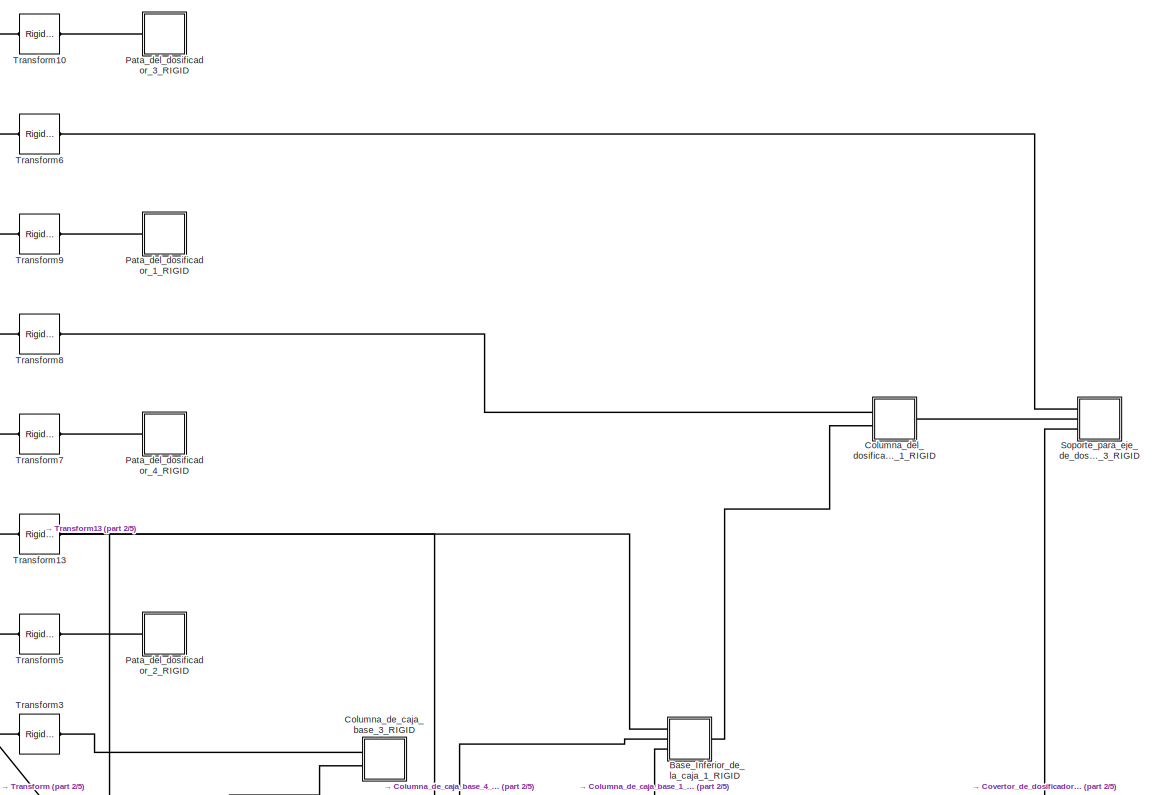
[diagram: root canvas - part 1/5, top center region]
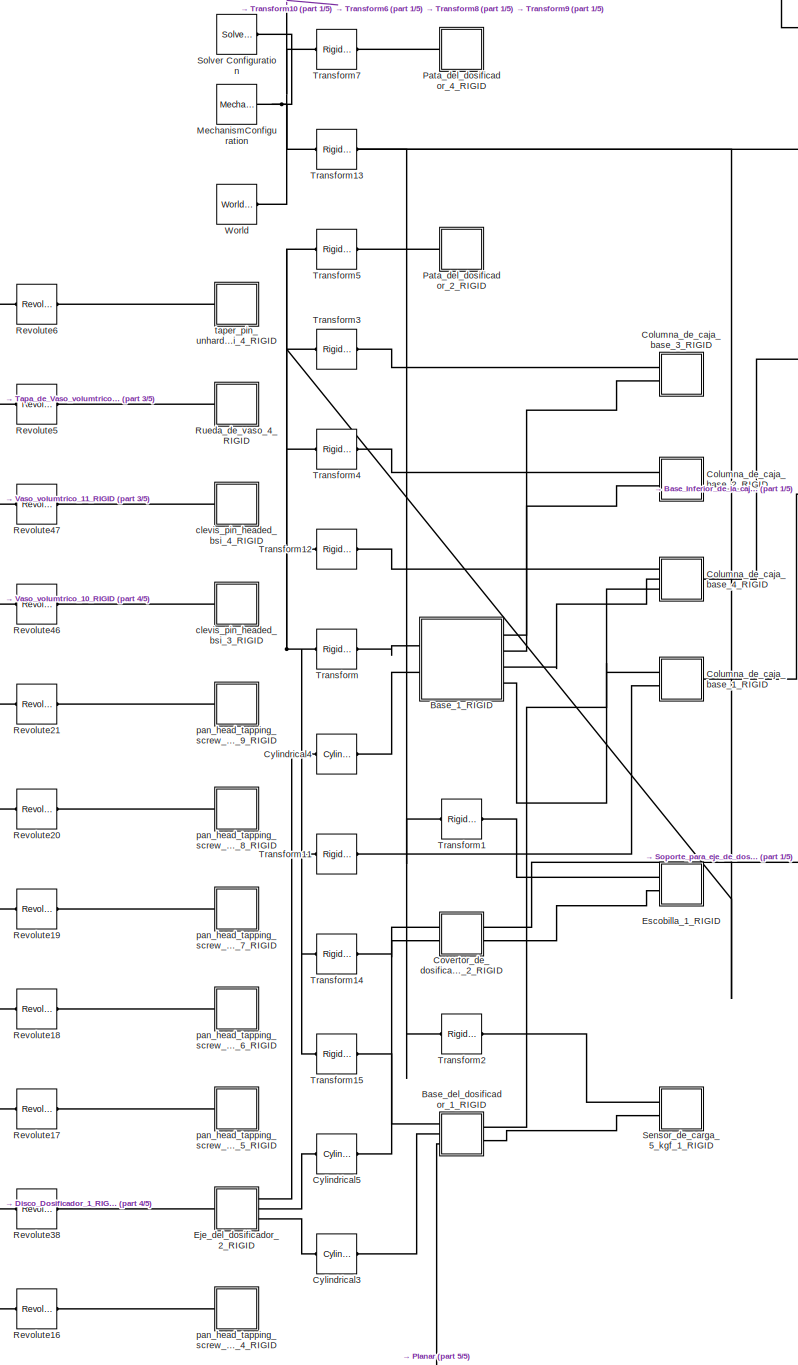
[diagram: root canvas - part 2/5, top center region]
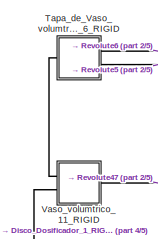
[diagram: root canvas - part 3/5, top left region]
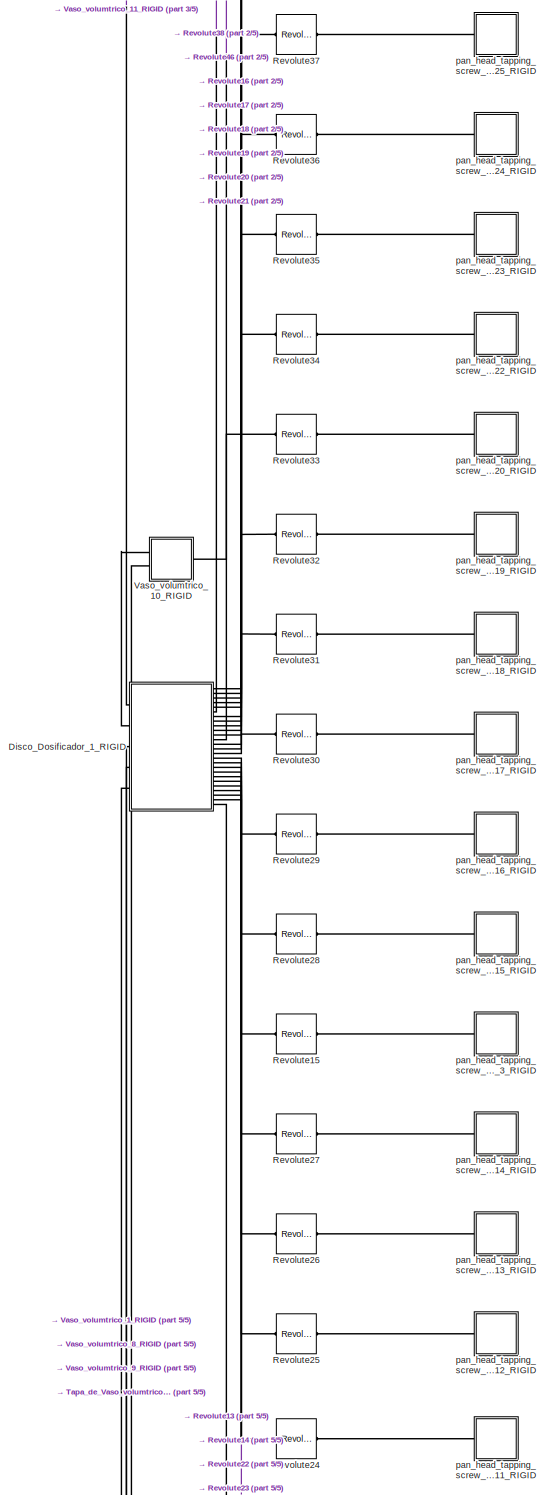
[diagram: root canvas - part 4/5, middle left region]
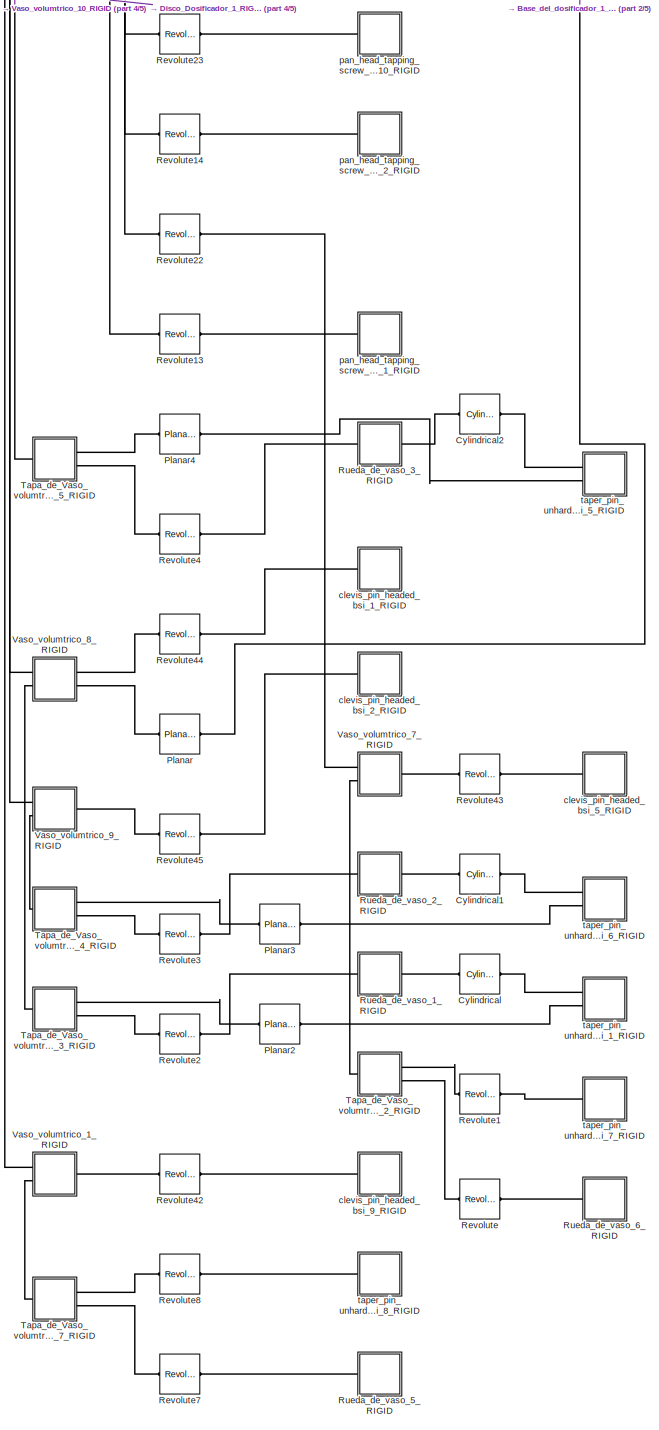
[diagram: root canvas - part 5/5, bottom left region]
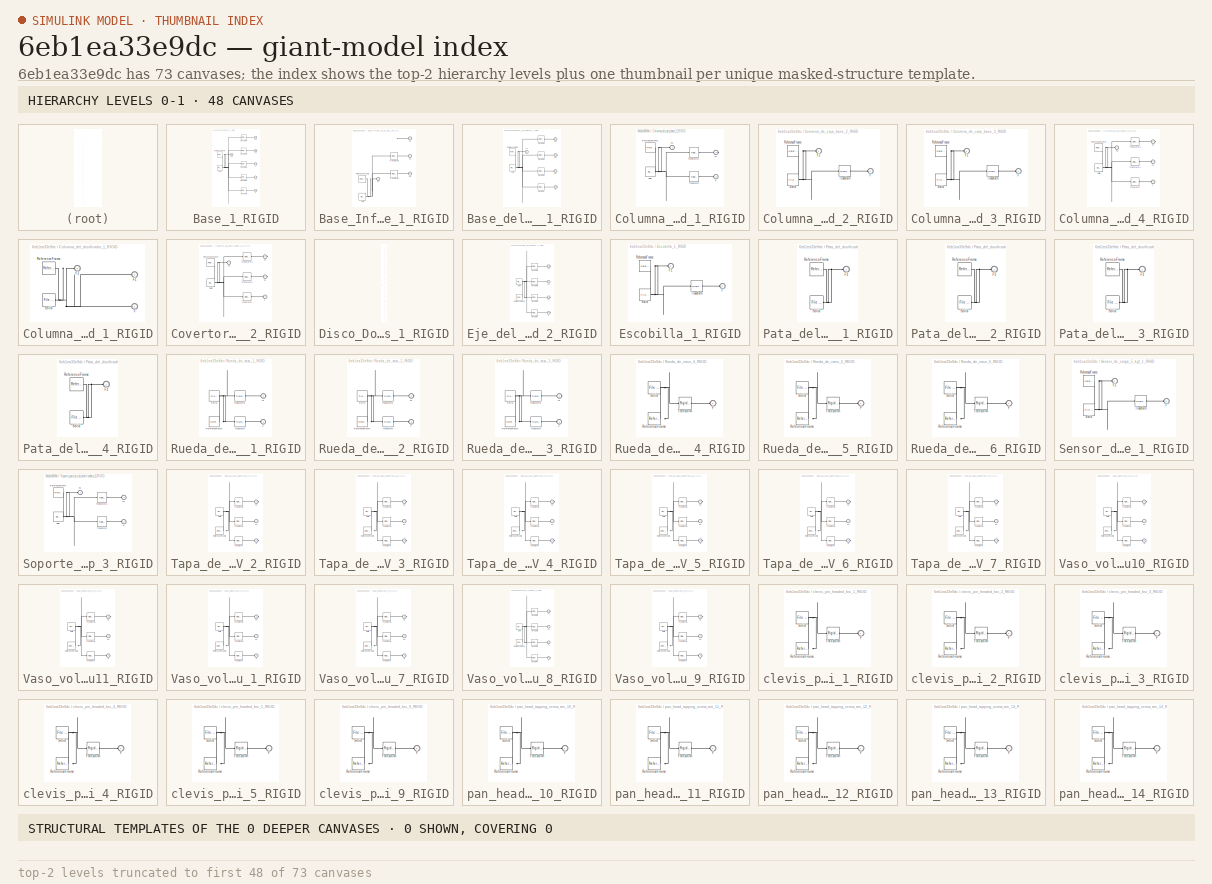
[diagram: thumbnail index - top-2 hierarchy levels (73 canvases (first 48 of 73 shown)) + 0 structural-template representatives of the remaining 0 canvases]
MODEL slx_6eb1ea33e9dc
KIND model
CONFIG AbsTol = auto
CONFIG EnableMultiTasking = off
CONFIG FixedStep = auto
CONFIG MaxStep = 1e-3
CONFIG MinStep = auto
CONFIG RelTol = 1e-3
CONFIG SampleTimeConstraint = Unconstrained
CONFIG SolverName = VariableStepAuto
CONFIG StartTime = 0.0
CONFIG StopTime = 10.0
WORKSPACE source: external: MATLAB File  (data not in archive)
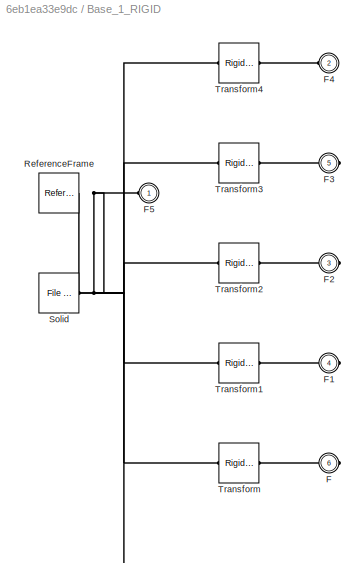
BLOCK [SubSystem] Base_1_RIGID
  Ports = [0, 0, 0, 0, 0, 2, 4]
  RequestExecContextInheritance = off
BLOCK [PMIOPort] Base_1_RIGID/F
  Port = 6
  Side = Right
BLOCK [PMIOPort] Base_1_RIGID/F1
  Port = 4
  Side = Right
BLOCK [PMIOPort] Base_1_RIGID/F2
  Port = 3
  Side = Right
BLOCK [PMIOPort] Base_1_RIGID/F3
  Port = 5
  Side = Right
BLOCK [PMIOPort] Base_1_RIGID/F4
  Port = 2
  Side = Left
BLOCK [PMIOPort] Base_1_RIGID/F5
  Side = Left
BLOCK [Reference] Base_1_RIGID/ReferenceFrame  REF=sm_lib/Frames and
Transforms/Reference
Frame
  Ports = [0, 0, 0, 0, 0, 0, 1]
  SourceBlock = sm_lib/Frames and\nTransforms/Reference\nFrame
  SourceProductBaseCode = MS
  SourceType = Reference\nFrame
BLOCK [Reference] Base_1_RIGID/Solid  REF=sm_lib/Body Elements/File Solid
  Ports = [0, 0, 0, 0, 0, 0, 1]
  SourceBlock = sm_lib/Body Elements/File Solid
  SourceProductBaseCode = MS
  SourceType = File Solid
BLOCK [Reference] Base_1_RIGID/Transform  REF=sm_lib/Frames and
Transforms/Rigid
Transform
  Ports = [0, 0, 0, 0, 0, 1, 1]
  SourceBlock = sm_lib/Frames and\nTransforms/Rigid\nTransform
  SourceProductBaseCode = MS
  SourceType = Rigid\nTransform
BLOCK [Reference] Base_1_RIGID/Transform1  REF=sm_lib/Frames and
Transforms/Rigid
Transform
  Ports = [0, 0, 0, 0, 0, 1, 1]
  SourceBlock = sm_lib/Frames and\nTransforms/Rigid\nTransform
  SourceProductBaseCode = MS
  SourceType = Rigid\nTransform
BLOCK [Reference] Base_1_RIGID/Transform2  REF=sm_lib/Frames and
Transforms/Rigid
Transform
  Ports = [0, 0, 0, 0, 0, 1, 1]
  SourceBlock = sm_lib/Frames and\nTransforms/Rigid\nTransform
  SourceProductBaseCode = MS
  SourceType = Rigid\nTransform
BLOCK [Reference] Base_1_RIGID/Transform3  REF=sm_lib/Frames and
Transforms/Rigid
Transform
  Ports = [0, 0, 0, 0, 0, 1, 1]
  SourceBlock = sm_lib/Frames and\nTransforms/Rigid\nTransform
  SourceProductBaseCode = MS
  SourceType = Rigid\nTransform
BLOCK [Reference] Base_1_RIGID/Transform4  REF=sm_lib/Frames and
Transforms/Rigid
Transform
  Ports = [0, 0, 0, 0, 0, 1, 1]
  SourceBlock = sm_lib/Frames and\nTransforms/Rigid\nTransform
  SourceProductBaseCode = MS
  SourceType = Rigid\nTransform
BLOCK [SubSystem] Base_Inferior_de_la_caja_1_RIGID
  Ports = [0, 0, 0, 0, 0, 3, 1]
  RequestExecContextInheritance = off
BLOCK [PMIOPort] Base_Inferior_de_la_caja_1_RIGID/F4
  Port = 3
  Side = Left
BLOCK [PMIOPort] Base_Inferior_de_la_caja_1_RIGID/F5
  Port = 2
  Side = Left
BLOCK [PMIOPort] Base_Inferior_de_la_caja_1_RIGID/F6
  Port = 4
  Side = Right
BLOCK [PMIOPort] Base_Inferior_de_la_caja_1_RIGID/F7
  Side = Left
BLOCK [Reference] Base_Inferior_de_la_caja_1_RIGID/ReferenceFrame  REF=sm_lib/Frames and
Transforms/Reference
Frame
  Ports = [0, 0, 0, 0, 0, 0, 1]
  SourceBlock = sm_lib/Frames and\nTransforms/Reference\nFrame
  SourceProductBaseCode = MS
  SourceType = Reference\nFrame
BLOCK [Reference] Base_Inferior_de_la_caja_1_RIGID/Solid  REF=sm_lib/Body Elements/File Solid
  Ports = [0, 0, 0, 0, 0, 0, 1]
  SourceBlock = sm_lib/Body Elements/File Solid
  SourceProductBaseCode = MS
  SourceType = File Solid
BLOCK [Reference] Base_Inferior_de_la_caja_1_RIGID/Transform4  REF=sm_lib/Frames and
Transforms/Rigid
Transform
  Ports = [0, 0, 0, 0, 0, 1, 1]
  SourceBlock = sm_lib/Frames and\nTransforms/Rigid\nTransform
  SourceProductBaseCode = MS
  SourceType = Rigid\nTransform
BLOCK [Reference] Base_Inferior_de_la_caja_1_RIGID/Transform5  REF=sm_lib/Frames and
Transforms/Rigid
Transform
  Ports = [0, 0, 0, 0, 0, 1, 1]
  SourceBlock = sm_lib/Frames and\nTransforms/Rigid\nTransform
  SourceProductBaseCode = MS
  SourceType = Rigid\nTransform
BLOCK [SubSystem] Base_del_dosificador_1_RIGID
  Ports = [0, 0, 0, 0, 0, 3, 2]
  RequestExecContextInheritance = off
BLOCK [PMIOPort] Base_del_dosificador_1_RIGID/F
  Port = 5
  Side = Right
BLOCK [PMIOPort] Base_del_dosificador_1_RIGID/F1
  Port = 3
  Side = Left
BLOCK [PMIOPort] Base_del_dosificador_1_RIGID/F2
  Port = 4
  Side = Right
BLOCK [PMIOPort] Base_del_dosificador_1_RIGID/F3
  Port = 2
  Side = Left
BLOCK [PMIOPort] Base_del_dosificador_1_RIGID/F4
  Side = Left
BLOCK [Reference] Base_del_dosificador_1_RIGID/ReferenceFrame  REF=sm_lib/Frames and
Transforms/Reference
Frame
  Ports = [0, 0, 0, 0, 0, 0, 1]
  SourceBlock = sm_lib/Frames and\nTransforms/Reference\nFrame
  SourceProductBaseCode = MS
  SourceType = Reference\nFrame
BLOCK [Reference] Base_del_dosificador_1_RIGID/Solid  REF=sm_lib/Body Elements/File Solid
  Ports = [0, 0, 0, 0, 0, 0, 1]
  SourceBlock = sm_lib/Body Elements/File Solid
  SourceProductBaseCode = MS
  SourceType = File Solid
BLOCK [Reference] Base_del_dosificador_1_RIGID/Transform  REF=sm_lib/Frames and
Transforms/Rigid
Transform
  Ports = [0, 0, 0, 0, 0, 1, 1]
  SourceBlock = sm_lib/Frames and\nTransforms/Rigid\nTransform
  SourceProductBaseCode = MS
  SourceType = Rigid\nTransform
BLOCK [Reference] Base_del_dosificador_1_RIGID/Transform1  REF=sm_lib/Frames and
Transforms/Rigid
Transform
  Ports = [0, 0, 0, 0, 0, 1, 1]
  SourceBlock = sm_lib/Frames and\nTransforms/Rigid\nTransform
  SourceProductBaseCode = MS
  SourceType = Rigid\nTransform
BLOCK [Reference] Base_del_dosificador_1_RIGID/Transform2  REF=sm_lib/Frames and
Transforms/Rigid
Transform
  Ports = [0, 0, 0, 0, 0, 1, 1]
  SourceBlock = sm_lib/Frames and\nTransforms/Rigid\nTransform
  SourceProductBaseCode = MS
  SourceType = Rigid\nTransform
BLOCK [Reference] Base_del_dosificador_1_RIGID/Transform3  REF=sm_lib/Frames and
Transforms/Rigid
Transform
  Ports = [0, 0, 0, 0, 0, 1, 1]
  SourceBlock = sm_lib/Frames and\nTransforms/Rigid\nTransform
  SourceProductBaseCode = MS
  SourceType = Rigid\nTransform
BLOCK [SubSystem] Columna_de_caja_base_1_RIGID
  Ports = [0, 0, 0, 0, 0, 2, 1]
  RequestExecContextInheritance = off
BLOCK [PMIOPort] Columna_de_caja_base_1_RIGID/F
  Side = Left
BLOCK [PMIOPort] Columna_de_caja_base_1_RIGID/F1
  Port = 3
  Side = Right
BLOCK [PMIOPort] Columna_de_caja_base_1_RIGID/F2
  Port = 2
  Side = Left
BLOCK [Reference] Columna_de_caja_base_1_RIGID/ReferenceFrame  REF=sm_lib/Frames and
Transforms/Reference
Frame
  Ports = [0, 0, 0, 0, 0, 0, 1]
  SourceBlock = sm_lib/Frames and\nTransforms/Reference\nFrame
  SourceProductBaseCode = MS
  SourceType = Reference\nFrame
BLOCK [Reference] Columna_de_caja_base_1_RIGID/Solid  REF=sm_lib/Body Elements/File Solid
  Ports = [0, 0, 0, 0, 0, 0, 1]
  SourceBlock = sm_lib/Body Elements/File Solid
  SourceProductBaseCode = MS
  SourceType = File Solid
BLOCK [Reference] Columna_de_caja_base_1_RIGID/Transform  REF=sm_lib/Frames and
Transforms/Rigid
Transform
  Ports = [0, 0, 0, 0, 0, 1, 1]
  SourceBlock = sm_lib/Frames and\nTransforms/Rigid\nTransform
  SourceProductBaseCode = MS
  SourceType = Rigid\nTransform
BLOCK [Reference] Columna_de_caja_base_1_RIGID/Transform1  REF=sm_lib/Frames and
Transforms/Rigid
Transform
  Ports = [0, 0, 0, 0, 0, 1, 1]
  SourceBlock = sm_lib/Frames and\nTransforms/Rigid\nTransform
  SourceProductBaseCode = MS
  SourceType = Rigid\nTransform
BLOCK [SubSystem] Columna_de_caja_base_2_RIGID
  Ports = [0, 0, 0, 0, 0, 2]
  RequestExecContextInheritance = off
BLOCK [PMIOPort] Columna_de_caja_base_2_RIGID/F
  Port = 2
  Side = Left
BLOCK [PMIOPort] Columna_de_caja_base_2_RIGID/F1
  Side = Left
BLOCK [Reference] Columna_de_caja_base_2_RIGID/ReferenceFrame  REF=sm_lib/Frames and
Transforms/Reference
Frame
  Ports = [0, 0, 0, 0, 0, 0, 1]
  SourceBlock = sm_lib/Frames and\nTransforms/Reference\nFrame
  SourceProductBaseCode = MS
  SourceType = Reference\nFrame
BLOCK [Reference] Columna_de_caja_base_2_RIGID/Solid  REF=sm_lib/Body Elements/File Solid
  Ports = [0, 0, 0, 0, 0, 0, 1]
  SourceBlock = sm_lib/Body Elements/File Solid
  SourceProductBaseCode = MS
  SourceType = File Solid
BLOCK [Reference] Columna_de_caja_base_2_RIGID/Transform  REF=sm_lib/Frames and
Transforms/Rigid
Transform
  Ports = [0, 0, 0, 0, 0, 1, 1]
  SourceBlock = sm_lib/Frames and\nTransforms/Rigid\nTransform
  SourceProductBaseCode = MS
  SourceType = Rigid\nTransform
BLOCK [SubSystem] Columna_de_caja_base_3_RIGID
  Ports = [0, 0, 0, 0, 0, 2]
  RequestExecContextInheritance = off
BLOCK [PMIOPort] Columna_de_caja_base_3_RIGID/F
  Port = 2
  Side = Left
BLOCK [PMIOPort] Columna_de_caja_base_3_RIGID/F1
  Side = Left
BLOCK [Reference] Columna_de_caja_base_3_RIGID/ReferenceFrame  REF=sm_lib/Frames and
Transforms/Reference
Frame
  Ports = [0, 0, 0, 0, 0, 0, 1]
  SourceBlock = sm_lib/Frames and\nTransforms/Reference\nFrame
  SourceProductBaseCode = MS
  SourceType = Reference\nFrame
BLOCK [Reference] Columna_de_caja_base_3_RIGID/Solid  REF=sm_lib/Body Elements/File Solid
  Ports = [0, 0, 0, 0, 0, 0, 1]
  SourceBlock = sm_lib/Body Elements/File Solid
  SourceProductBaseCode = MS
  SourceType = File Solid
BLOCK [Reference] Columna_de_caja_base_3_RIGID/Transform  REF=sm_lib/Frames and
Transforms/Rigid
Transform
  Ports = [0, 0, 0, 0, 0, 1, 1]
  SourceBlock = sm_lib/Frames and\nTransforms/Rigid\nTransform
  SourceProductBaseCode = MS
  SourceType = Rigid\nTransform
BLOCK [SubSystem] Columna_de_caja_base_4_RIGID
  Ports = [0, 0, 0, 0, 0, 3, 1]
  RequestExecContextInheritance = off
BLOCK [PMIOPort] Columna_de_caja_base_4_RIGID/F
  Port = 3
  Side = Left
BLOCK [PMIOPort] Columna_de_caja_base_4_RIGID/F1
  Port = 2
  Side = Left
BLOCK [PMIOPort] Columna_de_caja_base_4_RIGID/F2
  Port = 4
  Side = Right
BLOCK [PMIOPort] Columna_de_caja_base_4_RIGID/F3
  Side = Left
BLOCK [Reference] Columna_de_caja_base_4_RIGID/ReferenceFrame  REF=sm_lib/Frames and
Transforms/Reference
Frame
  Ports = [0, 0, 0, 0, 0, 0, 1]
  SourceBlock = sm_lib/Frames and\nTransforms/Reference\nFrame
  SourceProductBaseCode = MS
  SourceType = Reference\nFrame
BLOCK [Reference] Columna_de_caja_base_4_RIGID/Solid  REF=sm_lib/Body Elements/File Solid
  Ports = [0, 0, 0, 0, 0, 0, 1]
  SourceBlock = sm_lib/Body Elements/File Solid
  SourceProductBaseCode = MS
  SourceType = File Solid
BLOCK [Reference] Columna_de_caja_base_4_RIGID/Transform  REF=sm_lib/Frames and
Transforms/Rigid
Transform
  Ports = [0, 0, 0, 0, 0, 1, 1]
  SourceBlock = sm_lib/Frames and\nTransforms/Rigid\nTransform
  SourceProductBaseCode = MS
  SourceType = Rigid\nTransform
BLOCK [Reference] Columna_de_caja_base_4_RIGID/Transform1  REF=sm_lib/Frames and
Transforms/Rigid
Transform
  Ports = [0, 0, 0, 0, 0, 1, 1]
  SourceBlock = sm_lib/Frames and\nTransforms/Rigid\nTransform
  SourceProductBaseCode = MS
  SourceType = Rigid\nTransform
BLOCK [Reference] Columna_de_caja_base_4_RIGID/Transform2  REF=sm_lib/Frames and
Transforms/Rigid
Transform
  Ports = [0, 0, 0, 0, 0, 1, 1]
  SourceBlock = sm_lib/Frames and\nTransforms/Rigid\nTransform
  SourceProductBaseCode = MS
  SourceType = Rigid\nTransform
BLOCK [SubSystem] Columna_del_dosificador_1_RIGID
  Ports = [0, 0, 0, 0, 0, 2, 1]
  RequestExecContextInheritance = off
BLOCK [PMIOPort] Columna_del_dosificador_1_RIGID/F
  Port = 2
  Side = Left
BLOCK [PMIOPort] Columna_del_dosificador_1_RIGID/F1
  Port = 3
  Side = Right
BLOCK [PMIOPort] Columna_del_dosificador_1_RIGID/F2
  Side = Left
BLOCK [Reference] Columna_del_dosificador_1_RIGID/ReferenceFrame  REF=sm_lib/Frames and
Transforms/Reference
Frame
  Ports = [0, 0, 0, 0, 0, 0, 1]
  SourceBlock = sm_lib/Frames and\nTransforms/Reference\nFrame
  SourceProductBaseCode = MS
  SourceType = Reference\nFrame
BLOCK [Reference] Columna_del_dosificador_1_RIGID/Solid  REF=sm_lib/Body Elements/File Solid
  Ports = [0, 0, 0, 0, 0, 0, 1]
  SourceBlock = sm_lib/Body Elements/File Solid
  SourceProductBaseCode = MS
  SourceType = File Solid
BLOCK [SubSystem] Covertor_de_dosificador_2_RIGID
  Ports = [0, 0, 0, 0, 0, 2, 2]
  RequestExecContextInheritance = off
BLOCK [PMIOPort] Covertor_de_dosificador_2_RIGID/F
  Port = 2
  Side = Left
BLOCK [PMIOPort] Covertor_de_dosificador_2_RIGID/F1
  Port = 3
  Side = Right
BLOCK [PMIOPort] Covertor_de_dosificador_2_RIGID/F2
  Port = 4
  Side = Right
BLOCK [PMIOPort] Covertor_de_dosificador_2_RIGID/F3
  Side = Left
BLOCK [Reference] Covertor_de_dosificador_2_RIGID/ReferenceFrame  REF=sm_lib/Frames and
Transforms/Reference
Frame
  Ports = [0, 0, 0, 0, 0, 0, 1]
  SourceBlock = sm_lib/Frames and\nTransforms/Reference\nFrame
  SourceProductBaseCode = MS
  SourceType = Reference\nFrame
BLOCK [Reference] Covertor_de_dosificador_2_RIGID/Solid  REF=sm_lib/Body Elements/File Solid
  Ports = [0, 0, 0, 0, 0, 0, 1]
  SourceBlock = sm_lib/Body Elements/File Solid
  SourceProductBaseCode = MS
  SourceType = File Solid
BLOCK [Reference] Covertor_de_dosificador_2_RIGID/Transform  REF=sm_lib/Frames and
Transforms/Rigid
Transform
  Ports = [0, 0, 0, 0, 0, 1, 1]
  SourceBlock = sm_lib/Frames and\nTransforms/Rigid\nTransform
  SourceProductBaseCode = MS
  SourceType = Rigid\nTransform
BLOCK [Reference] Covertor_de_dosificador_2_RIGID/Transform1  REF=sm_lib/Frames and
Transforms/Rigid
Transform
  Ports = [0, 0, 0, 0, 0, 1, 1]
  SourceBlock = sm_lib/Frames and\nTransforms/Rigid\nTransform
  SourceProductBaseCode = MS
  SourceType = Rigid\nTransform
BLOCK [Reference] Covertor_de_dosificador_2_RIGID/Transform2  REF=sm_lib/Frames and
Transforms/Rigid
Transform
  Ports = [0, 0, 0, 0, 0, 1, 1]
  SourceBlock = sm_lib/Frames and\nTransforms/Rigid\nTransform
  SourceProductBaseCode = MS
  SourceType = Rigid\nTransform
BLOCK [Reference] Cylindrical  REF=sm_lib/Joints/Cylindrical
Joint
  Ports = [0, 0, 0, 0, 0, 1, 1]
  SourceBlock = sm_lib/Joints/Cylindrical\nJoint
  SourceProductBaseCode = MS
  SourceType = Cylindrical\nJoint
BLOCK [Reference] Cylindrical1  REF=sm_lib/Joints/Cylindrical
Joint
  Ports = [0, 0, 0, 0, 0, 1, 1]
  SourceBlock = sm_lib/Joints/Cylindrical\nJoint
  SourceProductBaseCode = MS
  SourceType = Cylindrical\nJoint
BLOCK [Reference] Cylindrical2  REF=sm_lib/Joints/Cylindrical
Joint
  Ports = [0, 0, 0, 0, 0, 1, 1]
  SourceBlock = sm_lib/Joints/Cylindrical\nJoint
  SourceProductBaseCode = MS
  SourceType = Cylindrical\nJoint
BLOCK [Reference] Cylindrical3  REF=sm_lib/Joints/Cylindrical
Joint
  Ports = [0, 0, 0, 0, 0, 1, 1]
  SourceBlock = sm_lib/Joints/Cylindrical\nJoint
  SourceProductBaseCode = MS
  SourceType = Cylindrical\nJoint
BLOCK [Reference] Cylindrical4  REF=sm_lib/Joints/Cylindrical
Joint
  Ports = [0, 0, 0, 0, 0, 1, 1]
  SourceBlock = sm_lib/Joints/Cylindrical\nJoint
  SourceProductBaseCode = MS
  SourceType = Cylindrical\nJoint
BLOCK [Reference] Cylindrical5  REF=sm_lib/Joints/Cylindrical
Joint
  Ports = [0, 0, 0, 0, 0, 1, 1]
  SourceBlock = sm_lib/Joints/Cylindrical\nJoint
  SourceProductBaseCode = MS
  SourceType = Cylindrical\nJoint
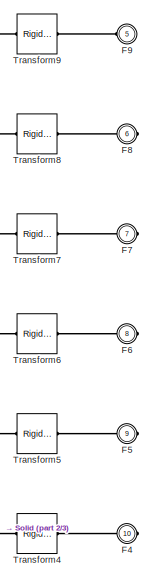
[diagram: Disco_Dosificador_1_RIGID - part 1/3, top right region]
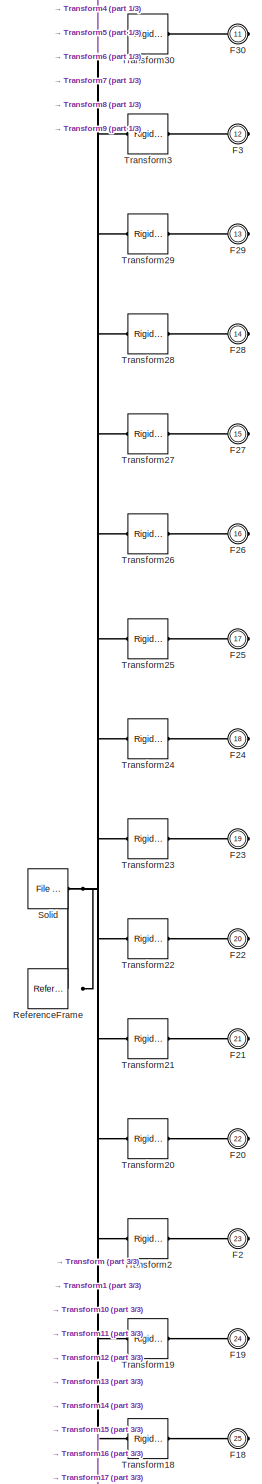
[diagram: Disco_Dosificador_1_RIGID - part 2/3, full width, middle band]
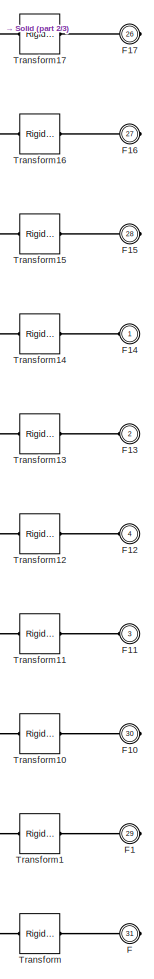
[diagram: Disco_Dosificador_1_RIGID - part 3/3, bottom right region]
BLOCK [SubSystem] Disco_Dosificador_1_RIGID
  Ports = [0, 0, 0, 0, 0, 5, 26]
  RequestExecContextInheritance = off
BLOCK [PMIOPort] Disco_Dosificador_1_RIGID/F
  Port = 31
  Side = Right
BLOCK [PMIOPort] Disco_Dosificador_1_RIGID/F1
  Port = 29
  Side = Right
BLOCK [PMIOPort] Disco_Dosificador_1_RIGID/F10
  Port = 30
  Side = Right
BLOCK [PMIOPort] Disco_Dosificador_1_RIGID/F11
  Port = 3
  Side = Left
BLOCK [PMIOPort] Disco_Dosificador_1_RIGID/F12
  Port = 4
  Side = Left
BLOCK [PMIOPort] Disco_Dosificador_1_RIGID/F13
  Port = 2
  Side = Left
BLOCK [PMIOPort] Disco_Dosificador_1_RIGID/F14
  Side = Left
BLOCK [PMIOPort] Disco_Dosificador_1_RIGID/F15
  Port = 28
  Side = Right
BLOCK [PMIOPort] Disco_Dosificador_1_RIGID/F16
  Port = 27
  Side = Right
BLOCK [PMIOPort] Disco_Dosificador_1_RIGID/F17
  Port = 26
  Side = Right
BLOCK [PMIOPort] Disco_Dosificador_1_RIGID/F18
  Port = 25
  Side = Right
BLOCK [PMIOPort] Disco_Dosificador_1_RIGID/F19
  Port = 24
  Side = Right
BLOCK [PMIOPort] Disco_Dosificador_1_RIGID/F2
  Port = 23
  Side = Right
BLOCK [PMIOPort] Disco_Dosificador_1_RIGID/F20
  Port = 22
  Side = Right
BLOCK [PMIOPort] Disco_Dosificador_1_RIGID/F21
  Port = 21
  Side = Right
BLOCK [PMIOPort] Disco_Dosificador_1_RIGID/F22
  Port = 20
  Side = Right
BLOCK [PMIOPort] Disco_Dosificador_1_RIGID/F23
  Port = 19
  Side = Right
BLOCK [PMIOPort] Disco_Dosificador_1_RIGID/F24
  Port = 18
  Side = Right
BLOCK [PMIOPort] Disco_Dosificador_1_RIGID/F25
  Port = 17
  Side = Right
BLOCK [PMIOPort] Disco_Dosificador_1_RIGID/F26
  Port = 16
  Side = Right
BLOCK [PMIOPort] Disco_Dosificador_1_RIGID/F27
  Port = 15
  Side = Right
BLOCK [PMIOPort] Disco_Dosificador_1_RIGID/F28
  Port = 14
  Side = Right
BLOCK [PMIOPort] Disco_Dosificador_1_RIGID/F29
  Port = 13
  Side = Right
BLOCK [PMIOPort] Disco_Dosificador_1_RIGID/F3
  Port = 12
  Side = Right
BLOCK [PMIOPort] Disco_Dosificador_1_RIGID/F30
  Port = 11
  Side = Right
BLOCK [PMIOPort] Disco_Dosificador_1_RIGID/F4
  Port = 10
  Side = Right
BLOCK [PMIOPort] Disco_Dosificador_1_RIGID/F5
  Port = 9
  Side = Right
BLOCK [PMIOPort] Disco_Dosificador_1_RIGID/F6
  Port = 8
  Side = Right
BLOCK [PMIOPort] Disco_Dosificador_1_RIGID/F7
  Port = 7
  Side = Right
BLOCK [PMIOPort] Disco_Dosificador_1_RIGID/F8
  Port = 6
  Side = Right
BLOCK [PMIOPort] Disco_Dosificador_1_RIGID/F9
  Port = 5
  Side = Left
BLOCK [Reference] Disco_Dosificador_1_RIGID/ReferenceFrame  REF=sm_lib/Frames and
Transforms/Reference
Frame
  Ports = [0, 0, 0, 0, 0, 0, 1]
  SourceBlock = sm_lib/Frames and\nTransforms/Reference\nFrame
  SourceProductBaseCode = MS
  SourceType = Reference\nFrame
BLOCK [Reference] Disco_Dosificador_1_RIGID/Solid  REF=sm_lib/Body Elements/File Solid
  Ports = [0, 0, 0, 0, 0, 0, 1]
  SourceBlock = sm_lib/Body Elements/File Solid
  SourceProductBaseCode = MS
  SourceType = File Solid
BLOCK [Reference] Disco_Dosificador_1_RIGID/Transform  REF=sm_lib/Frames and
Transforms/Rigid
Transform
  Ports = [0, 0, 0, 0, 0, 1, 1]
  SourceBlock = sm_lib/Frames and\nTransforms/Rigid\nTransform
  SourceProductBaseCode = MS
  SourceType = Rigid\nTransform
BLOCK [Reference] Disco_Dosificador_1_RIGID/Transform1  REF=sm_lib/Frames and
Transforms/Rigid
Transform
  Ports = [0, 0, 0, 0, 0, 1, 1]
  SourceBlock = sm_lib/Frames and\nTransforms/Rigid\nTransform
  SourceProductBaseCode = MS
  SourceType = Rigid\nTransform
BLOCK [Reference] Disco_Dosificador_1_RIGID/Transform10  REF=sm_lib/Frames and
Transforms/Rigid
Transform
  Ports = [0, 0, 0, 0, 0, 1, 1]
  SourceBlock = sm_lib/Frames and\nTransforms/Rigid\nTransform
  SourceProductBaseCode = MS
  SourceType = Rigid\nTransform
BLOCK [Reference] Disco_Dosificador_1_RIGID/Transform11  REF=sm_lib/Frames and
Transforms/Rigid
Transform
  Ports = [0, 0, 0, 0, 0, 1, 1]
  SourceBlock = sm_lib/Frames and\nTransforms/Rigid\nTransform
  SourceProductBaseCode = MS
  SourceType = Rigid\nTransform
BLOCK [Reference] Disco_Dosificador_1_RIGID/Transform12  REF=sm_lib/Frames and
Transforms/Rigid
Transform
  Ports = [0, 0, 0, 0, 0, 1, 1]
  SourceBlock = sm_lib/Frames and\nTransforms/Rigid\nTransform
  SourceProductBaseCode = MS
  SourceType = Rigid\nTransform
BLOCK [Reference] Disco_Dosificador_1_RIGID/Transform13  REF=sm_lib/Frames and
Transforms/Rigid
Transform
  Ports = [0, 0, 0, 0, 0, 1, 1]
  SourceBlock = sm_lib/Frames and\nTransforms/Rigid\nTransform
  SourceProductBaseCode = MS
  SourceType = Rigid\nTransform
BLOCK [Reference] Disco_Dosificador_1_RIGID/Transform14  REF=sm_lib/Frames and
Transforms/Rigid
Transform
  Ports = [0, 0, 0, 0, 0, 1, 1]
  SourceBlock = sm_lib/Frames and\nTransforms/Rigid\nTransform
  SourceProductBaseCode = MS
  SourceType = Rigid\nTransform
BLOCK [Reference] Disco_Dosificador_1_RIGID/Transform15  REF=sm_lib/Frames and
Transforms/Rigid
Transform
  Ports = [0, 0, 0, 0, 0, 1, 1]
  SourceBlock = sm_lib/Frames and\nTransforms/Rigid\nTransform
  SourceProductBaseCode = MS
  SourceType = Rigid\nTransform
BLOCK [Reference] Disco_Dosificador_1_RIGID/Transform16  REF=sm_lib/Frames and
Transforms/Rigid
Transform
  Ports = [0, 0, 0, 0, 0, 1, 1]
  SourceBlock = sm_lib/Frames and\nTransforms/Rigid\nTransform
  SourceProductBaseCode = MS
  SourceType = Rigid\nTransform
BLOCK [Reference] Disco_Dosificador_1_RIGID/Transform17  REF=sm_lib/Frames and
Transforms/Rigid
Transform
  Ports = [0, 0, 0, 0, 0, 1, 1]
  SourceBlock = sm_lib/Frames and\nTransforms/Rigid\nTransform
  SourceProductBaseCode = MS
  SourceType = Rigid\nTransform
BLOCK [Reference] Disco_Dosificador_1_RIGID/Transform18  REF=sm_lib/Frames and
Transforms/Rigid
Transform
  Ports = [0, 0, 0, 0, 0, 1, 1]
  SourceBlock = sm_lib/Frames and\nTransforms/Rigid\nTransform
  SourceProductBaseCode = MS
  SourceType = Rigid\nTransform
BLOCK [Reference] Disco_Dosificador_1_RIGID/Transform19  REF=sm_lib/Frames and
Transforms/Rigid
Transform
  Ports = [0, 0, 0, 0, 0, 1, 1]
  SourceBlock = sm_lib/Frames and\nTransforms/Rigid\nTransform
  SourceProductBaseCode = MS
  SourceType = Rigid\nTransform
BLOCK [Reference] Disco_Dosificador_1_RIGID/Transform2  REF=sm_lib/Frames and
Transforms/Rigid
Transform
  Ports = [0, 0, 0, 0, 0, 1, 1]
  SourceBlock = sm_lib/Frames and\nTransforms/Rigid\nTransform
  SourceProductBaseCode = MS
  SourceType = Rigid\nTransform
BLOCK [Reference] Disco_Dosificador_1_RIGID/Transform20  REF=sm_lib/Frames and
Transforms/Rigid
Transform
  Ports = [0, 0, 0, 0, 0, 1, 1]
  SourceBlock = sm_lib/Frames and\nTransforms/Rigid\nTransform
  SourceProductBaseCode = MS
  SourceType = Rigid\nTransform
BLOCK [Reference] Disco_Dosificador_1_RIGID/Transform21  REF=sm_lib/Frames and
Transforms/Rigid
Transform
  Ports = [0, 0, 0, 0, 0, 1, 1]
  SourceBlock = sm_lib/Frames and\nTransforms/Rigid\nTransform
  SourceProductBaseCode = MS
  SourceType = Rigid\nTransform
BLOCK [Reference] Disco_Dosificador_1_RIGID/Transform22  REF=sm_lib/Frames and
Transforms/Rigid
Transform
  Ports = [0, 0, 0, 0, 0, 1, 1]
  SourceBlock = sm_lib/Frames and\nTransforms/Rigid\nTransform
  SourceProductBaseCode = MS
  SourceType = Rigid\nTransform
BLOCK [Reference] Disco_Dosificador_1_RIGID/Transform23  REF=sm_lib/Frames and
Transforms/Rigid
Transform
  Ports = [0, 0, 0, 0, 0, 1, 1]
  SourceBlock = sm_lib/Frames and\nTransforms/Rigid\nTransform
  SourceProductBaseCode = MS
  SourceType = Rigid\nTransform
BLOCK [Reference] Disco_Dosificador_1_RIGID/Transform24  REF=sm_lib/Frames and
Transforms/Rigid
Transform
  Ports = [0, 0, 0, 0, 0, 1, 1]
  SourceBlock = sm_lib/Frames and\nTransforms/Rigid\nTransform
  SourceProductBaseCode = MS
  SourceType = Rigid\nTransform
BLOCK [Reference] Disco_Dosificador_1_RIGID/Transform25  REF=sm_lib/Frames and
Transforms/Rigid
Transform
  Ports = [0, 0, 0, 0, 0, 1, 1]
  SourceBlock = sm_lib/Frames and\nTransforms/Rigid\nTransform
  SourceProductBaseCode = MS
  SourceType = Rigid\nTransform
BLOCK [Reference] Disco_Dosificador_1_RIGID/Transform26  REF=sm_lib/Frames and
Transforms/Rigid
Transform
  Ports = [0, 0, 0, 0, 0, 1, 1]
  SourceBlock = sm_lib/Frames and\nTransforms/Rigid\nTransform
  SourceProductBaseCode = MS
  SourceType = Rigid\nTransform
BLOCK [Reference] Disco_Dosificador_1_RIGID/Transform27  REF=sm_lib/Frames and
Transforms/Rigid
Transform
  Ports = [0, 0, 0, 0, 0, 1, 1]
  SourceBlock = sm_lib/Frames and\nTransforms/Rigid\nTransform
  SourceProductBaseCode = MS
  SourceType = Rigid\nTransform
BLOCK [Reference] Disco_Dosificador_1_RIGID/Transform28  REF=sm_lib/Frames and
Transforms/Rigid
Transform
  Ports = [0, 0, 0, 0, 0, 1, 1]
  SourceBlock = sm_lib/Frames and\nTransforms/Rigid\nTransform
  SourceProductBaseCode = MS
  SourceType = Rigid\nTransform
BLOCK [Reference] Disco_Dosificador_1_RIGID/Transform29  REF=sm_lib/Frames and
Transforms/Rigid
Transform
  Ports = [0, 0, 0, 0, 0, 1, 1]
  SourceBlock = sm_lib/Frames and\nTransforms/Rigid\nTransform
  SourceProductBaseCode = MS
  SourceType = Rigid\nTransform
BLOCK [Reference] Disco_Dosificador_1_RIGID/Transform3  REF=sm_lib/Frames and
Transforms/Rigid
Transform
  Ports = [0, 0, 0, 0, 0, 1, 1]
  SourceBlock = sm_lib/Frames and\nTransforms/Rigid\nTransform
  SourceProductBaseCode = MS
  SourceType = Rigid\nTransform
BLOCK [Reference] Disco_Dosificador_1_RIGID/Transform30  REF=sm_lib/Frames and
Transforms/Rigid
Transform
  Ports = [0, 0, 0, 0, 0, 1, 1]
  SourceBlock = sm_lib/Frames and\nTransforms/Rigid\nTransform
  SourceProductBaseCode = MS
  SourceType = Rigid\nTransform
BLOCK [Reference] Disco_Dosificador_1_RIGID/Transform4  REF=sm_lib/Frames and
Transforms/Rigid
Transform
  Ports = [0, 0, 0, 0, 0, 1, 1]
  SourceBlock = sm_lib/Frames and\nTransforms/Rigid\nTransform
  SourceProductBaseCode = MS
  SourceType = Rigid\nTransform
BLOCK [Reference] Disco_Dosificador_1_RIGID/Transform5  REF=sm_lib/Frames and
Transforms/Rigid
Transform
  Ports = [0, 0, 0, 0, 0, 1, 1]
  SourceBlock = sm_lib/Frames and\nTransforms/Rigid\nTransform
  SourceProductBaseCode = MS
  SourceType = Rigid\nTransform
BLOCK [Reference] Disco_Dosificador_1_RIGID/Transform6  REF=sm_lib/Frames and
Transforms/Rigid
Transform
  Ports = [0, 0, 0, 0, 0, 1, 1]
  SourceBlock = sm_lib/Frames and\nTransforms/Rigid\nTransform
  SourceProductBaseCode = MS
  SourceType = Rigid\nTransform
BLOCK [Reference] Disco_Dosificador_1_RIGID/Transform7  REF=sm_lib/Frames and
Transforms/Rigid
Transform
  Ports = [0, 0, 0, 0, 0, 1, 1]
  SourceBlock = sm_lib/Frames and\nTransforms/Rigid\nTransform
  SourceProductBaseCode = MS
  SourceType = Rigid\nTransform
BLOCK [Reference] Disco_Dosificador_1_RIGID/Transform8  REF=sm_lib/Frames and
Transforms/Rigid
Transform
  Ports = [0, 0, 0, 0, 0, 1, 1]
  SourceBlock = sm_lib/Frames and\nTransforms/Rigid\nTransform
  SourceProductBaseCode = MS
  SourceType = Rigid\nTransform
BLOCK [Reference] Disco_Dosificador_1_RIGID/Transform9  REF=sm_lib/Frames and
Transforms/Rigid
Transform
  Ports = [0, 0, 0, 0, 0, 1, 1]
  SourceBlock = sm_lib/Frames and\nTransforms/Rigid\nTransform
  SourceProductBaseCode = MS
  SourceType = Rigid\nTransform
BLOCK [SubSystem] Eje_del_dosificador_2_RIGID
  Ports = [0, 0, 0, 0, 0, 1, 3]
  RequestExecContextInheritance = off
BLOCK [PMIOPort] Eje_del_dosificador_2_RIGID/F
  Port = 4
  Side = Right
BLOCK [PMIOPort] Eje_del_dosificador_2_RIGID/F1
  Port = 2
  Side = Right
BLOCK [PMIOPort] Eje_del_dosificador_2_RIGID/F2
  Side = Left
BLOCK [PMIOPort] Eje_del_dosificador_2_RIGID/F3
  Port = 3
  Side = Right
BLOCK [Reference] Eje_del_dosificador_2_RIGID/ReferenceFrame  REF=sm_lib/Frames and
Transforms/Reference
Frame
  Ports = [0, 0, 0, 0, 0, 0, 1]
  SourceBlock = sm_lib/Frames and\nTransforms/Reference\nFrame
  SourceProductBaseCode = MS
  SourceType = Reference\nFrame
BLOCK [Reference] Eje_del_dosificador_2_RIGID/Solid  REF=sm_lib/Body Elements/File Solid
  Ports = [0, 0, 0, 0, 0, 0, 1]
  SourceBlock = sm_lib/Body Elements/File Solid
  SourceProductBaseCode = MS
  SourceType = File Solid
BLOCK [Reference] Eje_del_dosificador_2_RIGID/Transform  REF=sm_lib/Frames and
Transforms/Rigid
Transform
  Ports = [0, 0, 0, 0, 0, 1, 1]
  SourceBlock = sm_lib/Frames and\nTransforms/Rigid\nTransform
  SourceProductBaseCode = MS
  SourceType = Rigid\nTransform
BLOCK [Reference] Eje_del_dosificador_2_RIGID/Transform1  REF=sm_lib/Frames and
Transforms/Rigid
Transform
  Ports = [0, 0, 0, 0, 0, 1, 1]
  SourceBlock = sm_lib/Frames and\nTransforms/Rigid\nTransform
  SourceProductBaseCode = MS
  SourceType = Rigid\nTransform
BLOCK [Reference] Eje_del_dosificador_2_RIGID/Transform2  REF=sm_lib/Frames and
Transforms/Rigid
Transform
  Ports = [0, 0, 0, 0, 0, 1, 1]
  SourceBlock = sm_lib/Frames and\nTransforms/Rigid\nTransform
  SourceProductBaseCode = MS
  SourceType = Rigid\nTransform
BLOCK [Reference] Eje_del_dosificador_2_RIGID/Transform3  REF=sm_lib/Frames and
Transforms/Rigid
Transform
  Ports = [0, 0, 0, 0, 0, 1, 1]
  SourceBlock = sm_lib/Frames and\nTransforms/Rigid\nTransform
  SourceProductBaseCode = MS
  SourceType = Rigid\nTransform
BLOCK [SubSystem] Escobilla_1_RIGID
  Ports = [0, 0, 0, 0, 0, 2]
  RequestExecContextInheritance = off
BLOCK [PMIOPort] Escobilla_1_RIGID/F
  Port = 2
  Side = Left
BLOCK [PMIOPort] Escobilla_1_RIGID/F1
  Side = Left
BLOCK [Reference] Escobilla_1_RIGID/ReferenceFrame  REF=sm_lib/Frames and
Transforms/Reference
Frame
  Ports = [0, 0, 0, 0, 0, 0, 1]
  SourceBlock = sm_lib/Frames and\nTransforms/Reference\nFrame
  SourceProductBaseCode = MS
  SourceType = Reference\nFrame
BLOCK [Reference] Escobilla_1_RIGID/Solid  REF=sm_lib/Body Elements/File Solid
  Ports = [0, 0, 0, 0, 0, 0, 1]
  SourceBlock = sm_lib/Body Elements/File Solid
  SourceProductBaseCode = MS
  SourceType = File Solid
BLOCK [Reference] Escobilla_1_RIGID/Transform  REF=sm_lib/Frames and
Transforms/Rigid
Transform
  Ports = [0, 0, 0, 0, 0, 1, 1]
  SourceBlock = sm_lib/Frames and\nTransforms/Rigid\nTransform
  SourceProductBaseCode = MS
  SourceType = Rigid\nTransform
BLOCK [Reference] MechanismConfiguration  REF=sm_lib/Utilities/Mechanism
Configuration
  Ports = [0, 0, 0, 0, 0, 0, 1]
  SourceBlock = sm_lib/Utilities/Mechanism\nConfiguration
  SourceProductBaseCode = MS
  SourceType = Mechanism\nConfiguration
BLOCK [SubSystem] Pata_del_dosificador_1_RIGID
  Ports = [0, 0, 0, 0, 0, 1]
  RequestExecContextInheritance = off
BLOCK [PMIOPort] Pata_del_dosificador_1_RIGID/F1
  Side = Left
BLOCK [Reference] Pata_del_dosificador_1_RIGID/ReferenceFrame  REF=sm_lib/Frames and
Transforms/Reference
Frame
  Ports = [0, 0, 0, 0, 0, 0, 1]
  SourceBlock = sm_lib/Frames and\nTransforms/Reference\nFrame
  SourceProductBaseCode = MS
  SourceType = Reference\nFrame
BLOCK [Reference] Pata_del_dosificador_1_RIGID/Solid  REF=sm_lib/Body Elements/File Solid
  Ports = [0, 0, 0, 0, 0, 0, 1]
  SourceBlock = sm_lib/Body Elements/File Solid
  SourceProductBaseCode = MS
  SourceType = File Solid
BLOCK [SubSystem] Pata_del_dosificador_2_RIGID
  Ports = [0, 0, 0, 0, 0, 1]
  RequestExecContextInheritance = off
BLOCK [PMIOPort] Pata_del_dosificador_2_RIGID/F1
  Side = Left
BLOCK [Reference] Pata_del_dosificador_2_RIGID/ReferenceFrame  REF=sm_lib/Frames and
Transforms/Reference
Frame
  Ports = [0, 0, 0, 0, 0, 0, 1]
  SourceBlock = sm_lib/Frames and\nTransforms/Reference\nFrame
  SourceProductBaseCode = MS
  SourceType = Reference\nFrame
BLOCK [Reference] Pata_del_dosificador_2_RIGID/Solid  REF=sm_lib/Body Elements/File Solid
  Ports = [0, 0, 0, 0, 0, 0, 1]
  SourceBlock = sm_lib/Body Elements/File Solid
  SourceProductBaseCode = MS
  SourceType = File Solid
BLOCK [SubSystem] Pata_del_dosificador_3_RIGID
  Ports = [0, 0, 0, 0, 0, 1]
  RequestExecContextInheritance = off
BLOCK [PMIOPort] Pata_del_dosificador_3_RIGID/F1
  Side = Left
BLOCK [Reference] Pata_del_dosificador_3_RIGID/ReferenceFrame  REF=sm_lib/Frames and
Transforms/Reference
Frame
  Ports = [0, 0, 0, 0, 0, 0, 1]
  SourceBlock = sm_lib/Frames and\nTransforms/Reference\nFrame
  SourceProductBaseCode = MS
  SourceType = Reference\nFrame
BLOCK [Reference] Pata_del_dosificador_3_RIGID/Solid  REF=sm_lib/Body Elements/File Solid
  Ports = [0, 0, 0, 0, 0, 0, 1]
  SourceBlock = sm_lib/Body Elements/File Solid
  SourceProductBaseCode = MS
  SourceType = File Solid
BLOCK [SubSystem] Pata_del_dosificador_4_RIGID
  Ports = [0, 0, 0, 0, 0, 1]
  RequestExecContextInheritance = off
BLOCK [PMIOPort] Pata_del_dosificador_4_RIGID/F1
  Side = Left
BLOCK [Reference] Pata_del_dosificador_4_RIGID/ReferenceFrame  REF=sm_lib/Frames and
Transforms/Reference
Frame
  Ports = [0, 0, 0, 0, 0, 0, 1]
  SourceBlock = sm_lib/Frames and\nTransforms/Reference\nFrame
  SourceProductBaseCode = MS
  SourceType = Reference\nFrame
BLOCK [Reference] Pata_del_dosificador_4_RIGID/Solid  REF=sm_lib/Body Elements/File Solid
  Ports = [0, 0, 0, 0, 0, 0, 1]
  SourceBlock = sm_lib/Body Elements/File Solid
  SourceProductBaseCode = MS
  SourceType = File Solid
BLOCK [Reference] Planar  REF=sm_lib/Joints/Planar Joint
  Ports = [0, 0, 0, 0, 0, 1, 1]
  SourceBlock = sm_lib/Joints/Planar Joint
  SourceProductBaseCode = MS
  SourceType = Planar Joint
BLOCK [Reference] Planar2  REF=sm_lib/Joints/Planar Joint
  Ports = [0, 0, 0, 0, 0, 1, 1]
  SourceBlock = sm_lib/Joints/Planar Joint
  SourceProductBaseCode = MS
  SourceType = Planar Joint
BLOCK [Reference] Planar3  REF=sm_lib/Joints/Planar Joint
  Ports = [0, 0, 0, 0, 0, 1, 1]
  SourceBlock = sm_lib/Joints/Planar Joint
  SourceProductBaseCode = MS
  SourceType = Planar Joint
BLOCK [Reference] Planar4  REF=sm_lib/Joints/Planar Joint
  Ports = [0, 0, 0, 0, 0, 1, 1]
  SourceBlock = sm_lib/Joints/Planar Joint
  SourceProductBaseCode = MS
  SourceType = Planar Joint
BLOCK [Reference] Revolute  REF=sm_lib/Joints/Revolute Joint
  Ports = [0, 0, 0, 0, 0, 1, 1]
  SourceBlock = sm_lib/Joints/Revolute Joint
  SourceProductBaseCode = MS
  SourceType = Revolute Joint
BLOCK [Reference] Revolute1  REF=sm_lib/Joints/Revolute Joint
  Ports = [0, 0, 0, 0, 0, 1, 1]
  SourceBlock = sm_lib/Joints/Revolute Joint
  SourceProductBaseCode = MS
  SourceType = Revolute Joint
BLOCK [Reference] Revolute13  REF=sm_lib/Joints/Revolute Joint
  Ports = [0, 0, 0, 0, 0, 1, 1]
  SourceBlock = sm_lib/Joints/Revolute Joint
  SourceProductBaseCode = MS
  SourceType = Revolute Joint
BLOCK [Reference] Revolute14  REF=sm_lib/Joints/Revolute Joint
  Ports = [0, 0, 0, 0, 0, 1, 1]
  SourceBlock = sm_lib/Joints/Revolute Joint
  SourceProductBaseCode = MS
  SourceType = Revolute Joint
BLOCK [Reference] Revolute15  REF=sm_lib/Joints/Revolute Joint
  Ports = [0, 0, 0, 0, 0, 1, 1]
  SourceBlock = sm_lib/Joints/Revolute Joint
  SourceProductBaseCode = MS
  SourceType = Revolute Joint
BLOCK [Reference] Revolute16  REF=sm_lib/Joints/Revolute Joint
  Ports = [0, 0, 0, 0, 0, 1, 1]
  SourceBlock = sm_lib/Joints/Revolute Joint
  SourceProductBaseCode = MS
  SourceType = Revolute Joint
BLOCK [Reference] Revolute17  REF=sm_lib/Joints/Revolute Joint
  Ports = [0, 0, 0, 0, 0, 1, 1]
  SourceBlock = sm_lib/Joints/Revolute Joint
  SourceProductBaseCode = MS
  SourceType = Revolute Joint
BLOCK [Reference] Revolute18  REF=sm_lib/Joints/Revolute Joint
  Ports = [0, 0, 0, 0, 0, 1, 1]
  SourceBlock = sm_lib/Joints/Revolute Joint
  SourceProductBaseCode = MS
  SourceType = Revolute Joint
BLOCK [Reference] Revolute19  REF=sm_lib/Joints/Revolute Joint
  Ports = [0, 0, 0, 0, 0, 1, 1]
  SourceBlock = sm_lib/Joints/Revolute Joint
  SourceProductBaseCode = MS
  SourceType = Revolute Joint
BLOCK [Reference] Revolute2  REF=sm_lib/Joints/Revolute Joint
  Ports = [0, 0, 0, 0, 0, 1, 1]
  SourceBlock = sm_lib/Joints/Revolute Joint
  SourceProductBaseCode = MS
  SourceType = Revolute Joint
BLOCK [Reference] Revolute20  REF=sm_lib/Joints/Revolute Joint
  Ports = [0, 0, 0, 0, 0, 1, 1]
  SourceBlock = sm_lib/Joints/Revolute Joint
  SourceProductBaseCode = MS
  SourceType = Revolute Joint
BLOCK [Reference] Revolute21  REF=sm_lib/Joints/Revolute Joint
  Ports = [0, 0, 0, 0, 0, 1, 1]
  SourceBlock = sm_lib/Joints/Revolute Joint
  SourceProductBaseCode = MS
  SourceType = Revolute Joint
BLOCK [Reference] Revolute22  REF=sm_lib/Joints/Revolute Joint
  Ports = [0, 0, 0, 0, 0, 1, 1]
  SourceBlock = sm_lib/Joints/Revolute Joint
  SourceProductBaseCode = MS
  SourceType = Revolute Joint
BLOCK [Reference] Revolute23  REF=sm_lib/Joints/Revolute Joint
  Ports = [0, 0, 0, 0, 0, 1, 1]
  SourceBlock = sm_lib/Joints/Revolute Joint
  SourceProductBaseCode = MS
  SourceType = Revolute Joint
BLOCK [Reference] Revolute24  REF=sm_lib/Joints/Revolute Joint
  Ports = [0, 0, 0, 0, 0, 1, 1]
  SourceBlock = sm_lib/Joints/Revolute Joint
  SourceProductBaseCode = MS
  SourceType = Revolute Joint
BLOCK [Reference] Revolute25  REF=sm_lib/Joints/Revolute Joint
  Ports = [0, 0, 0, 0, 0, 1, 1]
  SourceBlock = sm_lib/Joints/Revolute Joint
  SourceProductBaseCode = MS
  SourceType = Revolute Joint
BLOCK [Reference] Revolute26  REF=sm_lib/Joints/Revolute Joint
  Ports = [0, 0, 0, 0, 0, 1, 1]
  SourceBlock = sm_lib/Joints/Revolute Joint
  SourceProductBaseCode = MS
  SourceType = Revolute Joint
BLOCK [Reference] Revolute27  REF=sm_lib/Joints/Revolute Joint
  Ports = [0, 0, 0, 0, 0, 1, 1]
  SourceBlock = sm_lib/Joints/Revolute Joint
  SourceProductBaseCode = MS
  SourceType = Revolute Joint
BLOCK [Reference] Revolute28  REF=sm_lib/Joints/Revolute Joint
  Ports = [0, 0, 0, 0, 0, 1, 1]
  SourceBlock = sm_lib/Joints/Revolute Joint
  SourceProductBaseCode = MS
  SourceType = Revolute Joint
BLOCK [Reference] Revolute29  REF=sm_lib/Joints/Revolute Joint
  Ports = [0, 0, 0, 0, 0, 1, 1]
  SourceBlock = sm_lib/Joints/Revolute Joint
  SourceProductBaseCode = MS
  SourceType = Revolute Joint
BLOCK [Reference] Revolute3  REF=sm_lib/Joints/Revolute Joint
  Ports = [0, 0, 0, 0, 0, 1, 1]
  SourceBlock = sm_lib/Joints/Revolute Joint
  SourceProductBaseCode = MS
  SourceType = Revolute Joint
BLOCK [Reference] Revolute30  REF=sm_lib/Joints/Revolute Joint
  Ports = [0, 0, 0, 0, 0, 1, 1]
  SourceBlock = sm_lib/Joints/Revolute Joint
  SourceProductBaseCode = MS
  SourceType = Revolute Joint
BLOCK [Reference] Revolute31  REF=sm_lib/Joints/Revolute Joint
  Ports = [0, 0, 0, 0, 0, 1, 1]
  SourceBlock = sm_lib/Joints/Revolute Joint
  SourceProductBaseCode = MS
  SourceType = Revolute Joint
BLOCK [Reference] Revolute32  REF=sm_lib/Joints/Revolute Joint
  Ports = [0, 0, 0, 0, 0, 1, 1]
  SourceBlock = sm_lib/Joints/Revolute Joint
  SourceProductBaseCode = MS
  SourceType = Revolute Joint
BLOCK [Reference] Revolute33  REF=sm_lib/Joints/Revolute Joint
  Ports = [0, 0, 0, 0, 0, 1, 1]
  SourceBlock = sm_lib/Joints/Revolute Joint
  SourceProductBaseCode = MS
  SourceType = Revolute Joint
BLOCK [Reference] Revolute34  REF=sm_lib/Joints/Revolute Joint
  Ports = [0, 0, 0, 0, 0, 1, 1]
  SourceBlock = sm_lib/Joints/Revolute Joint
  SourceProductBaseCode = MS
  SourceType = Revolute Joint
BLOCK [Reference] Revolute35  REF=sm_lib/Joints/Revolute Joint
  Ports = [0, 0, 0, 0, 0, 1, 1]
  SourceBlock = sm_lib/Joints/Revolute Joint
  SourceProductBaseCode = MS
  SourceType = Revolute Joint
BLOCK [Reference] Revolute36  REF=sm_lib/Joints/Revolute Joint
  Ports = [0, 0, 0, 0, 0, 1, 1]
  SourceBlock = sm_lib/Joints/Revolute Joint
  SourceProductBaseCode = MS
  SourceType = Revolute Joint
BLOCK [Reference] Revolute37  REF=sm_lib/Joints/Revolute Joint
  Ports = [0, 0, 0, 0, 0, 1, 1]
  SourceBlock = sm_lib/Joints/Revolute Joint
  SourceProductBaseCode = MS
  SourceType = Revolute Joint
BLOCK [Reference] Revolute38  REF=sm_lib/Joints/Revolute Joint
  Ports = [0, 0, 0, 0, 0, 1, 1]
  SourceBlock = sm_lib/Joints/Revolute Joint
  SourceProductBaseCode = MS
  SourceType = Revolute Joint
BLOCK [Reference] Revolute4  REF=sm_lib/Joints/Revolute Joint
  Ports = [0, 0, 0, 0, 0, 1, 1]
  SourceBlock = sm_lib/Joints/Revolute Joint
  SourceProductBaseCode = MS
  SourceType = Revolute Joint
BLOCK [Reference] Revolute42  REF=sm_lib/Joints/Revolute Joint
  Ports = [0, 0, 0, 0, 0, 1, 1]
  SourceBlock = sm_lib/Joints/Revolute Joint
  SourceProductBaseCode = MS
  SourceType = Revolute Joint
BLOCK [Reference] Revolute43  REF=sm_lib/Joints/Revolute Joint
  Ports = [0, 0, 0, 0, 0, 1, 1]
  SourceBlock = sm_lib/Joints/Revolute Joint
  SourceProductBaseCode = MS
  SourceType = Revolute Joint
BLOCK [Reference] Revolute44  REF=sm_lib/Joints/Revolute Joint
  Ports = [0, 0, 0, 0, 0, 1, 1]
  SourceBlock = sm_lib/Joints/Revolute Joint
  SourceProductBaseCode = MS
  SourceType = Revolute Joint
BLOCK [Reference] Revolute45  REF=sm_lib/Joints/Revolute Joint
  Ports = [0, 0, 0, 0, 0, 1, 1]
  SourceBlock = sm_lib/Joints/Revolute Joint
  SourceProductBaseCode = MS
  SourceType = Revolute Joint
BLOCK [Reference] Revolute46  REF=sm_lib/Joints/Revolute Joint
  Ports = [0, 0, 0, 0, 0, 1, 1]
  SourceBlock = sm_lib/Joints/Revolute Joint
  SourceProductBaseCode = MS
  SourceType = Revolute Joint
BLOCK [Reference] Revolute47  REF=sm_lib/Joints/Revolute Joint
  Ports = [0, 0, 0, 0, 0, 1, 1]
  SourceBlock = sm_lib/Joints/Revolute Joint
  SourceProductBaseCode = MS
  SourceType = Revolute Joint
BLOCK [Reference] Revolute5  REF=sm_lib/Joints/Revolute Joint
  Ports = [0, 0, 0, 0, 0, 1, 1]
  SourceBlock = sm_lib/Joints/Revolute Joint
  SourceProductBaseCode = MS
  SourceType = Revolute Joint
BLOCK [Reference] Revolute6  REF=sm_lib/Joints/Revolute Joint
  Ports = [0, 0, 0, 0, 0, 1, 1]
  SourceBlock = sm_lib/Joints/Revolute Joint
  SourceProductBaseCode = MS
  SourceType = Revolute Joint
BLOCK [Reference] Revolute7  REF=sm_lib/Joints/Revolute Joint
  Ports = [0, 0, 0, 0, 0, 1, 1]
  SourceBlock = sm_lib/Joints/Revolute Joint
  SourceProductBaseCode = MS
  SourceType = Revolute Joint
BLOCK [Reference] Revolute8  REF=sm_lib/Joints/Revolute Joint
  Ports = [0, 0, 0, 0, 0, 1, 1]
  SourceBlock = sm_lib/Joints/Revolute Joint
  SourceProductBaseCode = MS
  SourceType = Revolute Joint
BLOCK [SubSystem] Rueda_de_vaso_1_RIGID
  Ports = [0, 0, 0, 0, 0, 1, 1]
  RequestExecContextInheritance = off
BLOCK [PMIOPort] Rueda_de_vaso_1_RIGID/F
  Side = Left
BLOCK [PMIOPort] Rueda_de_vaso_1_RIGID/F1
  Port = 2
  Side = Right
BLOCK [Reference] Rueda_de_vaso_1_RIGID/ReferenceFrame  REF=sm_lib/Frames and
Transforms/Reference
Frame
  Ports = [0, 0, 0, 0, 0, 0, 1]
  SourceBlock = sm_lib/Frames and\nTransforms/Reference\nFrame
  SourceProductBaseCode = MS
  SourceType = Reference\nFrame
BLOCK [Reference] Rueda_de_vaso_1_RIGID/Solid  REF=sm_lib/Body Elements/File Solid
  Ports = [0, 0, 0, 0, 0, 0, 1]
  SourceBlock = sm_lib/Body Elements/File Solid
  SourceProductBaseCode = MS
  SourceType = File Solid
BLOCK [Reference] Rueda_de_vaso_1_RIGID/Transform  REF=sm_lib/Frames and
Transforms/Rigid
Transform
  Ports = [0, 0, 0, 0, 0, 1, 1]
  SourceBlock = sm_lib/Frames and\nTransforms/Rigid\nTransform
  SourceProductBaseCode = MS
  SourceType = Rigid\nTransform
BLOCK [Reference] Rueda_de_vaso_1_RIGID/Transform1  REF=sm_lib/Frames and
Transforms/Rigid
Transform
  Ports = [0, 0, 0, 0, 0, 1, 1]
  SourceBlock = sm_lib/Frames and\nTransforms/Rigid\nTransform
  SourceProductBaseCode = MS
  SourceType = Rigid\nTransform
BLOCK [SubSystem] Rueda_de_vaso_2_RIGID
  Ports = [0, 0, 0, 0, 0, 1, 1]
  RequestExecContextInheritance = off
BLOCK [PMIOPort] Rueda_de_vaso_2_RIGID/F
  Side = Left
BLOCK [PMIOPort] Rueda_de_vaso_2_RIGID/F1
  Port = 2
  Side = Right
BLOCK [Reference] Rueda_de_vaso_2_RIGID/ReferenceFrame  REF=sm_lib/Frames and
Transforms/Reference
Frame
  Ports = [0, 0, 0, 0, 0, 0, 1]
  SourceBlock = sm_lib/Frames and\nTransforms/Reference\nFrame
  SourceProductBaseCode = MS
  SourceType = Reference\nFrame
BLOCK [Reference] Rueda_de_vaso_2_RIGID/Solid  REF=sm_lib/Body Elements/File Solid
  Ports = [0, 0, 0, 0, 0, 0, 1]
  SourceBlock = sm_lib/Body Elements/File Solid
  SourceProductBaseCode = MS
  SourceType = File Solid
BLOCK [Reference] Rueda_de_vaso_2_RIGID/Transform  REF=sm_lib/Frames and
Transforms/Rigid
Transform
  Ports = [0, 0, 0, 0, 0, 1, 1]
  SourceBlock = sm_lib/Frames and\nTransforms/Rigid\nTransform
  SourceProductBaseCode = MS
  SourceType = Rigid\nTransform
BLOCK [Reference] Rueda_de_vaso_2_RIGID/Transform1  REF=sm_lib/Frames and
Transforms/Rigid
Transform
  Ports = [0, 0, 0, 0, 0, 1, 1]
  SourceBlock = sm_lib/Frames and\nTransforms/Rigid\nTransform
  SourceProductBaseCode = MS
  SourceType = Rigid\nTransform
BLOCK [SubSystem] Rueda_de_vaso_3_RIGID
  Ports = [0, 0, 0, 0, 0, 1, 1]
  RequestExecContextInheritance = off
BLOCK [PMIOPort] Rueda_de_vaso_3_RIGID/F
  Side = Left
BLOCK [PMIOPort] Rueda_de_vaso_3_RIGID/F1
  Port = 2
  Side = Right
BLOCK [Reference] Rueda_de_vaso_3_RIGID/ReferenceFrame  REF=sm_lib/Frames and
Transforms/Reference
Frame
  Ports = [0, 0, 0, 0, 0, 0, 1]
  SourceBlock = sm_lib/Frames and\nTransforms/Reference\nFrame
  SourceProductBaseCode = MS
  SourceType = Reference\nFrame
BLOCK [Reference] Rueda_de_vaso_3_RIGID/Solid  REF=sm_lib/Body Elements/File Solid
  Ports = [0, 0, 0, 0, 0, 0, 1]
  SourceBlock = sm_lib/Body Elements/File Solid
  SourceProductBaseCode = MS
  SourceType = File Solid
BLOCK [Reference] Rueda_de_vaso_3_RIGID/Transform  REF=sm_lib/Frames and
Transforms/Rigid
Transform
  Ports = [0, 0, 0, 0, 0, 1, 1]
  SourceBlock = sm_lib/Frames and\nTransforms/Rigid\nTransform
  SourceProductBaseCode = MS
  SourceType = Rigid\nTransform
BLOCK [Reference] Rueda_de_vaso_3_RIGID/Transform1  REF=sm_lib/Frames and
Transforms/Rigid
Transform
  Ports = [0, 0, 0, 0, 0, 1, 1]
  SourceBlock = sm_lib/Frames and\nTransforms/Rigid\nTransform
  SourceProductBaseCode = MS
  SourceType = Rigid\nTransform
BLOCK [SubSystem] Rueda_de_vaso_4_RIGID
  Ports = [0, 0, 0, 0, 0, 1]
  RequestExecContextInheritance = off
BLOCK [PMIOPort] Rueda_de_vaso_4_RIGID/F
  Side = Left
BLOCK [Reference] Rueda_de_vaso_4_RIGID/ReferenceFrame  REF=sm_lib/Frames and
Transforms/Reference
Frame
  Ports = [0, 0, 0, 0, 0, 0, 1]
  SourceBlock = sm_lib/Frames and\nTransforms/Reference\nFrame
  SourceProductBaseCode = MS
  SourceType = Reference\nFrame
BLOCK [Reference] Rueda_de_vaso_4_RIGID/Solid  REF=sm_lib/Body Elements/File Solid
  Ports = [0, 0, 0, 0, 0, 0, 1]
  SourceBlock = sm_lib/Body Elements/File Solid
  SourceProductBaseCode = MS
  SourceType = File Solid
BLOCK [Reference] Rueda_de_vaso_4_RIGID/Transform  REF=sm_lib/Frames and
Transforms/Rigid
Transform
  Ports = [0, 0, 0, 0, 0, 1, 1]
  SourceBlock = sm_lib/Frames and\nTransforms/Rigid\nTransform
  SourceProductBaseCode = MS
  SourceType = Rigid\nTransform
BLOCK [SubSystem] Rueda_de_vaso_5_RIGID
  Ports = [0, 0, 0, 0, 0, 1]
  RequestExecContextInheritance = off
BLOCK [PMIOPort] Rueda_de_vaso_5_RIGID/F
  Side = Left
BLOCK [Reference] Rueda_de_vaso_5_RIGID/ReferenceFrame  REF=sm_lib/Frames and
Transforms/Reference
Frame
  Ports = [0, 0, 0, 0, 0, 0, 1]
  SourceBlock = sm_lib/Frames and\nTransforms/Reference\nFrame
  SourceProductBaseCode = MS
  SourceType = Reference\nFrame
BLOCK [Reference] Rueda_de_vaso_5_RIGID/Solid  REF=sm_lib/Body Elements/File Solid
  Ports = [0, 0, 0, 0, 0, 0, 1]
  SourceBlock = sm_lib/Body Elements/File Solid
  SourceProductBaseCode = MS
  SourceType = File Solid
BLOCK [Reference] Rueda_de_vaso_5_RIGID/Transform  REF=sm_lib/Frames and
Transforms/Rigid
Transform
  Ports = [0, 0, 0, 0, 0, 1, 1]
  SourceBlock = sm_lib/Frames and\nTransforms/Rigid\nTransform
  SourceProductBaseCode = MS
  SourceType = Rigid\nTransform
BLOCK [SubSystem] Rueda_de_vaso_6_RIGID
  Ports = [0, 0, 0, 0, 0, 1]
  RequestExecContextInheritance = off
BLOCK [PMIOPort] Rueda_de_vaso_6_RIGID/F
  Side = Left
BLOCK [Reference] Rueda_de_vaso_6_RIGID/ReferenceFrame  REF=sm_lib/Frames and
Transforms/Reference
Frame
  Ports = [0, 0, 0, 0, 0, 0, 1]
  SourceBlock = sm_lib/Frames and\nTransforms/Reference\nFrame
  SourceProductBaseCode = MS
  SourceType = Reference\nFrame
BLOCK [Reference] Rueda_de_vaso_6_RIGID/Solid  REF=sm_lib/Body Elements/File Solid
  Ports = [0, 0, 0, 0, 0, 0, 1]
  SourceBlock = sm_lib/Body Elements/File Solid
  SourceProductBaseCode = MS
  SourceType = File Solid
BLOCK [Reference] Rueda_de_vaso_6_RIGID/Transform  REF=sm_lib/Frames and
Transforms/Rigid
Transform
  Ports = [0, 0, 0, 0, 0, 1, 1]
  SourceBlock = sm_lib/Frames and\nTransforms/Rigid\nTransform
  SourceProductBaseCode = MS
  SourceType = Rigid\nTransform
BLOCK [SubSystem] Sensor_de_carga_5_kgf_1_RIGID
  Ports = [0, 0, 0, 0, 0, 2]
  RequestExecContextInheritance = off
BLOCK [PMIOPort] Sensor_de_carga_5_kgf_1_RIGID/F
  Port = 2
  Side = Left
BLOCK [PMIOPort] Sensor_de_carga_5_kgf_1_RIGID/F1
  Side = Left
BLOCK [Reference] Sensor_de_carga_5_kgf_1_RIGID/ReferenceFrame  REF=sm_lib/Frames and
Transforms/Reference
Frame
  Ports = [0, 0, 0, 0, 0, 0, 1]
  SourceBlock = sm_lib/Frames and\nTransforms/Reference\nFrame
  SourceProductBaseCode = MS
  SourceType = Reference\nFrame
BLOCK [Reference] Sensor_de_carga_5_kgf_1_RIGID/Solid  REF=sm_lib/Body Elements/File Solid
  Ports = [0, 0, 0, 0, 0, 0, 1]
  SourceBlock = sm_lib/Body Elements/File Solid
  SourceProductBaseCode = MS
  SourceType = File Solid
BLOCK [Reference] Sensor_de_carga_5_kgf_1_RIGID/Transform  REF=sm_lib/Frames and
Transforms/Rigid
Transform
  Ports = [0, 0, 0, 0, 0, 1, 1]
  SourceBlock = sm_lib/Frames and\nTransforms/Rigid\nTransform
  SourceProductBaseCode = MS
  SourceType = Rigid\nTransform
BLOCK [Reference] Solver Configuration  REF=nesl_utility/Solver
Configuration
  Ports = [0, 0, 0, 0, 0, 0, 1]
  SourceBlock = nesl_utility/Solver\nConfiguration
  SourceProductBaseCode = SS,PW,VE
  SourceType = Solver\nConfiguration
BLOCK [SubSystem] Soporte_para_eje_de_dosificadora_3_RIGID
  Ports = [0, 0, 0, 0, 0, 3]
  RequestExecContextInheritance = off
BLOCK [PMIOPort] Soporte_para_eje_de_dosificadora_3_RIGID/F
  Port = 3
  Side = Left
BLOCK [PMIOPort] Soporte_para_eje_de_dosificadora_3_RIGID/F1
  Port = 2
  Side = Left
BLOCK [PMIOPort] Soporte_para_eje_de_dosificadora_3_RIGID/F2
  Side = Left
BLOCK [Reference] Soporte_para_eje_de_dosificadora_3_RIGID/ReferenceFrame  REF=sm_lib/Frames and
Transforms/Reference
Frame
  Ports = [0, 0, 0, 0, 0, 0, 1]
  SourceBlock = sm_lib/Frames and\nTransforms/Reference\nFrame
  SourceProductBaseCode = MS
  SourceType = Reference\nFrame
BLOCK [Reference] Soporte_para_eje_de_dosificadora_3_RIGID/Solid  REF=sm_lib/Body Elements/File Solid
  Ports = [0, 0, 0, 0, 0, 0, 1]
  SourceBlock = sm_lib/Body Elements/File Solid
  SourceProductBaseCode = MS
  SourceType = File Solid
BLOCK [Reference] Soporte_para_eje_de_dosificadora_3_RIGID/Transform  REF=sm_lib/Frames and
Transforms/Rigid
Transform
  Ports = [0, 0, 0, 0, 0, 1, 1]
  SourceBlock = sm_lib/Frames and\nTransforms/Rigid\nTransform
  SourceProductBaseCode = MS
  SourceType = Rigid\nTransform
BLOCK [Reference] Soporte_para_eje_de_dosificadora_3_RIGID/Transform1  REF=sm_lib/Frames and
Transforms/Rigid
Transform
  Ports = [0, 0, 0, 0, 0, 1, 1]
  SourceBlock = sm_lib/Frames and\nTransforms/Rigid\nTransform
  SourceProductBaseCode = MS
  SourceType = Rigid\nTransform
BLOCK [SubSystem] Tapa_de_Vaso_volumtrico_2_RIGID
  Ports = [0, 0, 0, 0, 0, 1, 2]
  RequestExecContextInheritance = off
BLOCK [PMIOPort] Tapa_de_Vaso_volumtrico_2_RIGID/F
  Port = 3
  Side = Right
BLOCK [PMIOPort] Tapa_de_Vaso_volumtrico_2_RIGID/F1
  Side = Left
BLOCK [PMIOPort] Tapa_de_Vaso_volumtrico_2_RIGID/F2
  Port = 2
  Side = Right
BLOCK [Reference] Tapa_de_Vaso_volumtrico_2_RIGID/ReferenceFrame  REF=sm_lib/Frames and
Transforms/Reference
Frame
  Ports = [0, 0, 0, 0, 0, 0, 1]
  SourceBlock = sm_lib/Frames and\nTransforms/Reference\nFrame
  SourceProductBaseCode = MS
  SourceType = Reference\nFrame
BLOCK [Reference] Tapa_de_Vaso_volumtrico_2_RIGID/Solid  REF=sm_lib/Body Elements/File Solid
  Ports = [0, 0, 0, 0, 0, 0, 1]
  SourceBlock = sm_lib/Body Elements/File Solid
  SourceProductBaseCode = MS
  SourceType = File Solid
BLOCK [Reference] Tapa_de_Vaso_volumtrico_2_RIGID/Transform  REF=sm_lib/Frames and
Transforms/Rigid
Transform
  Ports = [0, 0, 0, 0, 0, 1, 1]
  SourceBlock = sm_lib/Frames and\nTransforms/Rigid\nTransform
  SourceProductBaseCode = MS
  SourceType = Rigid\nTransform
BLOCK [Reference] Tapa_de_Vaso_volumtrico_2_RIGID/Transform1  REF=sm_lib/Frames and
Transforms/Rigid
Transform
  Ports = [0, 0, 0, 0, 0, 1, 1]
  SourceBlock = sm_lib/Frames and\nTransforms/Rigid\nTransform
  SourceProductBaseCode = MS
  SourceType = Rigid\nTransform
BLOCK [Reference] Tapa_de_Vaso_volumtrico_2_RIGID/Transform2  REF=sm_lib/Frames and
Transforms/Rigid
Transform
  Ports = [0, 0, 0, 0, 0, 1, 1]
  SourceBlock = sm_lib/Frames and\nTransforms/Rigid\nTransform
  SourceProductBaseCode = MS
  SourceType = Rigid\nTransform
BLOCK [SubSystem] Tapa_de_Vaso_volumtrico_3_RIGID
  Ports = [0, 0, 0, 0, 0, 1, 2]
  RequestExecContextInheritance = off
BLOCK [PMIOPort] Tapa_de_Vaso_volumtrico_3_RIGID/F
  Port = 3
  Side = Right
BLOCK [PMIOPort] Tapa_de_Vaso_volumtrico_3_RIGID/F1
  Side = Left
BLOCK [PMIOPort] Tapa_de_Vaso_volumtrico_3_RIGID/F2
  Port = 2
  Side = Right
BLOCK [Reference] Tapa_de_Vaso_volumtrico_3_RIGID/ReferenceFrame  REF=sm_lib/Frames and
Transforms/Reference
Frame
  Ports = [0, 0, 0, 0, 0, 0, 1]
  SourceBlock = sm_lib/Frames and\nTransforms/Reference\nFrame
  SourceProductBaseCode = MS
  SourceType = Reference\nFrame
BLOCK [Reference] Tapa_de_Vaso_volumtrico_3_RIGID/Solid  REF=sm_lib/Body Elements/File Solid
  Ports = [0, 0, 0, 0, 0, 0, 1]
  SourceBlock = sm_lib/Body Elements/File Solid
  SourceProductBaseCode = MS
  SourceType = File Solid
BLOCK [Reference] Tapa_de_Vaso_volumtrico_3_RIGID/Transform  REF=sm_lib/Frames and
Transforms/Rigid
Transform
  Ports = [0, 0, 0, 0, 0, 1, 1]
  SourceBlock = sm_lib/Frames and\nTransforms/Rigid\nTransform
  SourceProductBaseCode = MS
  SourceType = Rigid\nTransform
BLOCK [Reference] Tapa_de_Vaso_volumtrico_3_RIGID/Transform1  REF=sm_lib/Frames and
Transforms/Rigid
Transform
  Ports = [0, 0, 0, 0, 0, 1, 1]
  SourceBlock = sm_lib/Frames and\nTransforms/Rigid\nTransform
  SourceProductBaseCode = MS
  SourceType = Rigid\nTransform
BLOCK [Reference] Tapa_de_Vaso_volumtrico_3_RIGID/Transform2  REF=sm_lib/Frames and
Transforms/Rigid
Transform
  Ports = [0, 0, 0, 0, 0, 1, 1]
  SourceBlock = sm_lib/Frames and\nTransforms/Rigid\nTransform
  SourceProductBaseCode = MS
  SourceType = Rigid\nTransform
BLOCK [SubSystem] Tapa_de_Vaso_volumtrico_4_RIGID
  Ports = [0, 0, 0, 0, 0, 1, 2]
  RequestExecContextInheritance = off
BLOCK [PMIOPort] Tapa_de_Vaso_volumtrico_4_RIGID/F
  Port = 3
  Side = Right
BLOCK [PMIOPort] Tapa_de_Vaso_volumtrico_4_RIGID/F1
  Side = Left
BLOCK [PMIOPort] Tapa_de_Vaso_volumtrico_4_RIGID/F2
  Port = 2
  Side = Right
BLOCK [Reference] Tapa_de_Vaso_volumtrico_4_RIGID/ReferenceFrame  REF=sm_lib/Frames and
Transforms/Reference
Frame
  Ports = [0, 0, 0, 0, 0, 0, 1]
  SourceBlock = sm_lib/Frames and\nTransforms/Reference\nFrame
  SourceProductBaseCode = MS
  SourceType = Reference\nFrame
BLOCK [Reference] Tapa_de_Vaso_volumtrico_4_RIGID/Solid  REF=sm_lib/Body Elements/File Solid
  Ports = [0, 0, 0, 0, 0, 0, 1]
  SourceBlock = sm_lib/Body Elements/File Solid
  SourceProductBaseCode = MS
  SourceType = File Solid
BLOCK [Reference] Tapa_de_Vaso_volumtrico_4_RIGID/Transform  REF=sm_lib/Frames and
Transforms/Rigid
Transform
  Ports = [0, 0, 0, 0, 0, 1, 1]
  SourceBlock = sm_lib/Frames and\nTransforms/Rigid\nTransform
  SourceProductBaseCode = MS
  SourceType = Rigid\nTransform
BLOCK [Reference] Tapa_de_Vaso_volumtrico_4_RIGID/Transform1  REF=sm_lib/Frames and
Transforms/Rigid
Transform
  Ports = [0, 0, 0, 0, 0, 1, 1]
  SourceBlock = sm_lib/Frames and\nTransforms/Rigid\nTransform
  SourceProductBaseCode = MS
  SourceType = Rigid\nTransform
BLOCK [Reference] Tapa_de_Vaso_volumtrico_4_RIGID/Transform2  REF=sm_lib/Frames and
Transforms/Rigid
Transform
  Ports = [0, 0, 0, 0, 0, 1, 1]
  SourceBlock = sm_lib/Frames and\nTransforms/Rigid\nTransform
  SourceProductBaseCode = MS
  SourceType = Rigid\nTransform
BLOCK [SubSystem] Tapa_de_Vaso_volumtrico_5_RIGID
  Ports = [0, 0, 0, 0, 0, 1, 2]
  RequestExecContextInheritance = off
BLOCK [PMIOPort] Tapa_de_Vaso_volumtrico_5_RIGID/F
  Port = 3
  Side = Right
BLOCK [PMIOPort] Tapa_de_Vaso_volumtrico_5_RIGID/F1
  Side = Left
BLOCK [PMIOPort] Tapa_de_Vaso_volumtrico_5_RIGID/F2
  Port = 2
  Side = Right
BLOCK [Reference] Tapa_de_Vaso_volumtrico_5_RIGID/ReferenceFrame  REF=sm_lib/Frames and
Transforms/Reference
Frame
  Ports = [0, 0, 0, 0, 0, 0, 1]
  SourceBlock = sm_lib/Frames and\nTransforms/Reference\nFrame
  SourceProductBaseCode = MS
  SourceType = Reference\nFrame
BLOCK [Reference] Tapa_de_Vaso_volumtrico_5_RIGID/Solid  REF=sm_lib/Body Elements/File Solid
  Ports = [0, 0, 0, 0, 0, 0, 1]
  SourceBlock = sm_lib/Body Elements/File Solid
  SourceProductBaseCode = MS
  SourceType = File Solid
BLOCK [Reference] Tapa_de_Vaso_volumtrico_5_RIGID/Transform  REF=sm_lib/Frames and
Transforms/Rigid
Transform
  Ports = [0, 0, 0, 0, 0, 1, 1]
  SourceBlock = sm_lib/Frames and\nTransforms/Rigid\nTransform
  SourceProductBaseCode = MS
  SourceType = Rigid\nTransform
BLOCK [Reference] Tapa_de_Vaso_volumtrico_5_RIGID/Transform1  REF=sm_lib/Frames and
Transforms/Rigid
Transform
  Ports = [0, 0, 0, 0, 0, 1, 1]
  SourceBlock = sm_lib/Frames and\nTransforms/Rigid\nTransform
  SourceProductBaseCode = MS
  SourceType = Rigid\nTransform
BLOCK [Reference] Tapa_de_Vaso_volumtrico_5_RIGID/Transform2  REF=sm_lib/Frames and
Transforms/Rigid
Transform
  Ports = [0, 0, 0, 0, 0, 1, 1]
  SourceBlock = sm_lib/Frames and\nTransforms/Rigid\nTransform
  SourceProductBaseCode = MS
  SourceType = Rigid\nTransform
BLOCK [SubSystem] Tapa_de_Vaso_volumtrico_6_RIGID
  Ports = [0, 0, 0, 0, 0, 1, 2]
  RequestExecContextInheritance = off
BLOCK [PMIOPort] Tapa_de_Vaso_volumtrico_6_RIGID/F
  Port = 3
  Side = Right
BLOCK [PMIOPort] Tapa_de_Vaso_volumtrico_6_RIGID/F1
  Side = Left
BLOCK [PMIOPort] Tapa_de_Vaso_volumtrico_6_RIGID/F2
  Port = 2
  Side = Right
BLOCK [Reference] Tapa_de_Vaso_volumtrico_6_RIGID/ReferenceFrame  REF=sm_lib/Frames and
Transforms/Reference
Frame
  Ports = [0, 0, 0, 0, 0, 0, 1]
  SourceBlock = sm_lib/Frames and\nTransforms/Reference\nFrame
  SourceProductBaseCode = MS
  SourceType = Reference\nFrame
BLOCK [Reference] Tapa_de_Vaso_volumtrico_6_RIGID/Solid  REF=sm_lib/Body Elements/File Solid
  Ports = [0, 0, 0, 0, 0, 0, 1]
  SourceBlock = sm_lib/Body Elements/File Solid
  SourceProductBaseCode = MS
  SourceType = File Solid
BLOCK [Reference] Tapa_de_Vaso_volumtrico_6_RIGID/Transform  REF=sm_lib/Frames and
Transforms/Rigid
Transform
  Ports = [0, 0, 0, 0, 0, 1, 1]
  SourceBlock = sm_lib/Frames and\nTransforms/Rigid\nTransform
  SourceProductBaseCode = MS
  SourceType = Rigid\nTransform
BLOCK [Reference] Tapa_de_Vaso_volumtrico_6_RIGID/Transform1  REF=sm_lib/Frames and
Transforms/Rigid
Transform
  Ports = [0, 0, 0, 0, 0, 1, 1]
  SourceBlock = sm_lib/Frames and\nTransforms/Rigid\nTransform
  SourceProductBaseCode = MS
  SourceType = Rigid\nTransform
BLOCK [Reference] Tapa_de_Vaso_volumtrico_6_RIGID/Transform2  REF=sm_lib/Frames and
Transforms/Rigid
Transform
  Ports = [0, 0, 0, 0, 0, 1, 1]
  SourceBlock = sm_lib/Frames and\nTransforms/Rigid\nTransform
  SourceProductBaseCode = MS
  SourceType = Rigid\nTransform
BLOCK [SubSystem] Tapa_de_Vaso_volumtrico_7_RIGID
  Ports = [0, 0, 0, 0, 0, 1, 2]
  RequestExecContextInheritance = off
BLOCK [PMIOPort] Tapa_de_Vaso_volumtrico_7_RIGID/F
  Port = 3
  Side = Right
BLOCK [PMIOPort] Tapa_de_Vaso_volumtrico_7_RIGID/F1
  Side = Left
BLOCK [PMIOPort] Tapa_de_Vaso_volumtrico_7_RIGID/F2
  Port = 2
  Side = Right
BLOCK [Reference] Tapa_de_Vaso_volumtrico_7_RIGID/ReferenceFrame  REF=sm_lib/Frames and
Transforms/Reference
Frame
  Ports = [0, 0, 0, 0, 0, 0, 1]
  SourceBlock = sm_lib/Frames and\nTransforms/Reference\nFrame
  SourceProductBaseCode = MS
  SourceType = Reference\nFrame
BLOCK [Reference] Tapa_de_Vaso_volumtrico_7_RIGID/Solid  REF=sm_lib/Body Elements/File Solid
  Ports = [0, 0, 0, 0, 0, 0, 1]
  SourceBlock = sm_lib/Body Elements/File Solid
  SourceProductBaseCode = MS
  SourceType = File Solid
BLOCK [Reference] Tapa_de_Vaso_volumtrico_7_RIGID/Transform  REF=sm_lib/Frames and
Transforms/Rigid
Transform
  Ports = [0, 0, 0, 0, 0, 1, 1]
  SourceBlock = sm_lib/Frames and\nTransforms/Rigid\nTransform
  SourceProductBaseCode = MS
  SourceType = Rigid\nTransform
BLOCK [Reference] Tapa_de_Vaso_volumtrico_7_RIGID/Transform1  REF=sm_lib/Frames and
Transforms/Rigid
Transform
  Ports = [0, 0, 0, 0, 0, 1, 1]
  SourceBlock = sm_lib/Frames and\nTransforms/Rigid\nTransform
  SourceProductBaseCode = MS
  SourceType = Rigid\nTransform
BLOCK [Reference] Tapa_de_Vaso_volumtrico_7_RIGID/Transform2  REF=sm_lib/Frames and
Transforms/Rigid
Transform
  Ports = [0, 0, 0, 0, 0, 1, 1]
  SourceBlock = sm_lib/Frames and\nTransforms/Rigid\nTransform
  SourceProductBaseCode = MS
  SourceType = Rigid\nTransform
BLOCK [Reference] Transform  REF=sm_lib/Frames and
Transforms/Rigid
Transform
  Ports = [0, 0, 0, 0, 0, 1, 1]
  SourceBlock = sm_lib/Frames and\nTransforms/Rigid\nTransform
  SourceProductBaseCode = MS
  SourceType = Rigid\nTransform
BLOCK [Reference] Transform1  REF=sm_lib/Frames and
Transforms/Rigid
Transform
  Ports = [0, 0, 0, 0, 0, 1, 1]
  SourceBlock = sm_lib/Frames and\nTransforms/Rigid\nTransform
  SourceProductBaseCode = MS
  SourceType = Rigid\nTransform
BLOCK [Reference] Transform10  REF=sm_lib/Frames and
Transforms/Rigid
Transform
  Ports = [0, 0, 0, 0, 0, 1, 1]
  SourceBlock = sm_lib/Frames and\nTransforms/Rigid\nTransform
  SourceProductBaseCode = MS
  SourceType = Rigid\nTransform
BLOCK [Reference] Transform11  REF=sm_lib/Frames and
Transforms/Rigid
Transform
  Ports = [0, 0, 0, 0, 0, 1, 1]
  SourceBlock = sm_lib/Frames and\nTransforms/Rigid\nTransform
  SourceProductBaseCode = MS
  SourceType = Rigid\nTransform
BLOCK [Reference] Transform12  REF=sm_lib/Frames and
Transforms/Rigid
Transform
  Ports = [0, 0, 0, 0, 0, 1, 1]
  SourceBlock = sm_lib/Frames and\nTransforms/Rigid\nTransform
  SourceProductBaseCode = MS
  SourceType = Rigid\nTransform
BLOCK [Reference] Transform13  REF=sm_lib/Frames and
Transforms/Rigid
Transform
  Ports = [0, 0, 0, 0, 0, 1, 1]
  SourceBlock = sm_lib/Frames and\nTransforms/Rigid\nTransform
  SourceProductBaseCode = MS
  SourceType = Rigid\nTransform
BLOCK [Reference] Transform14  REF=sm_lib/Frames and
Transforms/Rigid
Transform
  Ports = [0, 0, 0, 0, 0, 1, 1]
  SourceBlock = sm_lib/Frames and\nTransforms/Rigid\nTransform
  SourceProductBaseCode = MS
  SourceType = Rigid\nTransform
BLOCK [Reference] Transform15  REF=sm_lib/Frames and
Transforms/Rigid
Transform
  Ports = [0, 0, 0, 0, 0, 1, 1]
  SourceBlock = sm_lib/Frames and\nTransforms/Rigid\nTransform
  SourceProductBaseCode = MS
  SourceType = Rigid\nTransform
BLOCK [Reference] Transform2  REF=sm_lib/Frames and
Transforms/Rigid
Transform
  Ports = [0, 0, 0, 0, 0, 1, 1]
  SourceBlock = sm_lib/Frames and\nTransforms/Rigid\nTransform
  SourceProductBaseCode = MS
  SourceType = Rigid\nTransform
BLOCK [Reference] Transform3  REF=sm_lib/Frames and
Transforms/Rigid
Transform
  Ports = [0, 0, 0, 0, 0, 1, 1]
  SourceBlock = sm_lib/Frames and\nTransforms/Rigid\nTransform
  SourceProductBaseCode = MS
  SourceType = Rigid\nTransform
BLOCK [Reference] Transform4  REF=sm_lib/Frames and
Transforms/Rigid
Transform
  Ports = [0, 0, 0, 0, 0, 1, 1]
  SourceBlock = sm_lib/Frames and\nTransforms/Rigid\nTransform
  SourceProductBaseCode = MS
  SourceType = Rigid\nTransform
BLOCK [Reference] Transform5  REF=sm_lib/Frames and
Transforms/Rigid
Transform
  Ports = [0, 0, 0, 0, 0, 1, 1]
  SourceBlock = sm_lib/Frames and\nTransforms/Rigid\nTransform
  SourceProductBaseCode = MS
  SourceType = Rigid\nTransform
BLOCK [Reference] Transform6  REF=sm_lib/Frames and
Transforms/Rigid
Transform
  Ports = [0, 0, 0, 0, 0, 1, 1]
  SourceBlock = sm_lib/Frames and\nTransforms/Rigid\nTransform
  SourceProductBaseCode = MS
  SourceType = Rigid\nTransform
BLOCK [Reference] Transform7  REF=sm_lib/Frames and
Transforms/Rigid
Transform
  Ports = [0, 0, 0, 0, 0, 1, 1]
  SourceBlock = sm_lib/Frames and\nTransforms/Rigid\nTransform
  SourceProductBaseCode = MS
  SourceType = Rigid\nTransform
BLOCK [Reference] Transform8  REF=sm_lib/Frames and
Transforms/Rigid
Transform
  Ports = [0, 0, 0, 0, 0, 1, 1]
  SourceBlock = sm_lib/Frames and\nTransforms/Rigid\nTransform
  SourceProductBaseCode = MS
  SourceType = Rigid\nTransform
BLOCK [Reference] Transform9  REF=sm_lib/Frames and
Transforms/Rigid
Transform
  Ports = [0, 0, 0, 0, 0, 1, 1]
  SourceBlock = sm_lib/Frames and\nTransforms/Rigid\nTransform
  SourceProductBaseCode = MS
  SourceType = Rigid\nTransform
BLOCK [SubSystem] Vaso_volumtrico_10_RIGID
  Ports = [0, 0, 0, 0, 0, 2, 1]
  RequestExecContextInheritance = off
BLOCK [PMIOPort] Vaso_volumtrico_10_RIGID/F
  Port = 2
  Side = Left
BLOCK [PMIOPort] Vaso_volumtrico_10_RIGID/F1
  Side = Left
BLOCK [PMIOPort] Vaso_volumtrico_10_RIGID/F2
  Port = 3
  Side = Right
BLOCK [Reference] Vaso_volumtrico_10_RIGID/ReferenceFrame  REF=sm_lib/Frames and
Transforms/Reference
Frame
  Ports = [0, 0, 0, 0, 0, 0, 1]
  SourceBlock = sm_lib/Frames and\nTransforms/Reference\nFrame
  SourceProductBaseCode = MS
  SourceType = Reference\nFrame
BLOCK [Reference] Vaso_volumtrico_10_RIGID/Solid  REF=sm_lib/Body Elements/File Solid
  Ports = [0, 0, 0, 0, 0, 0, 1]
  SourceBlock = sm_lib/Body Elements/File Solid
  SourceProductBaseCode = MS
  SourceType = File Solid
BLOCK [Reference] Vaso_volumtrico_10_RIGID/Transform  REF=sm_lib/Frames and
Transforms/Rigid
Transform
  Ports = [0, 0, 0, 0, 0, 1, 1]
  SourceBlock = sm_lib/Frames and\nTransforms/Rigid\nTransform
  SourceProductBaseCode = MS
  SourceType = Rigid\nTransform
BLOCK [Reference] Vaso_volumtrico_10_RIGID/Transform1  REF=sm_lib/Frames and
Transforms/Rigid
Transform
  Ports = [0, 0, 0, 0, 0, 1, 1]
  SourceBlock = sm_lib/Frames and\nTransforms/Rigid\nTransform
  SourceProductBaseCode = MS
  SourceType = Rigid\nTransform
BLOCK [Reference] Vaso_volumtrico_10_RIGID/Transform2  REF=sm_lib/Frames and
Transforms/Rigid
Transform
  Ports = [0, 0, 0, 0, 0, 1, 1]
  SourceBlock = sm_lib/Frames and\nTransforms/Rigid\nTransform
  SourceProductBaseCode = MS
  SourceType = Rigid\nTransform
BLOCK [SubSystem] Vaso_volumtrico_11_RIGID
  Ports = [0, 0, 0, 0, 0, 2, 1]
  RequestExecContextInheritance = off
BLOCK [PMIOPort] Vaso_volumtrico_11_RIGID/F
  Side = Left
BLOCK [PMIOPort] Vaso_volumtrico_11_RIGID/F1
  Port = 2
  Side = Left
BLOCK [PMIOPort] Vaso_volumtrico_11_RIGID/F2
  Port = 3
  Side = Right
BLOCK [Reference] Vaso_volumtrico_11_RIGID/ReferenceFrame  REF=sm_lib/Frames and
Transforms/Reference
Frame
  Ports = [0, 0, 0, 0, 0, 0, 1]
  SourceBlock = sm_lib/Frames and\nTransforms/Reference\nFrame
  SourceProductBaseCode = MS
  SourceType = Reference\nFrame
BLOCK [Reference] Vaso_volumtrico_11_RIGID/Solid  REF=sm_lib/Body Elements/File Solid
  Ports = [0, 0, 0, 0, 0, 0, 1]
  SourceBlock = sm_lib/Body Elements/File Solid
  SourceProductBaseCode = MS
  SourceType = File Solid
BLOCK [Reference] Vaso_volumtrico_11_RIGID/Transform  REF=sm_lib/Frames and
Transforms/Rigid
Transform
  Ports = [0, 0, 0, 0, 0, 1, 1]
  SourceBlock = sm_lib/Frames and\nTransforms/Rigid\nTransform
  SourceProductBaseCode = MS
  SourceType = Rigid\nTransform
BLOCK [Reference] Vaso_volumtrico_11_RIGID/Transform1  REF=sm_lib/Frames and
Transforms/Rigid
Transform
  Ports = [0, 0, 0, 0, 0, 1, 1]
  SourceBlock = sm_lib/Frames and\nTransforms/Rigid\nTransform
  SourceProductBaseCode = MS
  SourceType = Rigid\nTransform
BLOCK [Reference] Vaso_volumtrico_11_RIGID/Transform2  REF=sm_lib/Frames and
Transforms/Rigid
Transform
  Ports = [0, 0, 0, 0, 0, 1, 1]
  SourceBlock = sm_lib/Frames and\nTransforms/Rigid\nTransform
  SourceProductBaseCode = MS
  SourceType = Rigid\nTransform
BLOCK [SubSystem] Vaso_volumtrico_1_RIGID
  Ports = [0, 0, 0, 0, 0, 2, 1]
  RequestExecContextInheritance = off
BLOCK [PMIOPort] Vaso_volumtrico_1_RIGID/F
  Port = 2
  Side = Left
BLOCK [PMIOPort] Vaso_volumtrico_1_RIGID/F1
  Side = Left
BLOCK [PMIOPort] Vaso_volumtrico_1_RIGID/F2
  Port = 3
  Side = Right
BLOCK [Reference] Vaso_volumtrico_1_RIGID/ReferenceFrame  REF=sm_lib/Frames and
Transforms/Reference
Frame
  Ports = [0, 0, 0, 0, 0, 0, 1]
  SourceBlock = sm_lib/Frames and\nTransforms/Reference\nFrame
  SourceProductBaseCode = MS
  SourceType = Reference\nFrame
BLOCK [Reference] Vaso_volumtrico_1_RIGID/Solid  REF=sm_lib/Body Elements/File Solid
  Ports = [0, 0, 0, 0, 0, 0, 1]
  SourceBlock = sm_lib/Body Elements/File Solid
  SourceProductBaseCode = MS
  SourceType = File Solid
BLOCK [Reference] Vaso_volumtrico_1_RIGID/Transform  REF=sm_lib/Frames and
Transforms/Rigid
Transform
  Ports = [0, 0, 0, 0, 0, 1, 1]
  SourceBlock = sm_lib/Frames and\nTransforms/Rigid\nTransform
  SourceProductBaseCode = MS
  SourceType = Rigid\nTransform
BLOCK [Reference] Vaso_volumtrico_1_RIGID/Transform1  REF=sm_lib/Frames and
Transforms/Rigid
Transform
  Ports = [0, 0, 0, 0, 0, 1, 1]
  SourceBlock = sm_lib/Frames and\nTransforms/Rigid\nTransform
  SourceProductBaseCode = MS
  SourceType = Rigid\nTransform
BLOCK [Reference] Vaso_volumtrico_1_RIGID/Transform2  REF=sm_lib/Frames and
Transforms/Rigid
Transform
  Ports = [0, 0, 0, 0, 0, 1, 1]
  SourceBlock = sm_lib/Frames and\nTransforms/Rigid\nTransform
  SourceProductBaseCode = MS
  SourceType = Rigid\nTransform
BLOCK [SubSystem] Vaso_volumtrico_7_RIGID
  Ports = [0, 0, 0, 0, 0, 2, 1]
  RequestExecContextInheritance = off
BLOCK [PMIOPort] Vaso_volumtrico_7_RIGID/F
  Port = 2
  Side = Left
BLOCK [PMIOPort] Vaso_volumtrico_7_RIGID/F1
  Side = Left
BLOCK [PMIOPort] Vaso_volumtrico_7_RIGID/F2
  Port = 3
  Side = Right
BLOCK [Reference] Vaso_volumtrico_7_RIGID/ReferenceFrame  REF=sm_lib/Frames and
Transforms/Reference
Frame
  Ports = [0, 0, 0, 0, 0, 0, 1]
  SourceBlock = sm_lib/Frames and\nTransforms/Reference\nFrame
  SourceProductBaseCode = MS
  SourceType = Reference\nFrame
BLOCK [Reference] Vaso_volumtrico_7_RIGID/Solid  REF=sm_lib/Body Elements/File Solid
  Ports = [0, 0, 0, 0, 0, 0, 1]
  SourceBlock = sm_lib/Body Elements/File Solid
  SourceProductBaseCode = MS
  SourceType = File Solid
BLOCK [Reference] Vaso_volumtrico_7_RIGID/Transform  REF=sm_lib/Frames and
Transforms/Rigid
Transform
  Ports = [0, 0, 0, 0, 0, 1, 1]
  SourceBlock = sm_lib/Frames and\nTransforms/Rigid\nTransform
  SourceProductBaseCode = MS
  SourceType = Rigid\nTransform
BLOCK [Reference] Vaso_volumtrico_7_RIGID/Transform1  REF=sm_lib/Frames and
Transforms/Rigid
Transform
  Ports = [0, 0, 0, 0, 0, 1, 1]
  SourceBlock = sm_lib/Frames and\nTransforms/Rigid\nTransform
  SourceProductBaseCode = MS
  SourceType = Rigid\nTransform
BLOCK [Reference] Vaso_volumtrico_7_RIGID/Transform2  REF=sm_lib/Frames and
Transforms/Rigid
Transform
  Ports = [0, 0, 0, 0, 0, 1, 1]
  SourceBlock = sm_lib/Frames and\nTransforms/Rigid\nTransform
  SourceProductBaseCode = MS
  SourceType = Rigid\nTransform
BLOCK [SubSystem] Vaso_volumtrico_8_RIGID
  Ports = [0, 0, 0, 0, 0, 2, 2]
  RequestExecContextInheritance = off
BLOCK [PMIOPort] Vaso_volumtrico_8_RIGID/F
  Port = 4
  Side = Right
BLOCK [PMIOPort] Vaso_volumtrico_8_RIGID/F1
  Port = 2
  Side = Left
BLOCK [PMIOPort] Vaso_volumtrico_8_RIGID/F2
  Side = Left
BLOCK [PMIOPort] Vaso_volumtrico_8_RIGID/F3
  Port = 3
  Side = Right
BLOCK [Reference] Vaso_volumtrico_8_RIGID/ReferenceFrame  REF=sm_lib/Frames and
Transforms/Reference
Frame
  Ports = [0, 0, 0, 0, 0, 0, 1]
  SourceBlock = sm_lib/Frames and\nTransforms/Reference\nFrame
  SourceProductBaseCode = MS
  SourceType = Reference\nFrame
BLOCK [Reference] Vaso_volumtrico_8_RIGID/Solid  REF=sm_lib/Body Elements/File Solid
  Ports = [0, 0, 0, 0, 0, 0, 1]
  SourceBlock = sm_lib/Body Elements/File Solid
  SourceProductBaseCode = MS
  SourceType = File Solid
BLOCK [Reference] Vaso_volumtrico_8_RIGID/Transform  REF=sm_lib/Frames and
Transforms/Rigid
Transform
  Ports = [0, 0, 0, 0, 0, 1, 1]
  SourceBlock = sm_lib/Frames and\nTransforms/Rigid\nTransform
  SourceProductBaseCode = MS
  SourceType = Rigid\nTransform
BLOCK [Reference] Vaso_volumtrico_8_RIGID/Transform1  REF=sm_lib/Frames and
Transforms/Rigid
Transform
  Ports = [0, 0, 0, 0, 0, 1, 1]
  SourceBlock = sm_lib/Frames and\nTransforms/Rigid\nTransform
  SourceProductBaseCode = MS
  SourceType = Rigid\nTransform
BLOCK [Reference] Vaso_volumtrico_8_RIGID/Transform2  REF=sm_lib/Frames and
Transforms/Rigid
Transform
  Ports = [0, 0, 0, 0, 0, 1, 1]
  SourceBlock = sm_lib/Frames and\nTransforms/Rigid\nTransform
  SourceProductBaseCode = MS
  SourceType = Rigid\nTransform
BLOCK [Reference] Vaso_volumtrico_8_RIGID/Transform3  REF=sm_lib/Frames and
Transforms/Rigid
Transform
  Ports = [0, 0, 0, 0, 0, 1, 1]
  SourceBlock = sm_lib/Frames and\nTransforms/Rigid\nTransform
  SourceProductBaseCode = MS
  SourceType = Rigid\nTransform
BLOCK [SubSystem] Vaso_volumtrico_9_RIGID
  Ports = [0, 0, 0, 0, 0, 2, 1]
  RequestExecContextInheritance = off
BLOCK [PMIOPort] Vaso_volumtrico_9_RIGID/F
  Port = 2
  Side = Left
BLOCK [PMIOPort] Vaso_volumtrico_9_RIGID/F1
  Side = Left
BLOCK [PMIOPort] Vaso_volumtrico_9_RIGID/F2
  Port = 3
  Side = Right
BLOCK [Reference] Vaso_volumtrico_9_RIGID/ReferenceFrame  REF=sm_lib/Frames and
Transforms/Reference
Frame
  Ports = [0, 0, 0, 0, 0, 0, 1]
  SourceBlock = sm_lib/Frames and\nTransforms/Reference\nFrame
  SourceProductBaseCode = MS
  SourceType = Reference\nFrame
BLOCK [Reference] Vaso_volumtrico_9_RIGID/Solid  REF=sm_lib/Body Elements/File Solid
  Ports = [0, 0, 0, 0, 0, 0, 1]
  SourceBlock = sm_lib/Body Elements/File Solid
  SourceProductBaseCode = MS
  SourceType = File Solid
BLOCK [Reference] Vaso_volumtrico_9_RIGID/Transform  REF=sm_lib/Frames and
Transforms/Rigid
Transform
  Ports = [0, 0, 0, 0, 0, 1, 1]
  SourceBlock = sm_lib/Frames and\nTransforms/Rigid\nTransform
  SourceProductBaseCode = MS
  SourceType = Rigid\nTransform
BLOCK [Reference] Vaso_volumtrico_9_RIGID/Transform1  REF=sm_lib/Frames and
Transforms/Rigid
Transform
  Ports = [0, 0, 0, 0, 0, 1, 1]
  SourceBlock = sm_lib/Frames and\nTransforms/Rigid\nTransform
  SourceProductBaseCode = MS
  SourceType = Rigid\nTransform
BLOCK [Reference] Vaso_volumtrico_9_RIGID/Transform2  REF=sm_lib/Frames and
Transforms/Rigid
Transform
  Ports = [0, 0, 0, 0, 0, 1, 1]
  SourceBlock = sm_lib/Frames and\nTransforms/Rigid\nTransform
  SourceProductBaseCode = MS
  SourceType = Rigid\nTransform
BLOCK [Reference] World  REF=sm_lib/Frames and
Transforms/World Frame
  Ports = [0, 0, 0, 0, 0, 0, 1]
  SourceBlock = sm_lib/Frames and\nTransforms/World Frame
  SourceProductBaseCode = MS
  SourceType = World Frame
BLOCK [SubSystem] clevis_pin_headed_bsi_1_RIGID
  Ports = [0, 0, 0, 0, 0, 1]
  RequestExecContextInheritance = off
BLOCK [PMIOPort] clevis_pin_headed_bsi_1_RIGID/F
  Side = Left
BLOCK [Reference] clevis_pin_headed_bsi_1_RIGID/ReferenceFrame  REF=sm_lib/Frames and
Transforms/Reference
Frame
  Ports = [0, 0, 0, 0, 0, 0, 1]
  SourceBlock = sm_lib/Frames and\nTransforms/Reference\nFrame
  SourceProductBaseCode = MS
  SourceType = Reference\nFrame
BLOCK [Reference] clevis_pin_headed_bsi_1_RIGID/Solid  REF=sm_lib/Body Elements/File Solid
  Ports = [0, 0, 0, 0, 0, 0, 1]
  SourceBlock = sm_lib/Body Elements/File Solid
  SourceProductBaseCode = MS
  SourceType = File Solid
BLOCK [Reference] clevis_pin_headed_bsi_1_RIGID/Transform  REF=sm_lib/Frames and
Transforms/Rigid
Transform
  Ports = [0, 0, 0, 0, 0, 1, 1]
  SourceBlock = sm_lib/Frames and\nTransforms/Rigid\nTransform
  SourceProductBaseCode = MS
  SourceType = Rigid\nTransform
BLOCK [SubSystem] clevis_pin_headed_bsi_2_RIGID
  Ports = [0, 0, 0, 0, 0, 1]
  RequestExecContextInheritance = off
BLOCK [PMIOPort] clevis_pin_headed_bsi_2_RIGID/F
  Side = Left
BLOCK [Reference] clevis_pin_headed_bsi_2_RIGID/ReferenceFrame  REF=sm_lib/Frames and
Transforms/Reference
Frame
  Ports = [0, 0, 0, 0, 0, 0, 1]
  SourceBlock = sm_lib/Frames and\nTransforms/Reference\nFrame
  SourceProductBaseCode = MS
  SourceType = Reference\nFrame
BLOCK [Reference] clevis_pin_headed_bsi_2_RIGID/Solid  REF=sm_lib/Body Elements/File Solid
  Ports = [0, 0, 0, 0, 0, 0, 1]
  SourceBlock = sm_lib/Body Elements/File Solid
  SourceProductBaseCode = MS
  SourceType = File Solid
BLOCK [Reference] clevis_pin_headed_bsi_2_RIGID/Transform  REF=sm_lib/Frames and
Transforms/Rigid
Transform
  Ports = [0, 0, 0, 0, 0, 1, 1]
  SourceBlock = sm_lib/Frames and\nTransforms/Rigid\nTransform
  SourceProductBaseCode = MS
  SourceType = Rigid\nTransform
BLOCK [SubSystem] clevis_pin_headed_bsi_3_RIGID
  Ports = [0, 0, 0, 0, 0, 1]
  RequestExecContextInheritance = off
BLOCK [PMIOPort] clevis_pin_headed_bsi_3_RIGID/F
  Side = Left
BLOCK [Reference] clevis_pin_headed_bsi_3_RIGID/ReferenceFrame  REF=sm_lib/Frames and
Transforms/Reference
Frame
  Ports = [0, 0, 0, 0, 0, 0, 1]
  SourceBlock = sm_lib/Frames and\nTransforms/Reference\nFrame
  SourceProductBaseCode = MS
  SourceType = Reference\nFrame
BLOCK [Reference] clevis_pin_headed_bsi_3_RIGID/Solid  REF=sm_lib/Body Elements/File Solid
  Ports = [0, 0, 0, 0, 0, 0, 1]
  SourceBlock = sm_lib/Body Elements/File Solid
  SourceProductBaseCode = MS
  SourceType = File Solid
BLOCK [Reference] clevis_pin_headed_bsi_3_RIGID/Transform  REF=sm_lib/Frames and
Transforms/Rigid
Transform
  Ports = [0, 0, 0, 0, 0, 1, 1]
  SourceBlock = sm_lib/Frames and\nTransforms/Rigid\nTransform
  SourceProductBaseCode = MS
  SourceType = Rigid\nTransform
BLOCK [SubSystem] clevis_pin_headed_bsi_4_RIGID
  Ports = [0, 0, 0, 0, 0, 1]
  RequestExecContextInheritance = off
BLOCK [PMIOPort] clevis_pin_headed_bsi_4_RIGID/F
  Side = Left
BLOCK [Reference] clevis_pin_headed_bsi_4_RIGID/ReferenceFrame  REF=sm_lib/Frames and
Transforms/Reference
Frame
  Ports = [0, 0, 0, 0, 0, 0, 1]
  SourceBlock = sm_lib/Frames and\nTransforms/Reference\nFrame
  SourceProductBaseCode = MS
  SourceType = Reference\nFrame
BLOCK [Reference] clevis_pin_headed_bsi_4_RIGID/Solid  REF=sm_lib/Body Elements/File Solid
  Ports = [0, 0, 0, 0, 0, 0, 1]
  SourceBlock = sm_lib/Body Elements/File Solid
  SourceProductBaseCode = MS
  SourceType = File Solid
BLOCK [Reference] clevis_pin_headed_bsi_4_RIGID/Transform  REF=sm_lib/Frames and
Transforms/Rigid
Transform
  Ports = [0, 0, 0, 0, 0, 1, 1]
  SourceBlock = sm_lib/Frames and\nTransforms/Rigid\nTransform
  SourceProductBaseCode = MS
  SourceType = Rigid\nTransform
BLOCK [SubSystem] clevis_pin_headed_bsi_5_RIGID
  Ports = [0, 0, 0, 0, 0, 1]
  RequestExecContextInheritance = off
BLOCK [PMIOPort] clevis_pin_headed_bsi_5_RIGID/F
  Side = Left
BLOCK [Reference] clevis_pin_headed_bsi_5_RIGID/ReferenceFrame  REF=sm_lib/Frames and
Transforms/Reference
Frame
  Ports = [0, 0, 0, 0, 0, 0, 1]
  SourceBlock = sm_lib/Frames and\nTransforms/Reference\nFrame
  SourceProductBaseCode = MS
  SourceType = Reference\nFrame
BLOCK [Reference] clevis_pin_headed_bsi_5_RIGID/Solid  REF=sm_lib/Body Elements/File Solid
  Ports = [0, 0, 0, 0, 0, 0, 1]
  SourceBlock = sm_lib/Body Elements/File Solid
  SourceProductBaseCode = MS
  SourceType = File Solid
BLOCK [Reference] clevis_pin_headed_bsi_5_RIGID/Transform  REF=sm_lib/Frames and
Transforms/Rigid
Transform
  Ports = [0, 0, 0, 0, 0, 1, 1]
  SourceBlock = sm_lib/Frames and\nTransforms/Rigid\nTransform
  SourceProductBaseCode = MS
  SourceType = Rigid\nTransform
BLOCK [SubSystem] clevis_pin_headed_bsi_9_RIGID
  Ports = [0, 0, 0, 0, 0, 1]
  RequestExecContextInheritance = off
BLOCK [PMIOPort] clevis_pin_headed_bsi_9_RIGID/F
  Side = Left
BLOCK [Reference] clevis_pin_headed_bsi_9_RIGID/ReferenceFrame  REF=sm_lib/Frames and
Transforms/Reference
Frame
  Ports = [0, 0, 0, 0, 0, 0, 1]
  SourceBlock = sm_lib/Frames and\nTransforms/Reference\nFrame
  SourceProductBaseCode = MS
  SourceType = Reference\nFrame
BLOCK [Reference] clevis_pin_headed_bsi_9_RIGID/Solid  REF=sm_lib/Body Elements/File Solid
  Ports = [0, 0, 0, 0, 0, 0, 1]
  SourceBlock = sm_lib/Body Elements/File Solid
  SourceProductBaseCode = MS
  SourceType = File Solid
BLOCK [Reference] clevis_pin_headed_bsi_9_RIGID/Transform  REF=sm_lib/Frames and
Transforms/Rigid
Transform
  Ports = [0, 0, 0, 0, 0, 1, 1]
  SourceBlock = sm_lib/Frames and\nTransforms/Rigid\nTransform
  SourceProductBaseCode = MS
  SourceType = Rigid\nTransform
BLOCK [SubSystem] pan_head_tapping_screw_am_10_RIGID
  Ports = [0, 0, 0, 0, 0, 1]
  RequestExecContextInheritance = off
BLOCK [PMIOPort] pan_head_tapping_screw_am_10_RIGID/F
  Side = Left
BLOCK [Reference] pan_head_tapping_screw_am_10_RIGID/ReferenceFrame  REF=sm_lib/Frames and
Transforms/Reference
Frame
  Ports = [0, 0, 0, 0, 0, 0, 1]
  SourceBlock = sm_lib/Frames and\nTransforms/Reference\nFrame
  SourceProductBaseCode = MS
  SourceType = Reference\nFrame
BLOCK [Reference] pan_head_tapping_screw_am_10_RIGID/Solid  REF=sm_lib/Body Elements/File Solid
  Ports = [0, 0, 0, 0, 0, 0, 1]
  SourceBlock = sm_lib/Body Elements/File Solid
  SourceProductBaseCode = MS
  SourceType = File Solid
BLOCK [Reference] pan_head_tapping_screw_am_10_RIGID/Transform  REF=sm_lib/Frames and
Transforms/Rigid
Transform
  Ports = [0, 0, 0, 0, 0, 1, 1]
  SourceBlock = sm_lib/Frames and\nTransforms/Rigid\nTransform
  SourceProductBaseCode = MS
  SourceType = Rigid\nTransform
BLOCK [SubSystem] pan_head_tapping_screw_am_11_RIGID
  Ports = [0, 0, 0, 0, 0, 1]
  RequestExecContextInheritance = off
BLOCK [PMIOPort] pan_head_tapping_screw_am_11_RIGID/F
  Side = Left
BLOCK [Reference] pan_head_tapping_screw_am_11_RIGID/ReferenceFrame  REF=sm_lib/Frames and
Transforms/Reference
Frame
  Ports = [0, 0, 0, 0, 0, 0, 1]
  SourceBlock = sm_lib/Frames and\nTransforms/Reference\nFrame
  SourceProductBaseCode = MS
  SourceType = Reference\nFrame
BLOCK [Reference] pan_head_tapping_screw_am_11_RIGID/Solid  REF=sm_lib/Body Elements/File Solid
  Ports = [0, 0, 0, 0, 0, 0, 1]
  SourceBlock = sm_lib/Body Elements/File Solid
  SourceProductBaseCode = MS
  SourceType = File Solid
BLOCK [Reference] pan_head_tapping_screw_am_11_RIGID/Transform  REF=sm_lib/Frames and
Transforms/Rigid
Transform
  Ports = [0, 0, 0, 0, 0, 1, 1]
  SourceBlock = sm_lib/Frames and\nTransforms/Rigid\nTransform
  SourceProductBaseCode = MS
  SourceType = Rigid\nTransform
BLOCK [SubSystem] pan_head_tapping_screw_am_12_RIGID
  Ports = [0, 0, 0, 0, 0, 1]
  RequestExecContextInheritance = off
BLOCK [PMIOPort] pan_head_tapping_screw_am_12_RIGID/F
  Side = Left
BLOCK [Reference] pan_head_tapping_screw_am_12_RIGID/ReferenceFrame  REF=sm_lib/Frames and
Transforms/Reference
Frame
  Ports = [0, 0, 0, 0, 0, 0, 1]
  SourceBlock = sm_lib/Frames and\nTransforms/Reference\nFrame
  SourceProductBaseCode = MS
  SourceType = Reference\nFrame
BLOCK [Reference] pan_head_tapping_screw_am_12_RIGID/Solid  REF=sm_lib/Body Elements/File Solid
  Ports = [0, 0, 0, 0, 0, 0, 1]
  SourceBlock = sm_lib/Body Elements/File Solid
  SourceProductBaseCode = MS
  SourceType = File Solid
BLOCK [Reference] pan_head_tapping_screw_am_12_RIGID/Transform  REF=sm_lib/Frames and
Transforms/Rigid
Transform
  Ports = [0, 0, 0, 0, 0, 1, 1]
  SourceBlock = sm_lib/Frames and\nTransforms/Rigid\nTransform
  SourceProductBaseCode = MS
  SourceType = Rigid\nTransform
BLOCK [SubSystem] pan_head_tapping_screw_am_13_RIGID
  Ports = [0, 0, 0, 0, 0, 1]
  RequestExecContextInheritance = off
BLOCK [PMIOPort] pan_head_tapping_screw_am_13_RIGID/F
  Side = Left
BLOCK [Reference] pan_head_tapping_screw_am_13_RIGID/ReferenceFrame  REF=sm_lib/Frames and
Transforms/Reference
Frame
  Ports = [0, 0, 0, 0, 0, 0, 1]
  SourceBlock = sm_lib/Frames and\nTransforms/Reference\nFrame
  SourceProductBaseCode = MS
  SourceType = Reference\nFrame
BLOCK [Reference] pan_head_tapping_screw_am_13_RIGID/Solid  REF=sm_lib/Body Elements/File Solid
  Ports = [0, 0, 0, 0, 0, 0, 1]
  SourceBlock = sm_lib/Body Elements/File Solid
  SourceProductBaseCode = MS
  SourceType = File Solid
BLOCK [Reference] pan_head_tapping_screw_am_13_RIGID/Transform  REF=sm_lib/Frames and
Transforms/Rigid
Transform
  Ports = [0, 0, 0, 0, 0, 1, 1]
  SourceBlock = sm_lib/Frames and\nTransforms/Rigid\nTransform
  SourceProductBaseCode = MS
  SourceType = Rigid\nTransform
BLOCK [SubSystem] pan_head_tapping_screw_am_14_RIGID
  Ports = [0, 0, 0, 0, 0, 1]
  RequestExecContextInheritance = off
BLOCK [PMIOPort] pan_head_tapping_screw_am_14_RIGID/F
  Side = Left
BLOCK [Reference] pan_head_tapping_screw_am_14_RIGID/ReferenceFrame  REF=sm_lib/Frames and
Transforms/Reference
Frame
  Ports = [0, 0, 0, 0, 0, 0, 1]
  SourceBlock = sm_lib/Frames and\nTransforms/Reference\nFrame
  SourceProductBaseCode = MS
  SourceType = Reference\nFrame
BLOCK [Reference] pan_head_tapping_screw_am_14_RIGID/Solid  REF=sm_lib/Body Elements/File Solid
  Ports = [0, 0, 0, 0, 0, 0, 1]
  SourceBlock = sm_lib/Body Elements/File Solid
  SourceProductBaseCode = MS
  SourceType = File Solid
BLOCK [Reference] pan_head_tapping_screw_am_14_RIGID/Transform  REF=sm_lib/Frames and
Transforms/Rigid
Transform
  Ports = [0, 0, 0, 0, 0, 1, 1]
  SourceBlock = sm_lib/Frames and\nTransforms/Rigid\nTransform
  SourceProductBaseCode = MS
  SourceType = Rigid\nTransform
BLOCK [SubSystem] pan_head_tapping_screw_am_15_RIGID
  Ports = [0, 0, 0, 0, 0, 1]
  RequestExecContextInheritance = off
BLOCK [PMIOPort] pan_head_tapping_screw_am_15_RIGID/F
  Side = Left
BLOCK [Reference] pan_head_tapping_screw_am_15_RIGID/ReferenceFrame  REF=sm_lib/Frames and
Transforms/Reference
Frame
  Ports = [0, 0, 0, 0, 0, 0, 1]
  SourceBlock = sm_lib/Frames and\nTransforms/Reference\nFrame
  SourceProductBaseCode = MS
  SourceType = Reference\nFrame
BLOCK [Reference] pan_head_tapping_screw_am_15_RIGID/Solid  REF=sm_lib/Body Elements/File Solid
  Ports = [0, 0, 0, 0, 0, 0, 1]
  SourceBlock = sm_lib/Body Elements/File Solid
  SourceProductBaseCode = MS
  SourceType = File Solid
BLOCK [Reference] pan_head_tapping_screw_am_15_RIGID/Transform  REF=sm_lib/Frames and
Transforms/Rigid
Transform
  Ports = [0, 0, 0, 0, 0, 1, 1]
  SourceBlock = sm_lib/Frames and\nTransforms/Rigid\nTransform
  SourceProductBaseCode = MS
  SourceType = Rigid\nTransform
BLOCK [SubSystem] pan_head_tapping_screw_am_16_RIGID
  Ports = [0, 0, 0, 0, 0, 1]
  RequestExecContextInheritance = off
BLOCK [PMIOPort] pan_head_tapping_screw_am_16_RIGID/F
  Side = Left
BLOCK [Reference] pan_head_tapping_screw_am_16_RIGID/ReferenceFrame  REF=sm_lib/Frames and
Transforms/Reference
Frame
  Ports = [0, 0, 0, 0, 0, 0, 1]
  SourceBlock = sm_lib/Frames and\nTransforms/Reference\nFrame
  SourceProductBaseCode = MS
  SourceType = Reference\nFrame
BLOCK [Reference] pan_head_tapping_screw_am_16_RIGID/Solid  REF=sm_lib/Body Elements/File Solid
  Ports = [0, 0, 0, 0, 0, 0, 1]
  SourceBlock = sm_lib/Body Elements/File Solid
  SourceProductBaseCode = MS
  SourceType = File Solid
BLOCK [Reference] pan_head_tapping_screw_am_16_RIGID/Transform  REF=sm_lib/Frames and
Transforms/Rigid
Transform
  Ports = [0, 0, 0, 0, 0, 1, 1]
  SourceBlock = sm_lib/Frames and\nTransforms/Rigid\nTransform
  SourceProductBaseCode = MS
  SourceType = Rigid\nTransform
BLOCK [SubSystem] pan_head_tapping_screw_am_17_RIGID
  Ports = [0, 0, 0, 0, 0, 1]
  RequestExecContextInheritance = off
BLOCK [PMIOPort] pan_head_tapping_screw_am_17_RIGID/F
  Side = Left
BLOCK [Reference] pan_head_tapping_screw_am_17_RIGID/ReferenceFrame  REF=sm_lib/Frames and
Transforms/Reference
Frame
  Ports = [0, 0, 0, 0, 0, 0, 1]
  SourceBlock = sm_lib/Frames and\nTransforms/Reference\nFrame
  SourceProductBaseCode = MS
  SourceType = Reference\nFrame
BLOCK [Reference] pan_head_tapping_screw_am_17_RIGID/Solid  REF=sm_lib/Body Elements/File Solid
  Ports = [0, 0, 0, 0, 0, 0, 1]
  SourceBlock = sm_lib/Body Elements/File Solid
  SourceProductBaseCode = MS
  SourceType = File Solid
BLOCK [Reference] pan_head_tapping_screw_am_17_RIGID/Transform  REF=sm_lib/Frames and
Transforms/Rigid
Transform
  Ports = [0, 0, 0, 0, 0, 1, 1]
  SourceBlock = sm_lib/Frames and\nTransforms/Rigid\nTransform
  SourceProductBaseCode = MS
  SourceType = Rigid\nTransform
BLOCK [SubSystem] pan_head_tapping_screw_am_18_RIGID
  Ports = [0, 0, 0, 0, 0, 1]
  RequestExecContextInheritance = off
BLOCK [PMIOPort] pan_head_tapping_screw_am_18_RIGID/F
  Side = Left
BLOCK [Reference] pan_head_tapping_screw_am_18_RIGID/ReferenceFrame  REF=sm_lib/Frames and
Transforms/Reference
Frame
  Ports = [0, 0, 0, 0, 0, 0, 1]
  SourceBlock = sm_lib/Frames and\nTransforms/Reference\nFrame
  SourceProductBaseCode = MS
  SourceType = Reference\nFrame
BLOCK [Reference] pan_head_tapping_screw_am_18_RIGID/Solid  REF=sm_lib/Body Elements/File Solid
  Ports = [0, 0, 0, 0, 0, 0, 1]
  SourceBlock = sm_lib/Body Elements/File Solid
  SourceProductBaseCode = MS
  SourceType = File Solid
BLOCK [Reference] pan_head_tapping_screw_am_18_RIGID/Transform  REF=sm_lib/Frames and
Transforms/Rigid
Transform
  Ports = [0, 0, 0, 0, 0, 1, 1]
  SourceBlock = sm_lib/Frames and\nTransforms/Rigid\nTransform
  SourceProductBaseCode = MS
  SourceType = Rigid\nTransform
BLOCK [SubSystem] pan_head_tapping_screw_am_19_RIGID
  Ports = [0, 0, 0, 0, 0, 1]
  RequestExecContextInheritance = off
BLOCK [PMIOPort] pan_head_tapping_screw_am_19_RIGID/F
  Side = Left
BLOCK [Reference] pan_head_tapping_screw_am_19_RIGID/ReferenceFrame  REF=sm_lib/Frames and
Transforms/Reference
Frame
  Ports = [0, 0, 0, 0, 0, 0, 1]
  SourceBlock = sm_lib/Frames and\nTransforms/Reference\nFrame
  SourceProductBaseCode = MS
  SourceType = Reference\nFrame
BLOCK [Reference] pan_head_tapping_screw_am_19_RIGID/Solid  REF=sm_lib/Body Elements/File Solid
  Ports = [0, 0, 0, 0, 0, 0, 1]
  SourceBlock = sm_lib/Body Elements/File Solid
  SourceProductBaseCode = MS
  SourceType = File Solid
BLOCK [Reference] pan_head_tapping_screw_am_19_RIGID/Transform  REF=sm_lib/Frames and
Transforms/Rigid
Transform
  Ports = [0, 0, 0, 0, 0, 1, 1]
  SourceBlock = sm_lib/Frames and\nTransforms/Rigid\nTransform
  SourceProductBaseCode = MS
  SourceType = Rigid\nTransform
BLOCK [SubSystem] pan_head_tapping_screw_am_1_RIGID
  Ports = [0, 0, 0, 0, 0, 1]
  RequestExecContextInheritance = off
BLOCK [PMIOPort] pan_head_tapping_screw_am_1_RIGID/F
  Side = Left
BLOCK [Reference] pan_head_tapping_screw_am_1_RIGID/ReferenceFrame  REF=sm_lib/Frames and
Transforms/Reference
Frame
  Ports = [0, 0, 0, 0, 0, 0, 1]
  SourceBlock = sm_lib/Frames and\nTransforms/Reference\nFrame
  SourceProductBaseCode = MS
  SourceType = Reference\nFrame
BLOCK [Reference] pan_head_tapping_screw_am_1_RIGID/Solid  REF=sm_lib/Body Elements/File Solid
  Ports = [0, 0, 0, 0, 0, 0, 1]
  SourceBlock = sm_lib/Body Elements/File Solid
  SourceProductBaseCode = MS
  SourceType = File Solid
BLOCK [Reference] pan_head_tapping_screw_am_1_RIGID/Transform  REF=sm_lib/Frames and
Transforms/Rigid
Transform
  Ports = [0, 0, 0, 0, 0, 1, 1]
  SourceBlock = sm_lib/Frames and\nTransforms/Rigid\nTransform
  SourceProductBaseCode = MS
  SourceType = Rigid\nTransform
BLOCK [SubSystem] pan_head_tapping_screw_am_20_RIGID
  Ports = [0, 0, 0, 0, 0, 1]
  RequestExecContextInheritance = off
BLOCK [PMIOPort] pan_head_tapping_screw_am_20_RIGID/F
  Side = Left
BLOCK [Reference] pan_head_tapping_screw_am_20_RIGID/ReferenceFrame  REF=sm_lib/Frames and
Transforms/Reference
Frame
  Ports = [0, 0, 0, 0, 0, 0, 1]
  SourceBlock = sm_lib/Frames and\nTransforms/Reference\nFrame
  SourceProductBaseCode = MS
  SourceType = Reference\nFrame
BLOCK [Reference] pan_head_tapping_screw_am_20_RIGID/Solid  REF=sm_lib/Body Elements/File Solid
  Ports = [0, 0, 0, 0, 0, 0, 1]
  SourceBlock = sm_lib/Body Elements/File Solid
  SourceProductBaseCode = MS
  SourceType = File Solid
BLOCK [Reference] pan_head_tapping_screw_am_20_RIGID/Transform  REF=sm_lib/Frames and
Transforms/Rigid
Transform
  Ports = [0, 0, 0, 0, 0, 1, 1]
  SourceBlock = sm_lib/Frames and\nTransforms/Rigid\nTransform
  SourceProductBaseCode = MS
  SourceType = Rigid\nTransform
BLOCK [SubSystem] pan_head_tapping_screw_am_22_RIGID
  Ports = [0, 0, 0, 0, 0, 1]
  RequestExecContextInheritance = off
BLOCK [PMIOPort] pan_head_tapping_screw_am_22_RIGID/F
  Side = Left
BLOCK [Reference] pan_head_tapping_screw_am_22_RIGID/ReferenceFrame  REF=sm_lib/Frames and
Transforms/Reference
Frame
  Ports = [0, 0, 0, 0, 0, 0, 1]
  SourceBlock = sm_lib/Frames and\nTransforms/Reference\nFrame
  SourceProductBaseCode = MS
  SourceType = Reference\nFrame
BLOCK [Reference] pan_head_tapping_screw_am_22_RIGID/Solid  REF=sm_lib/Body Elements/File Solid
  Ports = [0, 0, 0, 0, 0, 0, 1]
  SourceBlock = sm_lib/Body Elements/File Solid
  SourceProductBaseCode = MS
  SourceType = File Solid
BLOCK [Reference] pan_head_tapping_screw_am_22_RIGID/Transform  REF=sm_lib/Frames and
Transforms/Rigid
Transform
  Ports = [0, 0, 0, 0, 0, 1, 1]
  SourceBlock = sm_lib/Frames and\nTransforms/Rigid\nTransform
  SourceProductBaseCode = MS
  SourceType = Rigid\nTransform
BLOCK [SubSystem] pan_head_tapping_screw_am_23_RIGID
  Ports = [0, 0, 0, 0, 0, 1]
  RequestExecContextInheritance = off
BLOCK [PMIOPort] pan_head_tapping_screw_am_23_RIGID/F
  Side = Left
BLOCK [Reference] pan_head_tapping_screw_am_23_RIGID/ReferenceFrame  REF=sm_lib/Frames and
Transforms/Reference
Frame
  Ports = [0, 0, 0, 0, 0, 0, 1]
  SourceBlock = sm_lib/Frames and\nTransforms/Reference\nFrame
  SourceProductBaseCode = MS
  SourceType = Reference\nFrame
BLOCK [Reference] pan_head_tapping_screw_am_23_RIGID/Solid  REF=sm_lib/Body Elements/File Solid
  Ports = [0, 0, 0, 0, 0, 0, 1]
  SourceBlock = sm_lib/Body Elements/File Solid
  SourceProductBaseCode = MS
  SourceType = File Solid
BLOCK [Reference] pan_head_tapping_screw_am_23_RIGID/Transform  REF=sm_lib/Frames and
Transforms/Rigid
Transform
  Ports = [0, 0, 0, 0, 0, 1, 1]
  SourceBlock = sm_lib/Frames and\nTransforms/Rigid\nTransform
  SourceProductBaseCode = MS
  SourceType = Rigid\nTransform
BLOCK [SubSystem] pan_head_tapping_screw_am_24_RIGID
  Ports = [0, 0, 0, 0, 0, 1]
  RequestExecContextInheritance = off
BLOCK [PMIOPort] pan_head_tapping_screw_am_24_RIGID/F
  Side = Left
BLOCK [Reference] pan_head_tapping_screw_am_24_RIGID/ReferenceFrame  REF=sm_lib/Frames and
Transforms/Reference
Frame
  Ports = [0, 0, 0, 0, 0, 0, 1]
  SourceBlock = sm_lib/Frames and\nTransforms/Reference\nFrame
  SourceProductBaseCode = MS
  SourceType = Reference\nFrame
BLOCK [Reference] pan_head_tapping_screw_am_24_RIGID/Solid  REF=sm_lib/Body Elements/File Solid
  Ports = [0, 0, 0, 0, 0, 0, 1]
  SourceBlock = sm_lib/Body Elements/File Solid
  SourceProductBaseCode = MS
  SourceType = File Solid
BLOCK [Reference] pan_head_tapping_screw_am_24_RIGID/Transform  REF=sm_lib/Frames and
Transforms/Rigid
Transform
  Ports = [0, 0, 0, 0, 0, 1, 1]
  SourceBlock = sm_lib/Frames and\nTransforms/Rigid\nTransform
  SourceProductBaseCode = MS
  SourceType = Rigid\nTransform
BLOCK [SubSystem] pan_head_tapping_screw_am_25_RIGID
  Ports = [0, 0, 0, 0, 0, 1]
  RequestExecContextInheritance = off
BLOCK [PMIOPort] pan_head_tapping_screw_am_25_RIGID/F
  Side = Left
BLOCK [Reference] pan_head_tapping_screw_am_25_RIGID/ReferenceFrame  REF=sm_lib/Frames and
Transforms/Reference
Frame
  Ports = [0, 0, 0, 0, 0, 0, 1]
  SourceBlock = sm_lib/Frames and\nTransforms/Reference\nFrame
  SourceProductBaseCode = MS
  SourceType = Reference\nFrame
BLOCK [Reference] pan_head_tapping_screw_am_25_RIGID/Solid  REF=sm_lib/Body Elements/File Solid
  Ports = [0, 0, 0, 0, 0, 0, 1]
  SourceBlock = sm_lib/Body Elements/File Solid
  SourceProductBaseCode = MS
  SourceType = File Solid
BLOCK [Reference] pan_head_tapping_screw_am_25_RIGID/Transform  REF=sm_lib/Frames and
Transforms/Rigid
Transform
  Ports = [0, 0, 0, 0, 0, 1, 1]
  SourceBlock = sm_lib/Frames and\nTransforms/Rigid\nTransform
  SourceProductBaseCode = MS
  SourceType = Rigid\nTransform
BLOCK [SubSystem] pan_head_tapping_screw_am_2_RIGID
  Ports = [0, 0, 0, 0, 0, 1]
  RequestExecContextInheritance = off
BLOCK [PMIOPort] pan_head_tapping_screw_am_2_RIGID/F
  Side = Left
BLOCK [Reference] pan_head_tapping_screw_am_2_RIGID/ReferenceFrame  REF=sm_lib/Frames and
Transforms/Reference
Frame
  Ports = [0, 0, 0, 0, 0, 0, 1]
  SourceBlock = sm_lib/Frames and\nTransforms/Reference\nFrame
  SourceProductBaseCode = MS
  SourceType = Reference\nFrame
BLOCK [Reference] pan_head_tapping_screw_am_2_RIGID/Solid  REF=sm_lib/Body Elements/File Solid
  Ports = [0, 0, 0, 0, 0, 0, 1]
  SourceBlock = sm_lib/Body Elements/File Solid
  SourceProductBaseCode = MS
  SourceType = File Solid
BLOCK [Reference] pan_head_tapping_screw_am_2_RIGID/Transform  REF=sm_lib/Frames and
Transforms/Rigid
Transform
  Ports = [0, 0, 0, 0, 0, 1, 1]
  SourceBlock = sm_lib/Frames and\nTransforms/Rigid\nTransform
  SourceProductBaseCode = MS
  SourceType = Rigid\nTransform
BLOCK [SubSystem] pan_head_tapping_screw_am_3_RIGID
  Ports = [0, 0, 0, 0, 0, 1]
  RequestExecContextInheritance = off
BLOCK [PMIOPort] pan_head_tapping_screw_am_3_RIGID/F
  Side = Left
BLOCK [Reference] pan_head_tapping_screw_am_3_RIGID/ReferenceFrame  REF=sm_lib/Frames and
Transforms/Reference
Frame
  Ports = [0, 0, 0, 0, 0, 0, 1]
  SourceBlock = sm_lib/Frames and\nTransforms/Reference\nFrame
  SourceProductBaseCode = MS
  SourceType = Reference\nFrame
BLOCK [Reference] pan_head_tapping_screw_am_3_RIGID/Solid  REF=sm_lib/Body Elements/File Solid
  Ports = [0, 0, 0, 0, 0, 0, 1]
  SourceBlock = sm_lib/Body Elements/File Solid
  SourceProductBaseCode = MS
  SourceType = File Solid
BLOCK [Reference] pan_head_tapping_screw_am_3_RIGID/Transform  REF=sm_lib/Frames and
Transforms/Rigid
Transform
  Ports = [0, 0, 0, 0, 0, 1, 1]
  SourceBlock = sm_lib/Frames and\nTransforms/Rigid\nTransform
  SourceProductBaseCode = MS
  SourceType = Rigid\nTransform
BLOCK [SubSystem] pan_head_tapping_screw_am_4_RIGID
  Ports = [0, 0, 0, 0, 0, 1]
  RequestExecContextInheritance = off
BLOCK [PMIOPort] pan_head_tapping_screw_am_4_RIGID/F
  Side = Left
BLOCK [Reference] pan_head_tapping_screw_am_4_RIGID/ReferenceFrame  REF=sm_lib/Frames and
Transforms/Reference
Frame
  Ports = [0, 0, 0, 0, 0, 0, 1]
  SourceBlock = sm_lib/Frames and\nTransforms/Reference\nFrame
  SourceProductBaseCode = MS
  SourceType = Reference\nFrame
BLOCK [Reference] pan_head_tapping_screw_am_4_RIGID/Solid  REF=sm_lib/Body Elements/File Solid
  Ports = [0, 0, 0, 0, 0, 0, 1]
  SourceBlock = sm_lib/Body Elements/File Solid
  SourceProductBaseCode = MS
  SourceType = File Solid
BLOCK [Reference] pan_head_tapping_screw_am_4_RIGID/Transform  REF=sm_lib/Frames and
Transforms/Rigid
Transform
  Ports = [0, 0, 0, 0, 0, 1, 1]
  SourceBlock = sm_lib/Frames and\nTransforms/Rigid\nTransform
  SourceProductBaseCode = MS
  SourceType = Rigid\nTransform
BLOCK [SubSystem] pan_head_tapping_screw_am_5_RIGID
  Ports = [0, 0, 0, 0, 0, 1]
  RequestExecContextInheritance = off
BLOCK [PMIOPort] pan_head_tapping_screw_am_5_RIGID/F
  Side = Left
BLOCK [Reference] pan_head_tapping_screw_am_5_RIGID/ReferenceFrame  REF=sm_lib/Frames and
Transforms/Reference
Frame
  Ports = [0, 0, 0, 0, 0, 0, 1]
  SourceBlock = sm_lib/Frames and\nTransforms/Reference\nFrame
  SourceProductBaseCode = MS
  SourceType = Reference\nFrame
BLOCK [Reference] pan_head_tapping_screw_am_5_RIGID/Solid  REF=sm_lib/Body Elements/File Solid
  Ports = [0, 0, 0, 0, 0, 0, 1]
  SourceBlock = sm_lib/Body Elements/File Solid
  SourceProductBaseCode = MS
  SourceType = File Solid
BLOCK [Reference] pan_head_tapping_screw_am_5_RIGID/Transform  REF=sm_lib/Frames and
Transforms/Rigid
Transform
  Ports = [0, 0, 0, 0, 0, 1, 1]
  SourceBlock = sm_lib/Frames and\nTransforms/Rigid\nTransform
  SourceProductBaseCode = MS
  SourceType = Rigid\nTransform
BLOCK [SubSystem] pan_head_tapping_screw_am_6_RIGID
  Ports = [0, 0, 0, 0, 0, 1]
  RequestExecContextInheritance = off
BLOCK [PMIOPort] pan_head_tapping_screw_am_6_RIGID/F
  Side = Left
BLOCK [Reference] pan_head_tapping_screw_am_6_RIGID/ReferenceFrame  REF=sm_lib/Frames and
Transforms/Reference
Frame
  Ports = [0, 0, 0, 0, 0, 0, 1]
  SourceBlock = sm_lib/Frames and\nTransforms/Reference\nFrame
  SourceProductBaseCode = MS
  SourceType = Reference\nFrame
BLOCK [Reference] pan_head_tapping_screw_am_6_RIGID/Solid  REF=sm_lib/Body Elements/File Solid
  Ports = [0, 0, 0, 0, 0, 0, 1]
  SourceBlock = sm_lib/Body Elements/File Solid
  SourceProductBaseCode = MS
  SourceType = File Solid
BLOCK [Reference] pan_head_tapping_screw_am_6_RIGID/Transform  REF=sm_lib/Frames and
Transforms/Rigid
Transform
  Ports = [0, 0, 0, 0, 0, 1, 1]
  SourceBlock = sm_lib/Frames and\nTransforms/Rigid\nTransform
  SourceProductBaseCode = MS
  SourceType = Rigid\nTransform
BLOCK [SubSystem] pan_head_tapping_screw_am_7_RIGID
  Ports = [0, 0, 0, 0, 0, 1]
  RequestExecContextInheritance = off
BLOCK [PMIOPort] pan_head_tapping_screw_am_7_RIGID/F
  Side = Left
BLOCK [Reference] pan_head_tapping_screw_am_7_RIGID/ReferenceFrame  REF=sm_lib/Frames and
Transforms/Reference
Frame
  Ports = [0, 0, 0, 0, 0, 0, 1]
  SourceBlock = sm_lib/Frames and\nTransforms/Reference\nFrame
  SourceProductBaseCode = MS
  SourceType = Reference\nFrame
BLOCK [Reference] pan_head_tapping_screw_am_7_RIGID/Solid  REF=sm_lib/Body Elements/File Solid
  Ports = [0, 0, 0, 0, 0, 0, 1]
  SourceBlock = sm_lib/Body Elements/File Solid
  SourceProductBaseCode = MS
  SourceType = File Solid
BLOCK [Reference] pan_head_tapping_screw_am_7_RIGID/Transform  REF=sm_lib/Frames and
Transforms/Rigid
Transform
  Ports = [0, 0, 0, 0, 0, 1, 1]
  SourceBlock = sm_lib/Frames and\nTransforms/Rigid\nTransform
  SourceProductBaseCode = MS
  SourceType = Rigid\nTransform
BLOCK [SubSystem] pan_head_tapping_screw_am_8_RIGID
  Ports = [0, 0, 0, 0, 0, 1]
  RequestExecContextInheritance = off
BLOCK [PMIOPort] pan_head_tapping_screw_am_8_RIGID/F
  Side = Left
BLOCK [Reference] pan_head_tapping_screw_am_8_RIGID/ReferenceFrame  REF=sm_lib/Frames and
Transforms/Reference
Frame
  Ports = [0, 0, 0, 0, 0, 0, 1]
  SourceBlock = sm_lib/Frames and\nTransforms/Reference\nFrame
  SourceProductBaseCode = MS
  SourceType = Reference\nFrame
BLOCK [Reference] pan_head_tapping_screw_am_8_RIGID/Solid  REF=sm_lib/Body Elements/File Solid
  Ports = [0, 0, 0, 0, 0, 0, 1]
  SourceBlock = sm_lib/Body Elements/File Solid
  SourceProductBaseCode = MS
  SourceType = File Solid
BLOCK [Reference] pan_head_tapping_screw_am_8_RIGID/Transform  REF=sm_lib/Frames and
Transforms/Rigid
Transform
  Ports = [0, 0, 0, 0, 0, 1, 1]
  SourceBlock = sm_lib/Frames and\nTransforms/Rigid\nTransform
  SourceProductBaseCode = MS
  SourceType = Rigid\nTransform
BLOCK [SubSystem] pan_head_tapping_screw_am_9_RIGID
  Ports = [0, 0, 0, 0, 0, 1]
  RequestExecContextInheritance = off
BLOCK [PMIOPort] pan_head_tapping_screw_am_9_RIGID/F
  Side = Left
BLOCK [Reference] pan_head_tapping_screw_am_9_RIGID/ReferenceFrame  REF=sm_lib/Frames and
Transforms/Reference
Frame
  Ports = [0, 0, 0, 0, 0, 0, 1]
  SourceBlock = sm_lib/Frames and\nTransforms/Reference\nFrame
  SourceProductBaseCode = MS
  SourceType = Reference\nFrame
BLOCK [Reference] pan_head_tapping_screw_am_9_RIGID/Solid  REF=sm_lib/Body Elements/File Solid
  Ports = [0, 0, 0, 0, 0, 0, 1]
  SourceBlock = sm_lib/Body Elements/File Solid
  SourceProductBaseCode = MS
  SourceType = File Solid
BLOCK [Reference] pan_head_tapping_screw_am_9_RIGID/Transform  REF=sm_lib/Frames and
Transforms/Rigid
Transform
  Ports = [0, 0, 0, 0, 0, 1, 1]
  SourceBlock = sm_lib/Frames and\nTransforms/Rigid\nTransform
  SourceProductBaseCode = MS
  SourceType = Rigid\nTransform
BLOCK [SubSystem] taper_pin_unhardened_bsi_1_RIGID
  Ports = [0, 0, 0, 0, 0, 2]
  RequestExecContextInheritance = off
BLOCK [PMIOPort] taper_pin_unhardened_bsi_1_RIGID/F
  Port = 2
  Side = Left
BLOCK [PMIOPort] taper_pin_unhardened_bsi_1_RIGID/F1
  Side = Left
BLOCK [Reference] taper_pin_unhardened_bsi_1_RIGID/ReferenceFrame  REF=sm_lib/Frames and
Transforms/Reference
Frame
  Ports = [0, 0, 0, 0, 0, 0, 1]
  SourceBlock = sm_lib/Frames and\nTransforms/Reference\nFrame
  SourceProductBaseCode = MS
  SourceType = Reference\nFrame
BLOCK [Reference] taper_pin_unhardened_bsi_1_RIGID/Solid  REF=sm_lib/Body Elements/File Solid
  Ports = [0, 0, 0, 0, 0, 0, 1]
  SourceBlock = sm_lib/Body Elements/File Solid
  SourceProductBaseCode = MS
  SourceType = File Solid
BLOCK [Reference] taper_pin_unhardened_bsi_1_RIGID/Transform  REF=sm_lib/Frames and
Transforms/Rigid
Transform
  Ports = [0, 0, 0, 0, 0, 1, 1]
  SourceBlock = sm_lib/Frames and\nTransforms/Rigid\nTransform
  SourceProductBaseCode = MS
  SourceType = Rigid\nTransform
BLOCK [Reference] taper_pin_unhardened_bsi_1_RIGID/Transform1  REF=sm_lib/Frames and
Transforms/Rigid
Transform
  Ports = [0, 0, 0, 0, 0, 1, 1]
  SourceBlock = sm_lib/Frames and\nTransforms/Rigid\nTransform
  SourceProductBaseCode = MS
  SourceType = Rigid\nTransform
BLOCK [SubSystem] taper_pin_unhardened_bsi_4_RIGID
  Ports = [0, 0, 0, 0, 0, 1]
  RequestExecContextInheritance = off
BLOCK [PMIOPort] taper_pin_unhardened_bsi_4_RIGID/F
  Side = Left
BLOCK [Reference] taper_pin_unhardened_bsi_4_RIGID/ReferenceFrame  REF=sm_lib/Frames and
Transforms/Reference
Frame
  Ports = [0, 0, 0, 0, 0, 0, 1]
  SourceBlock = sm_lib/Frames and\nTransforms/Reference\nFrame
  SourceProductBaseCode = MS
  SourceType = Reference\nFrame
BLOCK [Reference] taper_pin_unhardened_bsi_4_RIGID/Solid  REF=sm_lib/Body Elements/File Solid
  Ports = [0, 0, 0, 0, 0, 0, 1]
  SourceBlock = sm_lib/Body Elements/File Solid
  SourceProductBaseCode = MS
  SourceType = File Solid
BLOCK [Reference] taper_pin_unhardened_bsi_4_RIGID/Transform  REF=sm_lib/Frames and
Transforms/Rigid
Transform
  Ports = [0, 0, 0, 0, 0, 1, 1]
  SourceBlock = sm_lib/Frames and\nTransforms/Rigid\nTransform
  SourceProductBaseCode = MS
  SourceType = Rigid\nTransform
BLOCK [SubSystem] taper_pin_unhardened_bsi_5_RIGID
  Ports = [0, 0, 0, 0, 0, 2]
  RequestExecContextInheritance = off
BLOCK [PMIOPort] taper_pin_unhardened_bsi_5_RIGID/F
  Port = 2
  Side = Left
BLOCK [PMIOPort] taper_pin_unhardened_bsi_5_RIGID/F1
  Side = Left
BLOCK [Reference] taper_pin_unhardened_bsi_5_RIGID/ReferenceFrame  REF=sm_lib/Frames and
Transforms/Reference
Frame
  Ports = [0, 0, 0, 0, 0, 0, 1]
  SourceBlock = sm_lib/Frames and\nTransforms/Reference\nFrame
  SourceProductBaseCode = MS
  SourceType = Reference\nFrame
BLOCK [Reference] taper_pin_unhardened_bsi_5_RIGID/Solid  REF=sm_lib/Body Elements/File Solid
  Ports = [0, 0, 0, 0, 0, 0, 1]
  SourceBlock = sm_lib/Body Elements/File Solid
  SourceProductBaseCode = MS
  SourceType = File Solid
BLOCK [Reference] taper_pin_unhardened_bsi_5_RIGID/Transform  REF=sm_lib/Frames and
Transforms/Rigid
Transform
  Ports = [0, 0, 0, 0, 0, 1, 1]
  SourceBlock = sm_lib/Frames and\nTransforms/Rigid\nTransform
  SourceProductBaseCode = MS
  SourceType = Rigid\nTransform
BLOCK [Reference] taper_pin_unhardened_bsi_5_RIGID/Transform1  REF=sm_lib/Frames and
Transforms/Rigid
Transform
  Ports = [0, 0, 0, 0, 0, 1, 1]
  SourceBlock = sm_lib/Frames and\nTransforms/Rigid\nTransform
  SourceProductBaseCode = MS
  SourceType = Rigid\nTransform
BLOCK [SubSystem] taper_pin_unhardened_bsi_6_RIGID
  Ports = [0, 0, 0, 0, 0, 2]
  RequestExecContextInheritance = off
BLOCK [PMIOPort] taper_pin_unhardened_bsi_6_RIGID/F
  Port = 2
  Side = Left
BLOCK [PMIOPort] taper_pin_unhardened_bsi_6_RIGID/F1
  Side = Left
BLOCK [Reference] taper_pin_unhardened_bsi_6_RIGID/ReferenceFrame  REF=sm_lib/Frames and
Transforms/Reference
Frame
  Ports = [0, 0, 0, 0, 0, 0, 1]
  SourceBlock = sm_lib/Frames and\nTransforms/Reference\nFrame
  SourceProductBaseCode = MS
  SourceType = Reference\nFrame
BLOCK [Reference] taper_pin_unhardened_bsi_6_RIGID/Solid  REF=sm_lib/Body Elements/File Solid
  Ports = [0, 0, 0, 0, 0, 0, 1]
  SourceBlock = sm_lib/Body Elements/File Solid
  SourceProductBaseCode = MS
  SourceType = File Solid
BLOCK [Reference] taper_pin_unhardened_bsi_6_RIGID/Transform  REF=sm_lib/Frames and
Transforms/Rigid
Transform
  Ports = [0, 0, 0, 0, 0, 1, 1]
  SourceBlock = sm_lib/Frames and\nTransforms/Rigid\nTransform
  SourceProductBaseCode = MS
  SourceType = Rigid\nTransform
BLOCK [Reference] taper_pin_unhardened_bsi_6_RIGID/Transform1  REF=sm_lib/Frames and
Transforms/Rigid
Transform
  Ports = [0, 0, 0, 0, 0, 1, 1]
  SourceBlock = sm_lib/Frames and\nTransforms/Rigid\nTransform
  SourceProductBaseCode = MS
  SourceType = Rigid\nTransform
BLOCK [SubSystem] taper_pin_unhardened_bsi_7_RIGID
  Ports = [0, 0, 0, 0, 0, 1]
  RequestExecContextInheritance = off
BLOCK [PMIOPort] taper_pin_unhardened_bsi_7_RIGID/F
  Side = Left
BLOCK [Reference] taper_pin_unhardened_bsi_7_RIGID/ReferenceFrame  REF=sm_lib/Frames and
Transforms/Reference
Frame
  Ports = [0, 0, 0, 0, 0, 0, 1]
  SourceBlock = sm_lib/Frames and\nTransforms/Reference\nFrame
  SourceProductBaseCode = MS
  SourceType = Reference\nFrame
BLOCK [Reference] taper_pin_unhardened_bsi_7_RIGID/Solid  REF=sm_lib/Body Elements/File Solid
  Ports = [0, 0, 0, 0, 0, 0, 1]
  SourceBlock = sm_lib/Body Elements/File Solid
  SourceProductBaseCode = MS
  SourceType = File Solid
BLOCK [Reference] taper_pin_unhardened_bsi_7_RIGID/Transform  REF=sm_lib/Frames and
Transforms/Rigid
Transform
  Ports = [0, 0, 0, 0, 0, 1, 1]
  SourceBlock = sm_lib/Frames and\nTransforms/Rigid\nTransform
  SourceProductBaseCode = MS
  SourceType = Rigid\nTransform
BLOCK [SubSystem] taper_pin_unhardened_bsi_8_RIGID
  Ports = [0, 0, 0, 0, 0, 1]
  RequestExecContextInheritance = off
BLOCK [PMIOPort] taper_pin_unhardened_bsi_8_RIGID/F
  Side = Left
BLOCK [Reference] taper_pin_unhardened_bsi_8_RIGID/ReferenceFrame  REF=sm_lib/Frames and
Transforms/Reference
Frame
  Ports = [0, 0, 0, 0, 0, 0, 1]
  SourceBlock = sm_lib/Frames and\nTransforms/Reference\nFrame
  SourceProductBaseCode = MS
  SourceType = Reference\nFrame
BLOCK [Reference] taper_pin_unhardened_bsi_8_RIGID/Solid  REF=sm_lib/Body Elements/File Solid
  Ports = [0, 0, 0, 0, 0, 0, 1]
  SourceBlock = sm_lib/Body Elements/File Solid
  SourceProductBaseCode = MS
  SourceType = File Solid
BLOCK [Reference] taper_pin_unhardened_bsi_8_RIGID/Transform  REF=sm_lib/Frames and
Transforms/Rigid
Transform
  Ports = [0, 0, 0, 0, 0, 1, 1]
  SourceBlock = sm_lib/Frames and\nTransforms/Rigid\nTransform
  SourceProductBaseCode = MS
  SourceType = Rigid\nTransform
PLINE Base_1_RIGID/F1:RConn1 -- Base_1_RIGID/Transform1:RConn1
PLINE Base_1_RIGID/F2:RConn1 -- Base_1_RIGID/Transform2:RConn1
PLINE Base_1_RIGID/F3:RConn1 -- Base_1_RIGID/Transform3:RConn1
PLINE Base_1_RIGID/F4:RConn1 -- Base_1_RIGID/Transform4:RConn1
PNET net1: Base_1_RIGID/F5:RConn1 -- Base_1_RIGID/ReferenceFrame:RConn1 -- Base_1_RIGID/Solid:RConn1 -- Base_1_RIGID/Transform1:LConn1 -- Base_1_RIGID/Transform2:LConn1 -- Base_1_RIGID/Transform3:LConn1 -- Base_1_RIGID/Transform4:LConn1 -- Base_1_RIGID/Transform:LConn1
PLINE Base_1_RIGID/F:RConn1 -- Base_1_RIGID/Transform:RConn1
PLINE Base_1_RIGID:LConn1 -- Transform:RConn1
PLINE Base_1_RIGID:LConn2 -- Cylindrical4:RConn1
PLINE Base_1_RIGID:RConn1 -- Columna_de_caja_base_3_RIGID:LConn2
PLINE Base_1_RIGID:RConn2 -- Columna_de_caja_base_2_RIGID:LConn2
PLINE Base_1_RIGID:RConn3 -- Columna_de_caja_base_4_RIGID:LConn2
PLINE Base_1_RIGID:RConn4 -- Columna_de_caja_base_1_RIGID:LConn1
PLINE Base_Inferior_de_la_caja_1_RIGID/F4:RConn1 -- Base_Inferior_de_la_caja_1_RIGID/Transform4:RConn1
PLINE Base_Inferior_de_la_caja_1_RIGID/F5:RConn1 -- Base_Inferior_de_la_caja_1_RIGID/Transform5:RConn1
PNET net2: Base_Inferior_de_la_caja_1_RIGID/F7:RConn1 -- Base_Inferior_de_la_caja_1_RIGID/ReferenceFrame:RConn1 -- Base_Inferior_de_la_caja_1_RIGID/Solid:RConn1 -- Base_Inferior_de_la_caja_1_RIGID/Transform4:LConn1 -- Base_Inferior_de_la_caja_1_RIGID/Transform5:LConn1
PLINE Base_Inferior_de_la_caja_1_RIGID:LConn1 -- Transform13:RConn1
PLINE Base_Inferior_de_la_caja_1_RIGID:LConn2 -- Columna_de_caja_base_4_RIGID:RConn1
PLINE Base_Inferior_de_la_caja_1_RIGID:LConn3 -- Columna_de_caja_base_1_RIGID:RConn1
PLINE Base_Inferior_de_la_caja_1_RIGID:RConn1 -- Columna_del_dosificador_1_RIGID:LConn2
PLINE Base_del_dosificador_1_RIGID/F1:RConn1 -- Base_del_dosificador_1_RIGID/Transform1:RConn1
PLINE Base_del_dosificador_1_RIGID/F2:RConn1 -- Base_del_dosificador_1_RIGID/Transform2:RConn1
PLINE Base_del_dosificador_1_RIGID/F3:RConn1 -- Base_del_dosificador_1_RIGID/Transform3:RConn1
PNET net3: Base_del_dosificador_1_RIGID/F4:RConn1 -- Base_del_dosificador_1_RIGID/ReferenceFrame:RConn1 -- Base_del_dosificador_1_RIGID/Solid:RConn1 -- Base_del_dosificador_1_RIGID/Transform1:LConn1 -- Base_del_dosificador_1_RIGID/Transform2:LConn1 -- Base_del_dosificador_1_RIGID/Transform3:LConn1 -- Base_del_dosificador_1_RIGID/Transform:LConn1
PLINE Base_del_dosificador_1_RIGID/F:RConn1 -- Base_del_dosificador_1_RIGID/Transform:RConn1
PLINE Base_del_dosificador_1_RIGID:LConn1 -- Transform15:RConn1
PLINE Base_del_dosificador_1_RIGID:LConn2 -- Cylindrical3:RConn1
PLINE Base_del_dosificador_1_RIGID:LConn3 -- Planar:RConn1
PLINE Base_del_dosificador_1_RIGID:RConn1 -- Columna_de_caja_base_4_RIGID:LConn3
PLINE Base_del_dosificador_1_RIGID:RConn2 -- Sensor_de_carga_5_kgf_1_RIGID:LConn2
PLINE Columna_de_caja_base_1_RIGID/F1:RConn1 -- Columna_de_caja_base_1_RIGID/Transform1:RConn1
PNET net4: Columna_de_caja_base_1_RIGID/F2:RConn1 -- Columna_de_caja_base_1_RIGID/ReferenceFrame:RConn1 -- Columna_de_caja_base_1_RIGID/Solid:RConn1 -- Columna_de_caja_base_1_RIGID/Transform1:LConn1 -- Columna_de_caja_base_1_RIGID/Transform:LConn1
PLINE Columna_de_caja_base_1_RIGID/F:RConn1 -- Columna_de_caja_base_1_RIGID/Transform:RConn1
PLINE Columna_de_caja_base_1_RIGID:LConn2 -- Transform11:RConn1
PNET net5: Columna_de_caja_base_2_RIGID/F1:RConn1 -- Columna_de_caja_base_2_RIGID/ReferenceFrame:RConn1 -- Columna_de_caja_base_2_RIGID/Solid:RConn1 -- Columna_de_caja_base_2_RIGID/Transform:LConn1
PLINE Columna_de_caja_base_2_RIGID/F:RConn1 -- Columna_de_caja_base_2_RIGID/Transform:RConn1
PLINE Columna_de_caja_base_2_RIGID:LConn1 -- Transform4:RConn1
PNET net6: Columna_de_caja_base_3_RIGID/F1:RConn1 -- Columna_de_caja_base_3_RIGID/ReferenceFrame:RConn1 -- Columna_de_caja_base_3_RIGID/Solid:RConn1 -- Columna_de_caja_base_3_RIGID/Transform:LConn1
PLINE Columna_de_caja_base_3_RIGID/F:RConn1 -- Columna_de_caja_base_3_RIGID/Transform:RConn1
PLINE Columna_de_caja_base_3_RIGID:LConn1 -- Transform3:RConn1
PLINE Columna_de_caja_base_4_RIGID/F1:RConn1 -- Columna_de_caja_base_4_RIGID/Transform1:RConn1
PLINE Columna_de_caja_base_4_RIGID/F2:RConn1 -- Columna_de_caja_base_4_RIGID/Transform2:RConn1
PNET net7: Columna_de_caja_base_4_RIGID/F3:RConn1 -- Columna_de_caja_base_4_RIGID/ReferenceFrame:RConn1 -- Columna_de_caja_base_4_RIGID/Solid:RConn1 -- Columna_de_caja_base_4_RIGID/Transform1:LConn1 -- Columna_de_caja_base_4_RIGID/Transform2:LConn1 -- Columna_de_caja_base_4_RIGID/Transform:LConn1
PLINE Columna_de_caja_base_4_RIGID/F:RConn1 -- Columna_de_caja_base_4_RIGID/Transform:RConn1
PLINE Columna_de_caja_base_4_RIGID:LConn1 -- Transform12:RConn1
PNET net8: Columna_del_dosificador_1_RIGID/F1:RConn1 -- Columna_del_dosificador_1_RIGID/F2:RConn1 -- Columna_del_dosificador_1_RIGID/F:RConn1 -- Columna_del_dosificador_1_RIGID/ReferenceFrame:RConn1 -- Columna_del_dosificador_1_RIGID/Solid:RConn1
PLINE Columna_del_dosificador_1_RIGID:LConn1 -- Transform8:RConn1
PLINE Columna_del_dosificador_1_RIGID:RConn1 -- Soporte_para_eje_de_dosificadora_3_RIGID:LConn2
PLINE Covertor_de_dosificador_2_RIGID/F1:RConn1 -- Covertor_de_dosificador_2_RIGID/Transform1:RConn1
PLINE Covertor_de_dosificador_2_RIGID/F2:RConn1 -- Covertor_de_dosificador_2_RIGID/Transform2:RConn1
PNET net9: Covertor_de_dosificador_2_RIGID/F3:RConn1 -- Covertor_de_dosificador_2_RIGID/ReferenceFrame:RConn1 -- Covertor_de_dosificador_2_RIGID/Solid:RConn1 -- Covertor_de_dosificador_2_RIGID/Transform1:LConn1 -- Covertor_de_dosificador_2_RIGID/Transform2:LConn1 -- Covertor_de_dosificador_2_RIGID/Transform:LConn1
PLINE Covertor_de_dosificador_2_RIGID/F:RConn1 -- Covertor_de_dosificador_2_RIGID/Transform:RConn1
PLINE Covertor_de_dosificador_2_RIGID:LConn1 -- Transform14:RConn1
PLINE Covertor_de_dosificador_2_RIGID:LConn2 -- Cylindrical5:RConn1
PLINE Covertor_de_dosificador_2_RIGID:RConn1 -- Soporte_para_eje_de_dosificadora_3_RIGID:LConn3
PLINE Covertor_de_dosificador_2_RIGID:RConn2 -- Escobilla_1_RIGID:LConn2
PLINE Cylindrical1:LConn1 -- Rueda_de_vaso_2_RIGID:RConn1
PLINE Cylindrical1:RConn1 -- taper_pin_unhardened_bsi_6_RIGID:LConn1
PLINE Cylindrical2:LConn1 -- Rueda_de_vaso_3_RIGID:RConn1
PLINE Cylindrical2:RConn1 -- taper_pin_unhardened_bsi_5_RIGID:LConn1
PLINE Cylindrical3:LConn1 -- Eje_del_dosificador_2_RIGID:RConn3
PLINE Cylindrical4:LConn1 -- Eje_del_dosificador_2_RIGID:RConn1
PLINE Cylindrical5:LConn1 -- Eje_del_dosificador_2_RIGID:RConn2
PLINE Cylindrical:LConn1 -- Rueda_de_vaso_1_RIGID:RConn1
PLINE Cylindrical:RConn1 -- taper_pin_unhardened_bsi_1_RIGID:LConn1
PLINE Disco_Dosificador_1_RIGID/F10:RConn1 -- Disco_Dosificador_1_RIGID/Transform10:RConn1
PLINE Disco_Dosificador_1_RIGID/F11:RConn1 -- Disco_Dosificador_1_RIGID/Transform11:RConn1
PLINE Disco_Dosificador_1_RIGID/F12:RConn1 -- Disco_Dosificador_1_RIGID/Transform12:RConn1
PLINE Disco_Dosificador_1_RIGID/F13:RConn1 -- Disco_Dosificador_1_RIGID/Transform13:RConn1
PLINE Disco_Dosificador_1_RIGID/F14:RConn1 -- Disco_Dosificador_1_RIGID/Transform14:RConn1
PLINE Disco_Dosificador_1_RIGID/F15:RConn1 -- Disco_Dosificador_1_RIGID/Transform15:RConn1
PLINE Disco_Dosificador_1_RIGID/F16:RConn1 -- Disco_Dosificador_1_RIGID/Transform16:RConn1
PLINE Disco_Dosificador_1_RIGID/F17:RConn1 -- Disco_Dosificador_1_RIGID/Transform17:RConn1
PLINE Disco_Dosificador_1_RIGID/F18:RConn1 -- Disco_Dosificador_1_RIGID/Transform18:RConn1
PLINE Disco_Dosificador_1_RIGID/F19:RConn1 -- Disco_Dosificador_1_RIGID/Transform19:RConn1
PLINE Disco_Dosificador_1_RIGID/F1:RConn1 -- Disco_Dosificador_1_RIGID/Transform1:RConn1
PLINE Disco_Dosificador_1_RIGID/F20:RConn1 -- Disco_Dosificador_1_RIGID/Transform20:RConn1
PLINE Disco_Dosificador_1_RIGID/F21:RConn1 -- Disco_Dosificador_1_RIGID/Transform21:RConn1
PLINE Disco_Dosificador_1_RIGID/F22:RConn1 -- Disco_Dosificador_1_RIGID/Transform22:RConn1
PLINE Disco_Dosificador_1_RIGID/F23:RConn1 -- Disco_Dosificador_1_RIGID/Transform23:RConn1
PLINE Disco_Dosificador_1_RIGID/F24:RConn1 -- Disco_Dosificador_1_RIGID/Transform24:RConn1
PLINE Disco_Dosificador_1_RIGID/F25:RConn1 -- Disco_Dosificador_1_RIGID/Transform25:RConn1
PLINE Disco_Dosificador_1_RIGID/F26:RConn1 -- Disco_Dosificador_1_RIGID/Transform26:RConn1
PLINE Disco_Dosificador_1_RIGID/F27:RConn1 -- Disco_Dosificador_1_RIGID/Transform27:RConn1
PLINE Disco_Dosificador_1_RIGID/F28:RConn1 -- Disco_Dosificador_1_RIGID/Transform28:RConn1
PLINE Disco_Dosificador_1_RIGID/F29:RConn1 -- Disco_Dosificador_1_RIGID/Transform29:RConn1
PLINE Disco_Dosificador_1_RIGID/F2:RConn1 -- Disco_Dosificador_1_RIGID/Transform2:RConn1
PLINE Disco_Dosificador_1_RIGID/F30:RConn1 -- Disco_Dosificador_1_RIGID/Transform30:RConn1
PLINE Disco_Dosificador_1_RIGID/F3:RConn1 -- Disco_Dosificador_1_RIGID/Transform3:RConn1
PLINE Disco_Dosificador_1_RIGID/F4:RConn1 -- Disco_Dosificador_1_RIGID/Transform4:RConn1
PLINE Disco_Dosificador_1_RIGID/F5:RConn1 -- Disco_Dosificador_1_RIGID/Transform5:RConn1
PLINE Disco_Dosificador_1_RIGID/F6:RConn1 -- Disco_Dosificador_1_RIGID/Transform6:RConn1
PLINE Disco_Dosificador_1_RIGID/F7:RConn1 -- Disco_Dosificador_1_RIGID/Transform7:RConn1
PLINE Disco_Dosificador_1_RIGID/F8:RConn1 -- Disco_Dosificador_1_RIGID/Transform8:RConn1
PLINE Disco_Dosificador_1_RIGID/F9:RConn1 -- Disco_Dosificador_1_RIGID/Transform9:RConn1
PLINE Disco_Dosificador_1_RIGID/F:RConn1 -- Disco_Dosificador_1_RIGID/Transform:RConn1
PNET net10: Disco_Dosificador_1_RIGID/ReferenceFrame:RConn1 -- Disco_Dosificador_1_RIGID/Solid:RConn1 -- Disco_Dosificador_1_RIGID/Transform10:LConn1 -- Disco_Dosificador_1_RIGID/Transform11:LConn1 -- Disco_Dosificador_1_RIGID/Transform12:LConn1 -- Disco_Dosificador_1_RIGID/Transform13:LConn1 -- Disco_Dosificador_1_RIGID/Transform14:LConn1 -- Disco_Dosificador_1_RIGID/Transform15:LConn1 -- Disco_Dosificador_1_RIGID/Transform16:LConn1 -- Disco_Dosificador_1_RIGID/Transform17:LConn1 -- Disco_Dosificador_1_RIGID/Transform18:LConn1 -- Disco_Dosificador_1_RIGID/Transform19:LConn1 -- Disco_Dosificador_1_RIGID/Transform1:LConn1 -- Disco_Dosificador_1_RIGID/Transform20:LConn1 -- Disco_Dosificador_1_RIGID/Transform21:LConn1 -- Disco_Dosificador_1_RIGID/Transform22:LConn1 -- Disco_Dosificador_1_RIGID/Transform23:LConn1 -- Disco_Dosificador_1_RIGID/Transform24:LConn1 -- Disco_Dosificador_1_RIGID/Transform25:LConn1 -- Disco_Dosificador_1_RIGID/Transform26:LConn1 -- Disco_Dosificador_1_RIGID/Transform27:LConn1 -- Disco_Dosificador_1_RIGID/Transform28:LConn1 -- Disco_Dosificador_1_RIGID/Transform29:LConn1 -- Disco_Dosificador_1_RIGID/Transform2:LConn1 -- Disco_Dosificador_1_RIGID/Transform30:LConn1 -- Disco_Dosificador_1_RIGID/Transform3:LConn1 -- Disco_Dosificador_1_RIGID/Transform4:LConn1 -- Disco_Dosificador_1_RIGID/Transform5:LConn1 -- Disco_Dosificador_1_RIGID/Transform6:LConn1 -- Disco_Dosificador_1_RIGID/Transform7:LConn1 -- Disco_Dosificador_1_RIGID/Transform8:LConn1 -- Disco_Dosificador_1_RIGID/Transform9:LConn1 -- Disco_Dosificador_1_RIGID/Transform:LConn1
PLINE Disco_Dosificador_1_RIGID:LConn1 -- Vaso_volumtrico_11_RIGID:LConn2
PLINE Disco_Dosificador_1_RIGID:LConn2 -- Vaso_volumtrico_10_RIGID:LConn1
PLINE Disco_Dosificador_1_RIGID:LConn3 -- Vaso_volumtrico_8_RIGID:LConn1
PLINE Disco_Dosificador_1_RIGID:LConn4 -- Vaso_volumtrico_9_RIGID:LConn1
PLINE Disco_Dosificador_1_RIGID:LConn5 -- Vaso_volumtrico_1_RIGID:LConn1
PLINE Disco_Dosificador_1_RIGID:RConn1 -- Revolute21:LConn1
PLINE Disco_Dosificador_1_RIGID:RConn10 -- Revolute35:LConn1
PLINE Disco_Dosificador_1_RIGID:RConn11 -- Revolute34:LConn1
PLINE Disco_Dosificador_1_RIGID:RConn12 -- Revolute33:LConn1
PLINE Disco_Dosificador_1_RIGID:RConn13 -- Revolute32:LConn1
PLINE Disco_Dosificador_1_RIGID:RConn14 -- Revolute31:LConn1
PLINE Disco_Dosificador_1_RIGID:RConn15 -- Revolute30:LConn1
PLINE Disco_Dosificador_1_RIGID:RConn16 -- Revolute29:LConn1
PLINE Disco_Dosificador_1_RIGID:RConn17 -- Revolute28:LConn1
PLINE Disco_Dosificador_1_RIGID:RConn18 -- Revolute15:LConn1
PLINE Disco_Dosificador_1_RIGID:RConn19 -- Revolute27:LConn1
PLINE Disco_Dosificador_1_RIGID:RConn2 -- Revolute20:LConn1
PLINE Disco_Dosificador_1_RIGID:RConn20 -- Revolute26:LConn1
PLINE Disco_Dosificador_1_RIGID:RConn21 -- Revolute25:LConn1
PLINE Disco_Dosificador_1_RIGID:RConn22 -- Revolute24:LConn1
PLINE Disco_Dosificador_1_RIGID:RConn23 -- Revolute23:LConn1
PLINE Disco_Dosificador_1_RIGID:RConn24 -- Revolute14:LConn1
PLINE Disco_Dosificador_1_RIGID:RConn25 -- Revolute22:LConn1
PLINE Disco_Dosificador_1_RIGID:RConn26 -- Revolute13:LConn1
PLINE Disco_Dosificador_1_RIGID:RConn3 -- Revolute19:LConn1
PLINE Disco_Dosificador_1_RIGID:RConn4 -- Revolute18:LConn1
PLINE Disco_Dosificador_1_RIGID:RConn5 -- Revolute17:LConn1
PLINE Disco_Dosificador_1_RIGID:RConn6 -- Revolute38:LConn1
PLINE Disco_Dosificador_1_RIGID:RConn7 -- Revolute16:LConn1
PLINE Disco_Dosificador_1_RIGID:RConn8 -- Revolute37:LConn1
PLINE Disco_Dosificador_1_RIGID:RConn9 -- Revolute36:LConn1
PLINE Eje_del_dosificador_2_RIGID/F1:RConn1 -- Eje_del_dosificador_2_RIGID/Transform1:RConn1
PLINE Eje_del_dosificador_2_RIGID/F2:RConn1 -- Eje_del_dosificador_2_RIGID/Transform2:RConn1
PLINE Eje_del_dosificador_2_RIGID/F3:RConn1 -- Eje_del_dosificador_2_RIGID/Transform3:RConn1
PLINE Eje_del_dosificador_2_RIGID/F:RConn1 -- Eje_del_dosificador_2_RIGID/Transform:RConn1
PNET net11: Eje_del_dosificador_2_RIGID/ReferenceFrame:RConn1 -- Eje_del_dosificador_2_RIGID/Solid:RConn1 -- Eje_del_dosificador_2_RIGID/Transform1:LConn1 -- Eje_del_dosificador_2_RIGID/Transform2:LConn1 -- Eje_del_dosificador_2_RIGID/Transform3:LConn1 -- Eje_del_dosificador_2_RIGID/Transform:LConn1
PLINE Eje_del_dosificador_2_RIGID:LConn1 -- Revolute38:RConn1
PNET net12: Escobilla_1_RIGID/F1:RConn1 -- Escobilla_1_RIGID/ReferenceFrame:RConn1 -- Escobilla_1_RIGID/Solid:RConn1 -- Escobilla_1_RIGID/Transform:LConn1
PLINE Escobilla_1_RIGID/F:RConn1 -- Escobilla_1_RIGID/Transform:RConn1
PLINE Escobilla_1_RIGID:LConn1 -- Transform1:RConn1
PNET net13: MechanismConfiguration:RConn1 -- Solver Configuration:RConn1 -- Transform10:LConn1 -- Transform11:LConn1 -- Transform12:LConn1 -- Transform13:LConn1 -- Transform14:LConn1 -- Transform15:LConn1 -- Transform1:LConn1 -- Transform2:LConn1 -- Transform3:LConn1 -- Transform4:LConn1 -- Transform5:LConn1 -- Transform6:LConn1 -- Transform7:LConn1 -- Transform8:LConn1 -- Transform9:LConn1 -- Transform:LConn1 -- World:RConn1
PNET net14: Pata_del_dosificador_1_RIGID/F1:RConn1 -- Pata_del_dosificador_1_RIGID/ReferenceFrame:RConn1 -- Pata_del_dosificador_1_RIGID/Solid:RConn1
PLINE Pata_del_dosificador_1_RIGID:LConn1 -- Transform9:RConn1
PNET net15: Pata_del_dosificador_2_RIGID/F1:RConn1 -- Pata_del_dosificador_2_RIGID/ReferenceFrame:RConn1 -- Pata_del_dosificador_2_RIGID/Solid:RConn1
PLINE Pata_del_dosificador_2_RIGID:LConn1 -- Transform5:RConn1
PNET net16: Pata_del_dosificador_3_RIGID/F1:RConn1 -- Pata_del_dosificador_3_RIGID/ReferenceFrame:RConn1 -- Pata_del_dosificador_3_RIGID/Solid:RConn1
PLINE Pata_del_dosificador_3_RIGID:LConn1 -- Transform10:RConn1
PNET net17: Pata_del_dosificador_4_RIGID/F1:RConn1 -- Pata_del_dosificador_4_RIGID/ReferenceFrame:RConn1 -- Pata_del_dosificador_4_RIGID/Solid:RConn1
PLINE Pata_del_dosificador_4_RIGID:LConn1 -- Transform7:RConn1
PLINE Planar2:LConn1 -- Tapa_de_Vaso_volumtrico_3_RIGID:RConn1
PLINE Planar2:RConn1 -- taper_pin_unhardened_bsi_1_RIGID:LConn2
PLINE Planar3:LConn1 -- Tapa_de_Vaso_volumtrico_4_RIGID:RConn1
PLINE Planar3:RConn1 -- taper_pin_unhardened_bsi_6_RIGID:LConn2
PLINE Planar4:LConn1 -- Tapa_de_Vaso_volumtrico_5_RIGID:RConn1
PLINE Planar4:RConn1 -- taper_pin_unhardened_bsi_5_RIGID:LConn2
PLINE Planar:LConn1 -- Vaso_volumtrico_8_RIGID:RConn2
PLINE Revolute13:RConn1 -- pan_head_tapping_screw_am_1_RIGID:LConn1
PLINE Revolute14:RConn1 -- pan_head_tapping_screw_am_2_RIGID:LConn1
PLINE Revolute15:RConn1 -- pan_head_tapping_screw_am_3_RIGID:LConn1
PLINE Revolute16:RConn1 -- pan_head_tapping_screw_am_4_RIGID:LConn1
PLINE Revolute17:RConn1 -- pan_head_tapping_screw_am_5_RIGID:LConn1
PLINE Revolute18:RConn1 -- pan_head_tapping_screw_am_6_RIGID:LConn1
PLINE Revolute19:RConn1 -- pan_head_tapping_screw_am_7_RIGID:LConn1
PLINE Revolute1:LConn1 -- Tapa_de_Vaso_volumtrico_2_RIGID:RConn1
PLINE Revolute1:RConn1 -- taper_pin_unhardened_bsi_7_RIGID:LConn1
PLINE Revolute20:RConn1 -- pan_head_tapping_screw_am_8_RIGID:LConn1
PLINE Revolute21:RConn1 -- pan_head_tapping_screw_am_9_RIGID:LConn1
PLINE Revolute22:RConn1 -- Vaso_volumtrico_7_RIGID:LConn1
PLINE Revolute23:RConn1 -- pan_head_tapping_screw_am_10_RIGID:LConn1
PLINE Revolute24:RConn1 -- pan_head_tapping_screw_am_11_RIGID:LConn1
PLINE Revolute25:RConn1 -- pan_head_tapping_screw_am_12_RIGID:LConn1
PLINE Revolute26:RConn1 -- pan_head_tapping_screw_am_13_RIGID:LConn1
PLINE Revolute27:RConn1 -- pan_head_tapping_screw_am_14_RIGID:LConn1
PLINE Revolute28:RConn1 -- pan_head_tapping_screw_am_15_RIGID:LConn1
PLINE Revolute29:RConn1 -- pan_head_tapping_screw_am_16_RIGID:LConn1
PLINE Revolute2:LConn1 -- Tapa_de_Vaso_volumtrico_3_RIGID:RConn2
PLINE Revolute2:RConn1 -- Rueda_de_vaso_1_RIGID:LConn1
PLINE Revolute30:RConn1 -- pan_head_tapping_screw_am_17_RIGID:LConn1
PLINE Revolute31:RConn1 -- pan_head_tapping_screw_am_18_RIGID:LConn1
PLINE Revolute32:RConn1 -- pan_head_tapping_screw_am_19_RIGID:LConn1
PLINE Revolute33:RConn1 -- pan_head_tapping_screw_am_20_RIGID:LConn1
PLINE Revolute34:RConn1 -- pan_head_tapping_screw_am_22_RIGID:LConn1
PLINE Revolute35:RConn1 -- pan_head_tapping_screw_am_23_RIGID:LConn1
PLINE Revolute36:RConn1 -- pan_head_tapping_screw_am_24_RIGID:LConn1
PLINE Revolute37:RConn1 -- pan_head_tapping_screw_am_25_RIGID:LConn1
PLINE Revolute3:LConn1 -- Tapa_de_Vaso_volumtrico_4_RIGID:RConn2
PLINE Revolute3:RConn1 -- Rueda_de_vaso_2_RIGID:LConn1
PLINE Revolute42:LConn1 -- Vaso_volumtrico_1_RIGID:RConn1
PLINE Revolute42:RConn1 -- clevis_pin_headed_bsi_9_RIGID:LConn1
PLINE Revolute43:LConn1 -- Vaso_volumtrico_7_RIGID:RConn1
PLINE Revolute43:RConn1 -- clevis_pin_headed_bsi_5_RIGID:LConn1
PLINE Revolute44:LConn1 -- Vaso_volumtrico_8_RIGID:RConn1
PLINE Revolute44:RConn1 -- clevis_pin_headed_bsi_1_RIGID:LConn1
PLINE Revolute45:LConn1 -- Vaso_volumtrico_9_RIGID:RConn1
PLINE Revolute45:RConn1 -- clevis_pin_headed_bsi_2_RIGID:LConn1
PLINE Revolute46:LConn1 -- Vaso_volumtrico_10_RIGID:RConn1
PLINE Revolute46:RConn1 -- clevis_pin_headed_bsi_3_RIGID:LConn1
PLINE Revolute47:LConn1 -- Vaso_volumtrico_11_RIGID:RConn1
PLINE Revolute47:RConn1 -- clevis_pin_headed_bsi_4_RIGID:LConn1
PLINE Revolute4:LConn1 -- Tapa_de_Vaso_volumtrico_5_RIGID:RConn2
PLINE Revolute4:RConn1 -- Rueda_de_vaso_3_RIGID:LConn1
PLINE Revolute5:LConn1 -- Tapa_de_Vaso_volumtrico_6_RIGID:RConn2
PLINE Revolute5:RConn1 -- Rueda_de_vaso_4_RIGID:LConn1
PLINE Revolute6:LConn1 -- Tapa_de_Vaso_volumtrico_6_RIGID:RConn1
PLINE Revolute6:RConn1 -- taper_pin_unhardened_bsi_4_RIGID:LConn1
PLINE Revolute7:LConn1 -- Tapa_de_Vaso_volumtrico_7_RIGID:RConn2
PLINE Revolute7:RConn1 -- Rueda_de_vaso_5_RIGID:LConn1
PLINE Revolute8:LConn1 -- Tapa_de_Vaso_volumtrico_7_RIGID:RConn1
PLINE Revolute8:RConn1 -- taper_pin_unhardened_bsi_8_RIGID:LConn1
PLINE Revolute:LConn1 -- Tapa_de_Vaso_volumtrico_2_RIGID:RConn2
PLINE Revolute:RConn1 -- Rueda_de_vaso_6_RIGID:LConn1
PLINE Rueda_de_vaso_1_RIGID/F1:RConn1 -- Rueda_de_vaso_1_RIGID/Transform1:RConn1
PLINE Rueda_de_vaso_1_RIGID/F:RConn1 -- Rueda_de_vaso_1_RIGID/Transform:RConn1
PNET net18: Rueda_de_vaso_1_RIGID/ReferenceFrame:RConn1 -- Rueda_de_vaso_1_RIGID/Solid:RConn1 -- Rueda_de_vaso_1_RIGID/Transform1:LConn1 -- Rueda_de_vaso_1_RIGID/Transform:LConn1
PLINE Rueda_de_vaso_2_RIGID/F1:RConn1 -- Rueda_de_vaso_2_RIGID/Transform1:RConn1
PLINE Rueda_de_vaso_2_RIGID/F:RConn1 -- Rueda_de_vaso_2_RIGID/Transform:RConn1
PNET net19: Rueda_de_vaso_2_RIGID/ReferenceFrame:RConn1 -- Rueda_de_vaso_2_RIGID/Solid:RConn1 -- Rueda_de_vaso_2_RIGID/Transform1:LConn1 -- Rueda_de_vaso_2_RIGID/Transform:LConn1
PLINE Rueda_de_vaso_3_RIGID/F1:RConn1 -- Rueda_de_vaso_3_RIGID/Transform1:RConn1
PLINE Rueda_de_vaso_3_RIGID/F:RConn1 -- Rueda_de_vaso_3_RIGID/Transform:RConn1
PNET net20: Rueda_de_vaso_3_RIGID/ReferenceFrame:RConn1 -- Rueda_de_vaso_3_RIGID/Solid:RConn1 -- Rueda_de_vaso_3_RIGID/Transform1:LConn1 -- Rueda_de_vaso_3_RIGID/Transform:LConn1
PLINE Rueda_de_vaso_4_RIGID/F:RConn1 -- Rueda_de_vaso_4_RIGID/Transform:RConn1
PNET net21: Rueda_de_vaso_4_RIGID/ReferenceFrame:RConn1 -- Rueda_de_vaso_4_RIGID/Solid:RConn1 -- Rueda_de_vaso_4_RIGID/Transform:LConn1
PLINE Rueda_de_vaso_5_RIGID/F:RConn1 -- Rueda_de_vaso_5_RIGID/Transform:RConn1
PNET net22: Rueda_de_vaso_5_RIGID/ReferenceFrame:RConn1 -- Rueda_de_vaso_5_RIGID/Solid:RConn1 -- Rueda_de_vaso_5_RIGID/Transform:LConn1
PLINE Rueda_de_vaso_6_RIGID/F:RConn1 -- Rueda_de_vaso_6_RIGID/Transform:RConn1
PNET net23: Rueda_de_vaso_6_RIGID/ReferenceFrame:RConn1 -- Rueda_de_vaso_6_RIGID/Solid:RConn1 -- Rueda_de_vaso_6_RIGID/Transform:LConn1
PNET net24: Sensor_de_carga_5_kgf_1_RIGID/F1:RConn1 -- Sensor_de_carga_5_kgf_1_RIGID/ReferenceFrame:RConn1 -- Sensor_de_carga_5_kgf_1_RIGID/Solid:RConn1 -- Sensor_de_carga_5_kgf_1_RIGID/Transform:LConn1
PLINE Sensor_de_carga_5_kgf_1_RIGID/F:RConn1 -- Sensor_de_carga_5_kgf_1_RIGID/Transform:RConn1
PLINE Sensor_de_carga_5_kgf_1_RIGID:LConn1 -- Transform2:RConn1
PLINE Soporte_para_eje_de_dosificadora_3_RIGID/F1:RConn1 -- Soporte_para_eje_de_dosificadora_3_RIGID/Transform1:RConn1
PNET net25: Soporte_para_eje_de_dosificadora_3_RIGID/F2:RConn1 -- Soporte_para_eje_de_dosificadora_3_RIGID/ReferenceFrame:RConn1 -- Soporte_para_eje_de_dosificadora_3_RIGID/Solid:RConn1 -- Soporte_para_eje_de_dosificadora_3_RIGID/Transform1:LConn1 -- Soporte_para_eje_de_dosificadora_3_RIGID/Transform:LConn1
PLINE Soporte_para_eje_de_dosificadora_3_RIGID/F:RConn1 -- Soporte_para_eje_de_dosificadora_3_RIGID/Transform:RConn1
PLINE Soporte_para_eje_de_dosificadora_3_RIGID:LConn1 -- Transform6:RConn1
PLINE Tapa_de_Vaso_volumtrico_2_RIGID/F1:RConn1 -- Tapa_de_Vaso_volumtrico_2_RIGID/Transform1:RConn1
PLINE Tapa_de_Vaso_volumtrico_2_RIGID/F2:RConn1 -- Tapa_de_Vaso_volumtrico_2_RIGID/Transform2:RConn1
PLINE Tapa_de_Vaso_volumtrico_2_RIGID/F:RConn1 -- Tapa_de_Vaso_volumtrico_2_RIGID/Transform:RConn1
PNET net26: Tapa_de_Vaso_volumtrico_2_RIGID/ReferenceFrame:RConn1 -- Tapa_de_Vaso_volumtrico_2_RIGID/Solid:RConn1 -- Tapa_de_Vaso_volumtrico_2_RIGID/Transform1:LConn1 -- Tapa_de_Vaso_volumtrico_2_RIGID/Transform2:LConn1 -- Tapa_de_Vaso_volumtrico_2_RIGID/Transform:LConn1
PLINE Tapa_de_Vaso_volumtrico_2_RIGID:LConn1 -- Vaso_volumtrico_7_RIGID:LConn2
PLINE Tapa_de_Vaso_volumtrico_3_RIGID/F1:RConn1 -- Tapa_de_Vaso_volumtrico_3_RIGID/Transform1:RConn1
PLINE Tapa_de_Vaso_volumtrico_3_RIGID/F2:RConn1 -- Tapa_de_Vaso_volumtrico_3_RIGID/Transform2:RConn1
PLINE Tapa_de_Vaso_volumtrico_3_RIGID/F:RConn1 -- Tapa_de_Vaso_volumtrico_3_RIGID/Transform:RConn1
PNET net27: Tapa_de_Vaso_volumtrico_3_RIGID/ReferenceFrame:RConn1 -- Tapa_de_Vaso_volumtrico_3_RIGID/Solid:RConn1 -- Tapa_de_Vaso_volumtrico_3_RIGID/Transform1:LConn1 -- Tapa_de_Vaso_volumtrico_3_RIGID/Transform2:LConn1 -- Tapa_de_Vaso_volumtrico_3_RIGID/Transform:LConn1
PLINE Tapa_de_Vaso_volumtrico_3_RIGID:LConn1 -- Vaso_volumtrico_8_RIGID:LConn2
PLINE Tapa_de_Vaso_volumtrico_4_RIGID/F1:RConn1 -- Tapa_de_Vaso_volumtrico_4_RIGID/Transform1:RConn1
PLINE Tapa_de_Vaso_volumtrico_4_RIGID/F2:RConn1 -- Tapa_de_Vaso_volumtrico_4_RIGID/Transform2:RConn1
PLINE Tapa_de_Vaso_volumtrico_4_RIGID/F:RConn1 -- Tapa_de_Vaso_volumtrico_4_RIGID/Transform:RConn1
PNET net28: Tapa_de_Vaso_volumtrico_4_RIGID/ReferenceFrame:RConn1 -- Tapa_de_Vaso_volumtrico_4_RIGID/Solid:RConn1 -- Tapa_de_Vaso_volumtrico_4_RIGID/Transform1:LConn1 -- Tapa_de_Vaso_volumtrico_4_RIGID/Transform2:LConn1 -- Tapa_de_Vaso_volumtrico_4_RIGID/Transform:LConn1
PLINE Tapa_de_Vaso_volumtrico_4_RIGID:LConn1 -- Vaso_volumtrico_9_RIGID:LConn2
PLINE Tapa_de_Vaso_volumtrico_5_RIGID/F1:RConn1 -- Tapa_de_Vaso_volumtrico_5_RIGID/Transform1:RConn1
PLINE Tapa_de_Vaso_volumtrico_5_RIGID/F2:RConn1 -- Tapa_de_Vaso_volumtrico_5_RIGID/Transform2:RConn1
PLINE Tapa_de_Vaso_volumtrico_5_RIGID/F:RConn1 -- Tapa_de_Vaso_volumtrico_5_RIGID/Transform:RConn1
PNET net29: Tapa_de_Vaso_volumtrico_5_RIGID/ReferenceFrame:RConn1 -- Tapa_de_Vaso_volumtrico_5_RIGID/Solid:RConn1 -- Tapa_de_Vaso_volumtrico_5_RIGID/Transform1:LConn1 -- Tapa_de_Vaso_volumtrico_5_RIGID/Transform2:LConn1 -- Tapa_de_Vaso_volumtrico_5_RIGID/Transform:LConn1
PLINE Tapa_de_Vaso_volumtrico_5_RIGID:LConn1 -- Vaso_volumtrico_10_RIGID:LConn2
PLINE Tapa_de_Vaso_volumtrico_6_RIGID/F1:RConn1 -- Tapa_de_Vaso_volumtrico_6_RIGID/Transform1:RConn1
PLINE Tapa_de_Vaso_volumtrico_6_RIGID/F2:RConn1 -- Tapa_de_Vaso_volumtrico_6_RIGID/Transform2:RConn1
PLINE Tapa_de_Vaso_volumtrico_6_RIGID/F:RConn1 -- Tapa_de_Vaso_volumtrico_6_RIGID/Transform:RConn1
PNET net30: Tapa_de_Vaso_volumtrico_6_RIGID/ReferenceFrame:RConn1 -- Tapa_de_Vaso_volumtrico_6_RIGID/Solid:RConn1 -- Tapa_de_Vaso_volumtrico_6_RIGID/Transform1:LConn1 -- Tapa_de_Vaso_volumtrico_6_RIGID/Transform2:LConn1 -- Tapa_de_Vaso_volumtrico_6_RIGID/Transform:LConn1
PLINE Tapa_de_Vaso_volumtrico_6_RIGID:LConn1 -- Vaso_volumtrico_11_RIGID:LConn1
PLINE Tapa_de_Vaso_volumtrico_7_RIGID/F1:RConn1 -- Tapa_de_Vaso_volumtrico_7_RIGID/Transform1:RConn1
PLINE Tapa_de_Vaso_volumtrico_7_RIGID/F2:RConn1 -- Tapa_de_Vaso_volumtrico_7_RIGID/Transform2:RConn1
PLINE Tapa_de_Vaso_volumtrico_7_RIGID/F:RConn1 -- Tapa_de_Vaso_volumtrico_7_RIGID/Transform:RConn1
PNET net31: Tapa_de_Vaso_volumtrico_7_RIGID/ReferenceFrame:RConn1 -- Tapa_de_Vaso_volumtrico_7_RIGID/Solid:RConn1 -- Tapa_de_Vaso_volumtrico_7_RIGID/Transform1:LConn1 -- Tapa_de_Vaso_volumtrico_7_RIGID/Transform2:LConn1 -- Tapa_de_Vaso_volumtrico_7_RIGID/Transform:LConn1
PLINE Tapa_de_Vaso_volumtrico_7_RIGID:LConn1 -- Vaso_volumtrico_1_RIGID:LConn2
PLINE Vaso_volumtrico_10_RIGID/F1:RConn1 -- Vaso_volumtrico_10_RIGID/Transform1:RConn1
PLINE Vaso_volumtrico_10_RIGID/F2:RConn1 -- Vaso_volumtrico_10_RIGID/Transform2:RConn1
PLINE Vaso_volumtrico_10_RIGID/F:RConn1 -- Vaso_volumtrico_10_RIGID/Transform:RConn1
PNET net32: Vaso_volumtrico_10_RIGID/ReferenceFrame:RConn1 -- Vaso_volumtrico_10_RIGID/Solid:RConn1 -- Vaso_volumtrico_10_RIGID/Transform1:LConn1 -- Vaso_volumtrico_10_RIGID/Transform2:LConn1 -- Vaso_volumtrico_10_RIGID/Transform:LConn1
PLINE Vaso_volumtrico_11_RIGID/F1:RConn1 -- Vaso_volumtrico_11_RIGID/Transform1:RConn1
PLINE Vaso_volumtrico_11_RIGID/F2:RConn1 -- Vaso_volumtrico_11_RIGID/Transform2:RConn1
PLINE Vaso_volumtrico_11_RIGID/F:RConn1 -- Vaso_volumtrico_11_RIGID/Transform:RConn1
PNET net33: Vaso_volumtrico_11_RIGID/ReferenceFrame:RConn1 -- Vaso_volumtrico_11_RIGID/Solid:RConn1 -- Vaso_volumtrico_11_RIGID/Transform1:LConn1 -- Vaso_volumtrico_11_RIGID/Transform2:LConn1 -- Vaso_volumtrico_11_RIGID/Transform:LConn1
PLINE Vaso_volumtrico_1_RIGID/F1:RConn1 -- Vaso_volumtrico_1_RIGID/Transform1:RConn1
PLINE Vaso_volumtrico_1_RIGID/F2:RConn1 -- Vaso_volumtrico_1_RIGID/Transform2:RConn1
PLINE Vaso_volumtrico_1_RIGID/F:RConn1 -- Vaso_volumtrico_1_RIGID/Transform:RConn1
PNET net34: Vaso_volumtrico_1_RIGID/ReferenceFrame:RConn1 -- Vaso_volumtrico_1_RIGID/Solid:RConn1 -- Vaso_volumtrico_1_RIGID/Transform1:LConn1 -- Vaso_volumtrico_1_RIGID/Transform2:LConn1 -- Vaso_volumtrico_1_RIGID/Transform:LConn1
PLINE Vaso_volumtrico_7_RIGID/F1:RConn1 -- Vaso_volumtrico_7_RIGID/Transform1:RConn1
PLINE Vaso_volumtrico_7_RIGID/F2:RConn1 -- Vaso_volumtrico_7_RIGID/Transform2:RConn1
PLINE Vaso_volumtrico_7_RIGID/F:RConn1 -- Vaso_volumtrico_7_RIGID/Transform:RConn1
PNET net35: Vaso_volumtrico_7_RIGID/ReferenceFrame:RConn1 -- Vaso_volumtrico_7_RIGID/Solid:RConn1 -- Vaso_volumtrico_7_RIGID/Transform1:LConn1 -- Vaso_volumtrico_7_RIGID/Transform2:LConn1 -- Vaso_volumtrico_7_RIGID/Transform:LConn1
PLINE Vaso_volumtrico_8_RIGID/F1:RConn1 -- Vaso_volumtrico_8_RIGID/Transform1:RConn1
PLINE Vaso_volumtrico_8_RIGID/F2:RConn1 -- Vaso_volumtrico_8_RIGID/Transform2:RConn1
PLINE Vaso_volumtrico_8_RIGID/F3:RConn1 -- Vaso_volumtrico_8_RIGID/Transform3:RConn1
PLINE Vaso_volumtrico_8_RIGID/F:RConn1 -- Vaso_volumtrico_8_RIGID/Transform:RConn1
PNET net36: Vaso_volumtrico_8_RIGID/ReferenceFrame:RConn1 -- Vaso_volumtrico_8_RIGID/Solid:RConn1 -- Vaso_volumtrico_8_RIGID/Transform1:LConn1 -- Vaso_volumtrico_8_RIGID/Transform2:LConn1 -- Vaso_volumtrico_8_RIGID/Transform3:LConn1 -- Vaso_volumtrico_8_RIGID/Transform:LConn1
PLINE Vaso_volumtrico_9_RIGID/F1:RConn1 -- Vaso_volumtrico_9_RIGID/Transform1:RConn1
PLINE Vaso_volumtrico_9_RIGID/F2:RConn1 -- Vaso_volumtrico_9_RIGID/Transform2:RConn1
PLINE Vaso_volumtrico_9_RIGID/F:RConn1 -- Vaso_volumtrico_9_RIGID/Transform:RConn1
PNET net37: Vaso_volumtrico_9_RIGID/ReferenceFrame:RConn1 -- Vaso_volumtrico_9_RIGID/Solid:RConn1 -- Vaso_volumtrico_9_RIGID/Transform1:LConn1 -- Vaso_volumtrico_9_RIGID/Transform2:LConn1 -- Vaso_volumtrico_9_RIGID/Transform:LConn1
PLINE clevis_pin_headed_bsi_1_RIGID/F:RConn1 -- clevis_pin_headed_bsi_1_RIGID/Transform:RConn1
PNET net38: clevis_pin_headed_bsi_1_RIGID/ReferenceFrame:RConn1 -- clevis_pin_headed_bsi_1_RIGID/Solid:RConn1 -- clevis_pin_headed_bsi_1_RIGID/Transform:LConn1
PLINE clevis_pin_headed_bsi_2_RIGID/F:RConn1 -- clevis_pin_headed_bsi_2_RIGID/Transform:RConn1
PNET net39: clevis_pin_headed_bsi_2_RIGID/ReferenceFrame:RConn1 -- clevis_pin_headed_bsi_2_RIGID/Solid:RConn1 -- clevis_pin_headed_bsi_2_RIGID/Transform:LConn1
PLINE clevis_pin_headed_bsi_3_RIGID/F:RConn1 -- clevis_pin_headed_bsi_3_RIGID/Transform:RConn1
PNET net40: clevis_pin_headed_bsi_3_RIGID/ReferenceFrame:RConn1 -- clevis_pin_headed_bsi_3_RIGID/Solid:RConn1 -- clevis_pin_headed_bsi_3_RIGID/Transform:LConn1
PLINE clevis_pin_headed_bsi_4_RIGID/F:RConn1 -- clevis_pin_headed_bsi_4_RIGID/Transform:RConn1
PNET net41: clevis_pin_headed_bsi_4_RIGID/ReferenceFrame:RConn1 -- clevis_pin_headed_bsi_4_RIGID/Solid:RConn1 -- clevis_pin_headed_bsi_4_RIGID/Transform:LConn1
PLINE clevis_pin_headed_bsi_5_RIGID/F:RConn1 -- clevis_pin_headed_bsi_5_RIGID/Transform:RConn1
PNET net42: clevis_pin_headed_bsi_5_RIGID/ReferenceFrame:RConn1 -- clevis_pin_headed_bsi_5_RIGID/Solid:RConn1 -- clevis_pin_headed_bsi_5_RIGID/Transform:LConn1
PLINE clevis_pin_headed_bsi_9_RIGID/F:RConn1 -- clevis_pin_headed_bsi_9_RIGID/Transform:RConn1
PNET net43: clevis_pin_headed_bsi_9_RIGID/ReferenceFrame:RConn1 -- clevis_pin_headed_bsi_9_RIGID/Solid:RConn1 -- clevis_pin_headed_bsi_9_RIGID/Transform:LConn1
PLINE pan_head_tapping_screw_am_10_RIGID/F:RConn1 -- pan_head_tapping_screw_am_10_RIGID/Transform:RConn1
PNET net44: pan_head_tapping_screw_am_10_RIGID/ReferenceFrame:RConn1 -- pan_head_tapping_screw_am_10_RIGID/Solid:RConn1 -- pan_head_tapping_screw_am_10_RIGID/Transform:LConn1
PLINE pan_head_tapping_screw_am_11_RIGID/F:RConn1 -- pan_head_tapping_screw_am_11_RIGID/Transform:RConn1
PNET net45: pan_head_tapping_screw_am_11_RIGID/ReferenceFrame:RConn1 -- pan_head_tapping_screw_am_11_RIGID/Solid:RConn1 -- pan_head_tapping_screw_am_11_RIGID/Transform:LConn1
PLINE pan_head_tapping_screw_am_12_RIGID/F:RConn1 -- pan_head_tapping_screw_am_12_RIGID/Transform:RConn1
PNET net46: pan_head_tapping_screw_am_12_RIGID/ReferenceFrame:RConn1 -- pan_head_tapping_screw_am_12_RIGID/Solid:RConn1 -- pan_head_tapping_screw_am_12_RIGID/Transform:LConn1
PLINE pan_head_tapping_screw_am_13_RIGID/F:RConn1 -- pan_head_tapping_screw_am_13_RIGID/Transform:RConn1
PNET net47: pan_head_tapping_screw_am_13_RIGID/ReferenceFrame:RConn1 -- pan_head_tapping_screw_am_13_RIGID/Solid:RConn1 -- pan_head_tapping_screw_am_13_RIGID/Transform:LConn1
PLINE pan_head_tapping_screw_am_14_RIGID/F:RConn1 -- pan_head_tapping_screw_am_14_RIGID/Transform:RConn1
PNET net48: pan_head_tapping_screw_am_14_RIGID/ReferenceFrame:RConn1 -- pan_head_tapping_screw_am_14_RIGID/Solid:RConn1 -- pan_head_tapping_screw_am_14_RIGID/Transform:LConn1
PLINE pan_head_tapping_screw_am_15_RIGID/F:RConn1 -- pan_head_tapping_screw_am_15_RIGID/Transform:RConn1
PNET net49: pan_head_tapping_screw_am_15_RIGID/ReferenceFrame:RConn1 -- pan_head_tapping_screw_am_15_RIGID/Solid:RConn1 -- pan_head_tapping_screw_am_15_RIGID/Transform:LConn1
PLINE pan_head_tapping_screw_am_16_RIGID/F:RConn1 -- pan_head_tapping_screw_am_16_RIGID/Transform:RConn1
PNET net50: pan_head_tapping_screw_am_16_RIGID/ReferenceFrame:RConn1 -- pan_head_tapping_screw_am_16_RIGID/Solid:RConn1 -- pan_head_tapping_screw_am_16_RIGID/Transform:LConn1
PLINE pan_head_tapping_screw_am_17_RIGID/F:RConn1 -- pan_head_tapping_screw_am_17_RIGID/Transform:RConn1
PNET net51: pan_head_tapping_screw_am_17_RIGID/ReferenceFrame:RConn1 -- pan_head_tapping_screw_am_17_RIGID/Solid:RConn1 -- pan_head_tapping_screw_am_17_RIGID/Transform:LConn1
PLINE pan_head_tapping_screw_am_18_RIGID/F:RConn1 -- pan_head_tapping_screw_am_18_RIGID/Transform:RConn1
PNET net52: pan_head_tapping_screw_am_18_RIGID/ReferenceFrame:RConn1 -- pan_head_tapping_screw_am_18_RIGID/Solid:RConn1 -- pan_head_tapping_screw_am_18_RIGID/Transform:LConn1
PLINE pan_head_tapping_screw_am_19_RIGID/F:RConn1 -- pan_head_tapping_screw_am_19_RIGID/Transform:RConn1
PNET net53: pan_head_tapping_screw_am_19_RIGID/ReferenceFrame:RConn1 -- pan_head_tapping_screw_am_19_RIGID/Solid:RConn1 -- pan_head_tapping_screw_am_19_RIGID/Transform:LConn1
PLINE pan_head_tapping_screw_am_1_RIGID/F:RConn1 -- pan_head_tapping_screw_am_1_RIGID/Transform:RConn1
PNET net54: pan_head_tapping_screw_am_1_RIGID/ReferenceFrame:RConn1 -- pan_head_tapping_screw_am_1_RIGID/Solid:RConn1 -- pan_head_tapping_screw_am_1_RIGID/Transform:LConn1
PLINE pan_head_tapping_screw_am_20_RIGID/F:RConn1 -- pan_head_tapping_screw_am_20_RIGID/Transform:RConn1
PNET net55: pan_head_tapping_screw_am_20_RIGID/ReferenceFrame:RConn1 -- pan_head_tapping_screw_am_20_RIGID/Solid:RConn1 -- pan_head_tapping_screw_am_20_RIGID/Transform:LConn1
PLINE pan_head_tapping_screw_am_22_RIGID/F:RConn1 -- pan_head_tapping_screw_am_22_RIGID/Transform:RConn1
PNET net56: pan_head_tapping_screw_am_22_RIGID/ReferenceFrame:RConn1 -- pan_head_tapping_screw_am_22_RIGID/Solid:RConn1 -- pan_head_tapping_screw_am_22_RIGID/Transform:LConn1
PLINE pan_head_tapping_screw_am_23_RIGID/F:RConn1 -- pan_head_tapping_screw_am_23_RIGID/Transform:RConn1
PNET net57: pan_head_tapping_screw_am_23_RIGID/ReferenceFrame:RConn1 -- pan_head_tapping_screw_am_23_RIGID/Solid:RConn1 -- pan_head_tapping_screw_am_23_RIGID/Transform:LConn1
PLINE pan_head_tapping_screw_am_24_RIGID/F:RConn1 -- pan_head_tapping_screw_am_24_RIGID/Transform:RConn1
PNET net58: pan_head_tapping_screw_am_24_RIGID/ReferenceFrame:RConn1 -- pan_head_tapping_screw_am_24_RIGID/Solid:RConn1 -- pan_head_tapping_screw_am_24_RIGID/Transform:LConn1
PLINE pan_head_tapping_screw_am_25_RIGID/F:RConn1 -- pan_head_tapping_screw_am_25_RIGID/Transform:RConn1
PNET net59: pan_head_tapping_screw_am_25_RIGID/ReferenceFrame:RConn1 -- pan_head_tapping_screw_am_25_RIGID/Solid:RConn1 -- pan_head_tapping_screw_am_25_RIGID/Transform:LConn1
PLINE pan_head_tapping_screw_am_2_RIGID/F:RConn1 -- pan_head_tapping_screw_am_2_RIGID/Transform:RConn1
PNET net60: pan_head_tapping_screw_am_2_RIGID/ReferenceFrame:RConn1 -- pan_head_tapping_screw_am_2_RIGID/Solid:RConn1 -- pan_head_tapping_screw_am_2_RIGID/Transform:LConn1
PLINE pan_head_tapping_screw_am_3_RIGID/F:RConn1 -- pan_head_tapping_screw_am_3_RIGID/Transform:RConn1
PNET net61: pan_head_tapping_screw_am_3_RIGID/ReferenceFrame:RConn1 -- pan_head_tapping_screw_am_3_RIGID/Solid:RConn1 -- pan_head_tapping_screw_am_3_RIGID/Transform:LConn1
PLINE pan_head_tapping_screw_am_4_RIGID/F:RConn1 -- pan_head_tapping_screw_am_4_RIGID/Transform:RConn1
PNET net62: pan_head_tapping_screw_am_4_RIGID/ReferenceFrame:RConn1 -- pan_head_tapping_screw_am_4_RIGID/Solid:RConn1 -- pan_head_tapping_screw_am_4_RIGID/Transform:LConn1
PLINE pan_head_tapping_screw_am_5_RIGID/F:RConn1 -- pan_head_tapping_screw_am_5_RIGID/Transform:RConn1
PNET net63: pan_head_tapping_screw_am_5_RIGID/ReferenceFrame:RConn1 -- pan_head_tapping_screw_am_5_RIGID/Solid:RConn1 -- pan_head_tapping_screw_am_5_RIGID/Transform:LConn1
PLINE pan_head_tapping_screw_am_6_RIGID/F:RConn1 -- pan_head_tapping_screw_am_6_RIGID/Transform:RConn1
PNET net64: pan_head_tapping_screw_am_6_RIGID/ReferenceFrame:RConn1 -- pan_head_tapping_screw_am_6_RIGID/Solid:RConn1 -- pan_head_tapping_screw_am_6_RIGID/Transform:LConn1
PLINE pan_head_tapping_screw_am_7_RIGID/F:RConn1 -- pan_head_tapping_screw_am_7_RIGID/Transform:RConn1
PNET net65: pan_head_tapping_screw_am_7_RIGID/ReferenceFrame:RConn1 -- pan_head_tapping_screw_am_7_RIGID/Solid:RConn1 -- pan_head_tapping_screw_am_7_RIGID/Transform:LConn1
PLINE pan_head_tapping_screw_am_8_RIGID/F:RConn1 -- pan_head_tapping_screw_am_8_RIGID/Transform:RConn1
PNET net66: pan_head_tapping_screw_am_8_RIGID/ReferenceFrame:RConn1 -- pan_head_tapping_screw_am_8_RIGID/Solid:RConn1 -- pan_head_tapping_screw_am_8_RIGID/Transform:LConn1
PLINE pan_head_tapping_screw_am_9_RIGID/F:RConn1 -- pan_head_tapping_screw_am_9_RIGID/Transform:RConn1
PNET net67: pan_head_tapping_screw_am_9_RIGID/ReferenceFrame:RConn1 -- pan_head_tapping_screw_am_9_RIGID/Solid:RConn1 -- pan_head_tapping_screw_am_9_RIGID/Transform:LConn1
PLINE taper_pin_unhardened_bsi_1_RIGID/F1:RConn1 -- taper_pin_unhardened_bsi_1_RIGID/Transform1:RConn1
PLINE taper_pin_unhardened_bsi_1_RIGID/F:RConn1 -- taper_pin_unhardened_bsi_1_RIGID/Transform:RConn1
PNET net68: taper_pin_unhardened_bsi_1_RIGID/ReferenceFrame:RConn1 -- taper_pin_unhardened_bsi_1_RIGID/Solid:RConn1 -- taper_pin_unhardened_bsi_1_RIGID/Transform1:LConn1 -- taper_pin_unhardened_bsi_1_RIGID/Transform:LConn1
PLINE taper_pin_unhardened_bsi_4_RIGID/F:RConn1 -- taper_pin_unhardened_bsi_4_RIGID/Transform:RConn1
PNET net69: taper_pin_unhardened_bsi_4_RIGID/ReferenceFrame:RConn1 -- taper_pin_unhardened_bsi_4_RIGID/Solid:RConn1 -- taper_pin_unhardened_bsi_4_RIGID/Transform:LConn1
PLINE taper_pin_unhardened_bsi_5_RIGID/F1:RConn1 -- taper_pin_unhardened_bsi_5_RIGID/Transform1:RConn1
PLINE taper_pin_unhardened_bsi_5_RIGID/F:RConn1 -- taper_pin_unhardened_bsi_5_RIGID/Transform:RConn1
PNET net70: taper_pin_unhardened_bsi_5_RIGID/ReferenceFrame:RConn1 -- taper_pin_unhardened_bsi_5_RIGID/Solid:RConn1 -- taper_pin_unhardened_bsi_5_RIGID/Transform1:LConn1 -- taper_pin_unhardened_bsi_5_RIGID/Transform:LConn1
PLINE taper_pin_unhardened_bsi_6_RIGID/F1:RConn1 -- taper_pin_unhardened_bsi_6_RIGID/Transform1:RConn1
PLINE taper_pin_unhardened_bsi_6_RIGID/F:RConn1 -- taper_pin_unhardened_bsi_6_RIGID/Transform:RConn1
PNET net71: taper_pin_unhardened_bsi_6_RIGID/ReferenceFrame:RConn1 -- taper_pin_unhardened_bsi_6_RIGID/Solid:RConn1 -- taper_pin_unhardened_bsi_6_RIGID/Transform1:LConn1 -- taper_pin_unhardened_bsi_6_RIGID/Transform:LConn1
PLINE taper_pin_unhardened_bsi_7_RIGID/F:RConn1 -- taper_pin_unhardened_bsi_7_RIGID/Transform:RConn1
PNET net72: taper_pin_unhardened_bsi_7_RIGID/ReferenceFrame:RConn1 -- taper_pin_unhardened_bsi_7_RIGID/Solid:RConn1 -- taper_pin_unhardened_bsi_7_RIGID/Transform:LConn1
PLINE taper_pin_unhardened_bsi_8_RIGID/F:RConn1 -- taper_pin_unhardened_bsi_8_RIGID/Transform:RConn1
PNET net73: taper_pin_unhardened_bsi_8_RIGID/ReferenceFrame:RConn1 -- taper_pin_unhardened_bsi_8_RIGID/Solid:RConn1 -- taper_pin_unhardened_bsi_8_RIGID/Transform:LConn1
note: PNET lines group multi-terminal physical nets as a canonical sorted terminal list (undirected conserving connections); 2-terminal nets keep the pairwise PLINE form
